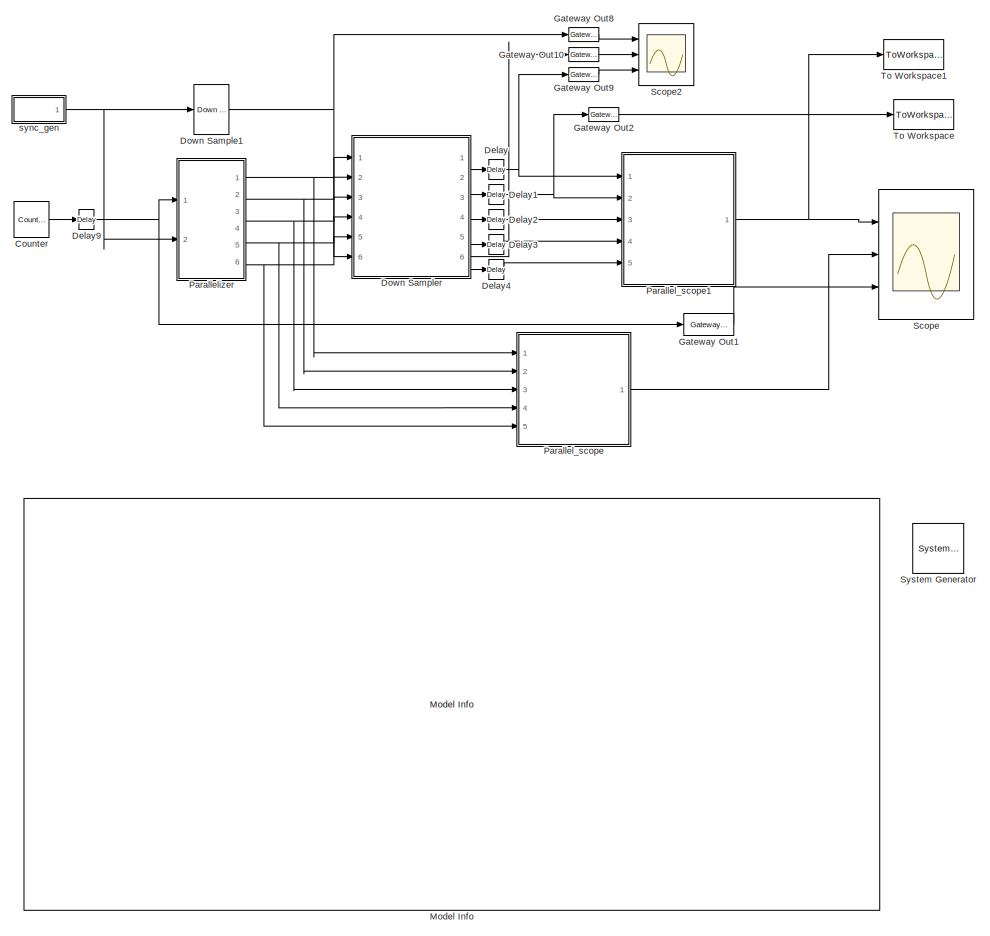
[diagram: root canvas - part 1/2, left side, full height]
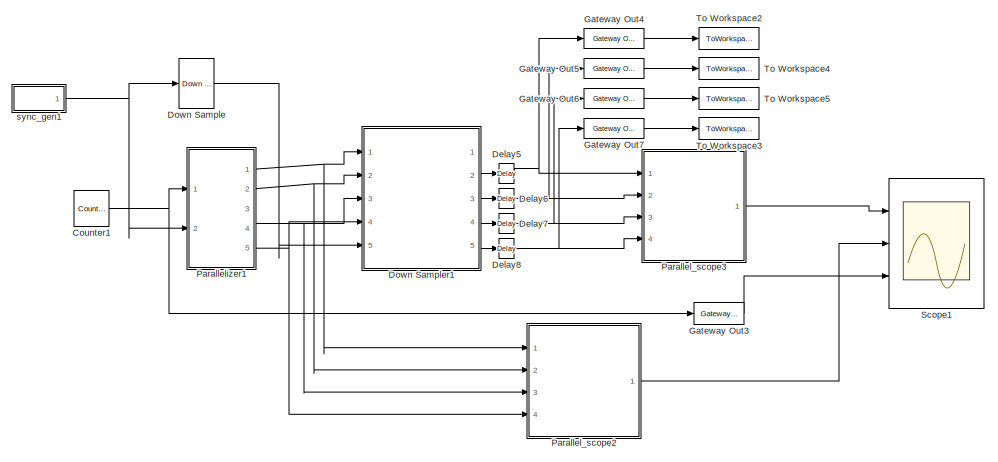
[diagram: root canvas - part 2/2, top right region]
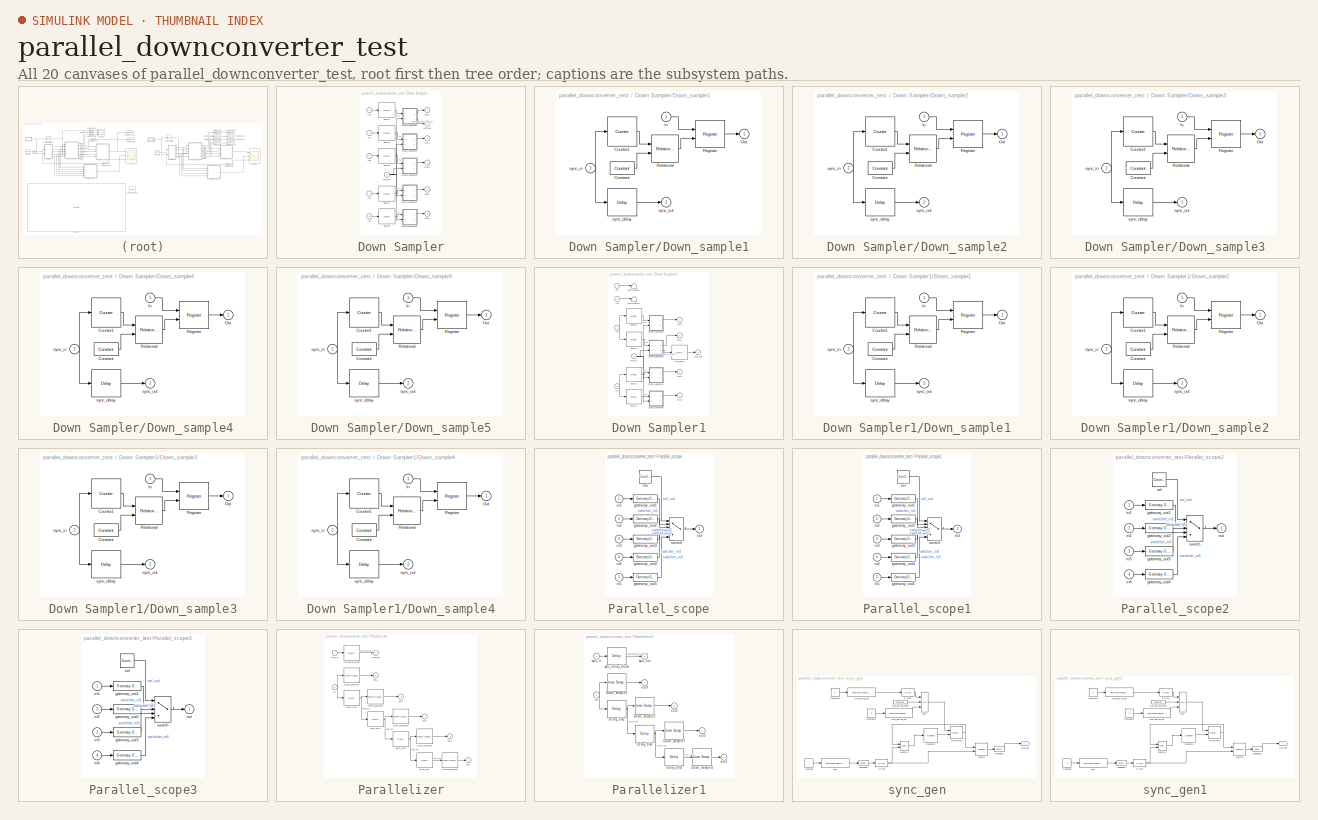
[diagram: thumbnail index - all 20 canvases of the model, root first then tree order]
MODEL parallel_downconverter_test
KIND model
BLOCK [Reference]  System Generator  REF=xbsIndex_r4/ System Generator
  AttributesFormatString = System\\nGenerator
  FunctionWithSeparateData = off
  GeneratePreprocessorConditionals = off
  Impl_file = ISE Defaults
  Ports = []
  RTWMemSecDataConstants = Inherit from model
  RTWMemSecDataInternal = Inherit from model
  RTWMemSecDataParameters = Inherit from model
  RTWMemSecFuncExecute = Inherit from model
  RTWMemSecFuncInitTerm = Inherit from model
  SID = 6
  ShowPortLabels = FromPortIcon
  SourceBlock = xbsIndex_r4/ System Generator
  SourceType = Xilinx System Generator Block
  Synth_file = XST Defaults
  SystemSampleTime = -1
  Tag = genX
  UserData = DataTag0
  UserDataPersistent = on
  block_type = sysgen
  block_version = 11.4
  clock_wrapper = Clock Enables
  core_generation = According to Block Masks
  dbl_ovrd = According to Block Masks
  dcm_input_clock_period = 10
  deprecated_control = off
  directory = ./netlist
  eval_field = 0
  has_advanced_control = 0
  incr_netlist = off
  infoedit = System Generator
  package = ff1156
  part = xc6vsx315t
  proj_type = Project Navigator
  run_coregen = off
  sg_icon_stat = 51,50,0,0,token,white,0,58c5b5770fe5f7c311f53dbc6e73f0f6,right,,[ ],[ ]
  sg_mask_display = fprintf('','COMMENT: begin icon graphics');\npatch([0 51 51 0 0 ],[0 0 50 50 0 ],[1 1 1 ]);\npatch([1.6375 16.81 27.31 37.81 48.31 27.31 12.1375 1.6375 ],[36.655 36.655 47.155 36.655 47.155 47.155 47.155 36.655 ],[0.933333 0.203922 0.141176 ]);\npatch([12.1375 27.31 16.81 1.6375 12.1375 ],[26.155 26.155 36.655 36.655 26.155 ],[0.698039 0.0313725 0.219608 ]);\npatch([1.6375 16.81 27.31 12.1375 1.63...<+335ch>
  sggui_pos = -1,-1,-1,-1
  simulink_period = 1
  speed = -3
  synthesis_tool = XST
  sysclk_period = 10
  testbench = off
  trim_vbits = Everywhere in SubSystem
  xilinxfamily = virtex6
BLOCK [Reference] Counter  REF=xbsIndex_r4/Counter
  Ports = [0, 1]
  SID = 1
  SourceBlock = xbsIndex_r4/Counter
  SourceType = Xilinx Counter Block
  arith_type = Unsigned
  bin_pt = 0
  block_type = counter
  block_version = 11.4
  cnt_by_val = 1
  cnt_to = Inf
  cnt_type = Free Running
  dbl_ovrd = off
  en = off
  explicit_period = on
  has_advanced_control = 0
  implementation = Fabric
  infoedit = Hardware notes: Free running counters are the least expensive in hardware.  A count limited counter is implemented by combining a counter with a comparator.
  load_pin = off
  n_bits = 8
  operation = Up
  period = 1
  rst = off
  sg_icon_stat = 35,36,0,1,white,blue,0,5673a822,right,,[ ],[ ]
  sg_mask_display = fprintf('','COMMENT: begin icon graphics');\npatch([0 35 35 0 0 ],[0 0 36 36 0 ],[0.77 0.82 0.91 ]);\nplot([0 35 35 0 0 ],[0 0 36 36 0 ]);\npatch([5.875 13.1 18.1 23.1 28.1 18.1 10.875 5.875 ],[23.55 23.55 28.55 23.55 28.55 28.55 28.55 23.55 ],[1 1 1 ]);\npatch([10.875 18.1 13.1 5.875 10.875 ],[18.55 18.55 23.55 23.55 18.55 ],[0.931 0.946 0.973 ]);\npatch([5.875 13.1 18.1 10.875 5.875 ],[13.55 13....<+349ch>
  sggui_pos = 58,-144,419,748
  start_count = 0
  use_behavioral_HDL = off
  xl_area = [0,0,0,0,0,0,0]
  xl_use_area = off
BLOCK [Reference] Counter1  REF=xbsIndex_r4/Counter
  Ports = [0, 1]
  SID = 1252
  SourceBlock = xbsIndex_r4/Counter
  SourceType = Xilinx Counter Block
  arith_type = Unsigned
  bin_pt = 0
  block_type = counter
  block_version = 11.4
  cnt_by_val = 1
  cnt_to = Inf
  cnt_type = Free Running
  dbl_ovrd = off
  en = off
  explicit_period = on
  has_advanced_control = 0
  implementation = Fabric
  infoedit = Hardware notes: Free running counters are the least expensive in hardware.  A count limited counter is implemented by combining a counter with a comparator.
  load_pin = off
  n_bits = 8
  operation = Up
  period = 1
  rst = off
  sg_icon_stat = 35,36,0,1,white,blue,0,5673a822,right,,[ ],[ ]
  sg_mask_display = fprintf('','COMMENT: begin icon graphics');\npatch([0 35 35 0 0 ],[0 0 36 36 0 ],[0.77 0.82 0.91 ]);\nplot([0 35 35 0 0 ],[0 0 36 36 0 ]);\npatch([5.875 13.1 18.1 23.1 28.1 18.1 10.875 5.875 ],[23.55 23.55 28.55 23.55 28.55 28.55 28.55 23.55 ],[1 1 1 ]);\npatch([10.875 18.1 13.1 5.875 10.875 ],[18.55 18.55 23.55 23.55 18.55 ],[0.931 0.946 0.973 ]);\npatch([5.875 13.1 18.1 10.875 5.875 ],[13.55 13....<+349ch>
  sggui_pos = 58,-144,419,748
  start_count = 0
  use_behavioral_HDL = off
  xl_area = [0,0,0,0,0,0,0]
  xl_use_area = off
BLOCK [Reference] Delay  REF=xbsIndex_r4/Delay
  Ports = [1, 1]
  SID = 1125
  SourceBlock = xbsIndex_r4/Delay
  SourceType = Xilinx Delay Block
  block_type = delay
  block_version = 11.4
  dbl_ovrd = off
  en = off
  has_advanced_control = 0
  infoedit = Hardware notes: A delay line is a chain, each link of which is an SRL16 followed by a flip-flop.
  infoeditControl = Selection of Reset will increase slice count due to use of real FFs and instead of SRLs
  latency = 7
  reg_retiming = off
  rst = off
  sg_icon_stat = 15,20,1,1,white,blue,0,0a686d19,right,,[ ],[ ]
  sg_mask_display = fprintf('','COMMENT: begin icon graphics');\npatch([0 15 15 0 0 ],[0 0 20 20 0 ],[0.77 0.82 0.91 ]);\nplot([0 15 15 0 0 ],[0 0 20 20 0 ]);\npatch([2.55 5.44 7.44 9.44 11.44 7.44 4.55 2.55 ],[12.22 12.22 14.22 12.22 14.22 14.22 14.22 12.22 ],[1 1 1 ]);\npatch([4.55 7.44 5.44 2.55 4.55 ],[10.22 10.22 12.22 12.22 10.22 ],[0.931 0.946 0.973 ]);\npatch([2.55 5.44 7.44 4.55 2.55 ],[8.22 8.22 10.22 10.22...<+405ch>  <repeated x10 — deduplicated; at blocks: Delay, Delay1, Delay2, Delay3, Delay4, Delay5, Delay6, Delay7, Delay8, Delay9>
  sggui_pos = -1,-1,-1,-1
  xl_area = [0,0,0,0,0,0,0]
  xl_use_area = off
BLOCK [Reference] Delay1  REF=xbsIndex_r4/Delay
  Ports = [1, 1]
  SID = 1126
  SourceBlock = xbsIndex_r4/Delay
  SourceType = Xilinx Delay Block
  block_type = delay
  block_version = 11.4
  dbl_ovrd = off
  en = off
  has_advanced_control = 0
  infoedit = Hardware notes: A delay line is a chain, each link of which is an SRL16 followed by a flip-flop.
  infoeditControl = Selection of Reset will increase slice count due to use of real FFs and instead of SRLs
  latency = 7
  reg_retiming = off
  rst = off
  sg_icon_stat = 15,20,1,1,white,blue,0,0a686d19,right,,[ ],[ ]
  sggui_pos = -1,-1,-1,-1
  xl_area = [0,0,0,0,0,0,0]
  xl_use_area = off
BLOCK [Reference] Delay2  REF=xbsIndex_r4/Delay
  Ports = [1, 1]
  SID = 1127
  SourceBlock = xbsIndex_r4/Delay
  SourceType = Xilinx Delay Block
  block_type = delay
  block_version = 11.4
  dbl_ovrd = off
  en = off
  has_advanced_control = 0
  infoedit = Hardware notes: A delay line is a chain, each link of which is an SRL16 followed by a flip-flop.
  infoeditControl = Selection of Reset will increase slice count due to use of real FFs and instead of SRLs
  latency = 7
  reg_retiming = off
  rst = off
  sg_icon_stat = 15,20,1,1,white,blue,0,0a686d19,right,,[ ],[ ]
  sggui_pos = -1,-1,-1,-1
  xl_area = [0,0,0,0,0,0,0]
  xl_use_area = off
BLOCK [Reference] Delay3  REF=xbsIndex_r4/Delay
  Ports = [1, 1]
  SID = 1128
  SourceBlock = xbsIndex_r4/Delay
  SourceType = Xilinx Delay Block
  block_type = delay
  block_version = 11.4
  dbl_ovrd = off
  en = off
  has_advanced_control = 0
  infoedit = Hardware notes: A delay line is a chain, each link of which is an SRL16 followed by a flip-flop.
  infoeditControl = Selection of Reset will increase slice count due to use of real FFs and instead of SRLs
  latency = 7
  reg_retiming = off
  rst = off
  sg_icon_stat = 15,20,1,1,white,blue,0,0a686d19,right,,[ ],[ ]
  sggui_pos = -1,-1,-1,-1
  xl_area = [0,0,0,0,0,0,0]
  xl_use_area = off
BLOCK [Reference] Delay4  REF=xbsIndex_r4/Delay
  Ports = [1, 1]
  SID = 1129
  SourceBlock = xbsIndex_r4/Delay
  SourceType = Xilinx Delay Block
  block_type = delay
  block_version = 11.4
  dbl_ovrd = off
  en = off
  has_advanced_control = 0
  infoedit = Hardware notes: A delay line is a chain, each link of which is an SRL16 followed by a flip-flop.
  infoeditControl = Selection of Reset will increase slice count due to use of real FFs and instead of SRLs
  latency = 7
  reg_retiming = off
  rst = off
  sg_icon_stat = 15,20,1,1,white,blue,0,0a686d19,right,,[ ],[ ]
  sggui_pos = -1,-1,-1,-1
  xl_area = [0,0,0,0,0,0,0]
  xl_use_area = off
BLOCK [Reference] Delay5  REF=xbsIndex_r4/Delay
  Ports = [1, 1]
  SID = 1253
  SourceBlock = xbsIndex_r4/Delay
  SourceType = Xilinx Delay Block
  block_type = delay
  block_version = 11.4
  dbl_ovrd = off
  en = off
  has_advanced_control = 0
  infoedit = Hardware notes: A delay line is a chain, each link of which is an SRL16 followed by a flip-flop.
  infoeditControl = Selection of Reset will increase slice count due to use of real FFs and instead of SRLs
  latency = 7
  reg_retiming = off
  rst = off
  sg_icon_stat = 15,20,1,1,white,blue,0,07bdd615,right,,[ ],[ ]
  sggui_pos = -1,-1,-1,-1
  xl_area = [0,0,0,0,0,0,0]
  xl_use_area = off
BLOCK [Reference] Delay6  REF=xbsIndex_r4/Delay
  Ports = [1, 1]
  SID = 1254
  SourceBlock = xbsIndex_r4/Delay
  SourceType = Xilinx Delay Block
  block_type = delay
  block_version = 11.4
  dbl_ovrd = off
  en = off
  has_advanced_control = 0
  infoedit = Hardware notes: A delay line is a chain, each link of which is an SRL16 followed by a flip-flop.
  infoeditControl = Selection of Reset will increase slice count due to use of real FFs and instead of SRLs
  latency = 7
  reg_retiming = off
  rst = off
  sg_icon_stat = 15,20,1,1,white,blue,0,07bdd615,right,,[ ],[ ]
  sggui_pos = -1,-1,-1,-1
  xl_area = [0,0,0,0,0,0,0]
  xl_use_area = off
BLOCK [Reference] Delay7  REF=xbsIndex_r4/Delay
  Ports = [1, 1]
  SID = 1255
  SourceBlock = xbsIndex_r4/Delay
  SourceType = Xilinx Delay Block
  block_type = delay
  block_version = 11.4
  dbl_ovrd = off
  en = off
  has_advanced_control = 0
  infoedit = Hardware notes: A delay line is a chain, each link of which is an SRL16 followed by a flip-flop.
  infoeditControl = Selection of Reset will increase slice count due to use of real FFs and instead of SRLs
  latency = 7
  reg_retiming = off
  rst = off
  sg_icon_stat = 15,20,1,1,white,blue,0,07bdd615,right,,[ ],[ ]
  sggui_pos = -1,-1,-1,-1
  xl_area = [0,0,0,0,0,0,0]
  xl_use_area = off
BLOCK [Reference] Delay8  REF=xbsIndex_r4/Delay
  Ports = [1, 1]
  SID = 1256
  SourceBlock = xbsIndex_r4/Delay
  SourceType = Xilinx Delay Block
  block_type = delay
  block_version = 11.4
  dbl_ovrd = off
  en = off
  has_advanced_control = 0
  infoedit = Hardware notes: A delay line is a chain, each link of which is an SRL16 followed by a flip-flop.
  infoeditControl = Selection of Reset will increase slice count due to use of real FFs and instead of SRLs
  latency = 7
  reg_retiming = off
  rst = off
  sg_icon_stat = 15,20,1,1,white,blue,0,07bdd615,right,,[ ],[ ]
  sggui_pos = -1,-1,-1,-1
  xl_area = [0,0,0,0,0,0,0]
  xl_use_area = off
BLOCK [Reference] Delay9  REF=xbsIndex_r4/Delay
  Ports = [1, 1]
  SID = 1794
  SourceBlock = xbsIndex_r4/Delay
  SourceType = Xilinx Delay Block
  block_type = delay
  block_version = 11.4
  dbl_ovrd = off
  en = off
  has_advanced_control = 0
  infoedit = Hardware notes: A delay line is a chain, each link of which is an SRL16 followed by a flip-flop.
  infoeditControl = Selection of Reset will increase slice count due to use of real FFs and instead of SRLs
  latency = 100
  reg_retiming = off
  rst = off
  sg_icon_stat = 15,20,1,1,white,blue,0,1f31137e,right,,[ ],[ ]
  sggui_pos = -1,-1,-1,-1
  xl_area = [0,0,0,0,0,0,0]
  xl_use_area = off
BLOCK [Reference] Down Sample  REF=xbsIndex_r4/Down Sample
  Ports = [1, 1]
  SID = 1798
  SourceBlock = xbsIndex_r4/Down Sample
  SourceType = Xilinx Down Sampler Block
  block_type = dsamp
  dbl_ovrd = off
  en = off
  has_advanced_control = 0
  infoedit = Hardware notes: Sample and Latency controls determine the hardware implementation.  The cost in hardware of different implementations varies considerably; press Help for details.
  latency = 1
  sample_phase = Last Value of Frame  (most efficient)
  sample_ratio = 4
  sg_icon_stat = 35,50,1,1,white,blue,0,a38db71b,right,,[ ],[ ]
  sg_mask_display = fprintf('','COMMENT: begin icon graphics');\npatch([0 35 35 0 0 ],[0 0 50 50 0 ],[0.77 0.82 0.91 ]);\nplot([0 35 35 0 0 ],[0 0 50 50 0 ]);\npatch([5.875 13.1 18.1 23.1 28.1 18.1 10.875 5.875 ],[30.55 30.55 35.55 30.55 35.55 35.55 35.55 30.55 ],[1 1 1 ]);\npatch([10.875 18.1 13.1 5.875 10.875 ],[25.55 25.55 30.55 30.55 25.55 ],[0.931 0.946 0.973 ]);\npatch([5.875 13.1 18.1 10.875 5.875 ],[20.55 20....<+431ch>
  sggui_pos = -1,-1,-1,-1
  xl_area = [0,0,0,0,0,0,0]
  xl_use_area = off
BLOCK [Reference] Down Sample1  REF=xbsIndex_r4/Down Sample
  Ports = [1, 1]
  SID = 1799
  SourceBlock = xbsIndex_r4/Down Sample
  SourceType = Xilinx Down Sampler Block
  block_type = dsamp
  dbl_ovrd = off
  en = off
  has_advanced_control = 0
  infoedit = Hardware notes: Sample and Latency controls determine the hardware implementation.  The cost in hardware of different implementations varies considerably; press Help for details.
  latency = 1
  sample_phase = Last Value of Frame  (most efficient)
  sample_ratio = 5
  sg_icon_stat = 35,50,1,1,white,blue,0,d8268842,right,,[ ],[ ]
  sg_mask_display = fprintf('','COMMENT: begin icon graphics');\npatch([0 35 35 0 0 ],[0 0 50 50 0 ],[0.77 0.82 0.91 ]);\nplot([0 35 35 0 0 ],[0 0 50 50 0 ]);\npatch([5.875 13.1 18.1 23.1 28.1 18.1 10.875 5.875 ],[30.55 30.55 35.55 30.55 35.55 35.55 35.55 30.55 ],[1 1 1 ]);\npatch([10.875 18.1 13.1 5.875 10.875 ],[25.55 25.55 30.55 30.55 25.55 ],[0.931 0.946 0.973 ]);\npatch([5.875 13.1 18.1 10.875 5.875 ],[20.55 20....<+431ch>
  sggui_pos = -1,-1,-1,-1
  xl_area = [0,0,0,0,0,0,0]
  xl_use_area = off
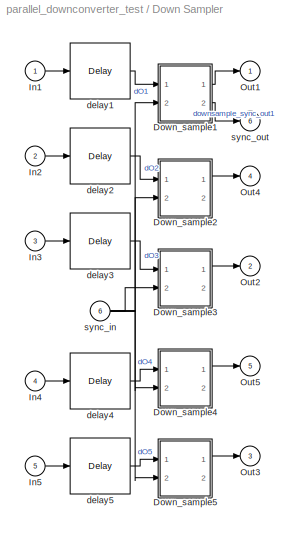
BLOCK [SubSystem] Down Sampler
  AttributesFormatString = Decimation Rate = 7
  FunctionWithSeparateData = off
  MaskCallbackString = |||
  MaskDescription = Parallely downconvert.
  MaskEnableString = on,on,on,on
  MaskHideContents = off
  MaskIconFrame = on
  MaskIconOpaque = on
  MaskIconRotate = none
  MaskIconUnits = autoscale
  MaskInitialization = config.source=str2func('parallel_downsampler_init_xblock');\nconfig.depend=get_dependlist('parallel_downsampler');\nconfig.toplevel=gcb;\nset_param(gcb,'LinkStatus','inactive');\nxBlock(config, {config.toplevel,...\n    'n_inputs', n_inputs, ...\n    'dec_rate', dec_rate, ...\n    'xilinx', xilinx, ...\n    'input_clk_rate', input_clk_rate});
  MaskPortRotate = default
  MaskPromptString = number of inputs|Decimation rate|Use Xilinx version of Down Sample?|Input Clock Rate
  MaskStyleString = edit,edit,checkbox,edit
  MaskToolTipString = on,on,on,on
  MaskTunableValueString = on,on,on,on
  MaskType = Parallel Downconverter (xBlock)
  MaskValueString = 5|7|off|5
  MaskVariables = n_inputs=@1;dec_rate=@2;xilinx=@3;input_clk_rate=@4;
  MaskVisibilityString = on,on,on,on
  MinAlgLoopOccurrences = off
  Opaque = off
  Ports = [6, 6]
  PropExecContextOutsideSubsystem = off
  RTWSystemCode = Auto
  RequestExecContextInheritance = off
  SID = 46
  UserData = DataTag1
  UserDataPersistent = on
BLOCK [SubSystem] Down Sampler/Down_sample1
  FunctionWithSeparateData = off
  MaskHideContents = off
  MinAlgLoopOccurrences = off
  Opaque = off
  Ports = [2, 2]
  PropExecContextOutsideSubsystem = off
  RTWSystemCode = Auto
  RequestExecContextInheritance = off
  SID = 2120
BLOCK [Reference] Down Sampler/Down_sample1/Constant  REF=xbsIndex_r4/Constant
  Ports = [0, 1]
  SID = 2125
  SourceBlock = xbsIndex_r4/Constant
  SourceType = Xilinx Constant Block Block
  arith_type = Signed (2's comp)
  bin_pt = 14
  block_type = constant
  carry = CIN
  const = 0
  dbl_ovrd = off
  dsp48_infoedit = The use of this block for DSP48 instructions is deprecated.  Please use the Opmode block.
  equ = P=C
  exp_width = 8
  explicit_period = off
  frac_width = 24
  gui_display_data_type = Fixed-point
  has_advanced_control = 0
  inp1 = P
  inp2 = PCIN>>17
  n_bits = 16
  opr = +
  opselect = C
  period = 1
  preci_type = Single
  sg_icon_stat = 50,26,0,1,white,blue,0,1e24c1db,right,,[ ],[ ]
  sg_mask_display = fprintf('','COMMENT: begin icon graphics');\npatch([0 50 50 0 0 ],[0 0 26 26 0 ],[0.77 0.82 0.91 ]);\nplot([0 50 50 0 0 ],[0 0 26 26 0 ]);\npatch([18.325 22.66 25.66 28.66 31.66 25.66 21.325 18.325 ],[16.33 16.33 19.33 16.33 19.33 19.33 19.33 16.33 ],[1 1 1 ]);\npatch([21.325 25.66 22.66 18.325 21.325 ],[13.33 13.33 16.33 16.33 13.33 ],[0.931 0.946 0.973 ]);\npatch([18.325 22.66 25.66 21.325 18.32...<+370ch>  <repeated x9 — deduplicated; at blocks: Constant>
  sggui_pos = -1,-1,-1,-1
BLOCK [Reference] Down Sampler/Down_sample1/Counter1  REF=xbsIndex_r4/Counter
  Ports = [1, 1]
  SID = 2126
  SourceBlock = xbsIndex_r4/Counter
  SourceType = Xilinx Counter Block
  arith_type = Unsigned
  bin_pt = 0
  block_type = counter
  cnt_by_val = 1
  cnt_to = 0
  cnt_type = Count Limited
  dbl_ovrd = off
  en = off
  explicit_period = on
  has_advanced_control = 0
  implementation = Fabric
  infoedit = Hardware notes: Free running counters are the least expensive in hardware.  A count limited counter is implemented by combining a counter with a comparator.
  load_pin = off
  n_bits = 3
  operation = Down
  period = 5
  rst = on
  sg_icon_stat = 60,60,1,1,white,blue,0,0a686d19,right,,[ ],[ ]
  sg_mask_display = fprintf('','COMMENT: begin icon graphics');\npatch([0 60 60 0 0 ],[0 0 60 60 0 ],[0.77 0.82 0.91 ]);\nplot([0 60 60 0 0 ],[0 0 60 60 0 ]);\npatch([12.2 23.76 31.76 39.76 47.76 31.76 20.2 12.2 ],[38.88 38.88 46.88 38.88 46.88 46.88 46.88 38.88 ],[1 1 1 ]);\npatch([20.2 31.76 23.76 12.2 20.2 ],[30.88 30.88 38.88 38.88 30.88 ],[0.931 0.946 0.973 ]);\npatch([12.2 23.76 31.76 20.2 12.2 ],[22.88 22.88 3...<+426ch>  <repeated x9 — deduplicated; at blocks: Counter1>
  sggui_pos = -1,-1,-1,-1
  start_count = 6
  use_behavioral_HDL = off
  xl_area = [0,0,0,0,0,0,0]
  xl_use_area = off
BLOCK [Inport] Down Sampler/Down_sample1/In
  IconDisplay = Port number
  SID = 2121
BLOCK [Outport] Down Sampler/Down_sample1/Out
  IconDisplay = Port number
  SID = 2123
BLOCK [Reference] Down Sampler/Down_sample1/Register  REF=xbsIndex_r4/Register
  Ports = [2, 1]
  SID = 2127
  SourceBlock = xbsIndex_r4/Register
  SourceType = Xilinx Register Block
  block_type = register
  dbl_ovrd = off
  en = on
  has_advanced_control = 0
  init = 0
  rst = off
  sg_icon_stat = 60,56,2,1,white,blue,0,92df5fa7,right,,[ ],[ ]
  sg_mask_display = fprintf('','COMMENT: begin icon graphics');\npatch([0 60 60 0 0 ],[0 0 56 56 0 ],[0.77 0.82 0.91 ]);\nplot([0 60 60 0 0 ],[0 0 56 56 0 ]);\npatch([12.2 23.76 31.76 39.76 47.76 31.76 20.2 12.2 ],[36.88 36.88 44.88 36.88 44.88 44.88 44.88 36.88 ],[1 1 1 ]);\npatch([20.2 31.76 23.76 12.2 20.2 ],[28.88 28.88 36.88 36.88 28.88 ],[0.931 0.946 0.973 ]);\npatch([12.2 23.76 31.76 20.2 12.2 ],[20.88 20.88 2...<+504ch>  <repeated x9 — deduplicated; at blocks: Register>
  sggui_pos = -1,-1,-1,-1
  xl_area = [0,0,0,0,0,0,0]
  xl_use_area = off
BLOCK [Reference] Down Sampler/Down_sample1/Relational  REF=xbsIndex_r4/Relational
  Ports = [2, 1]
  SID = 2128
  SourceBlock = xbsIndex_r4/Relational
  SourceType = Xilinx Arithmetic Relational Operator Block
  block_type = relational
  dbl_ovrd = off
  en = off
  has_advanced_control = 0
  latency = 1
  mode = a=b
  sg_icon_stat = 55,56,2,1,white,blue,0,01c268aa,right,,[ ],[ ]
  sg_mask_display = fprintf('','COMMENT: begin icon graphics');\npatch([0 55 55 0 0 ],[0 0 56 56 0 ],[0.77 0.82 0.91 ]);\nplot([0 55 55 0 0 ],[0 0 56 56 0 ]);\npatch([11.425 21.54 28.54 35.54 42.54 28.54 18.425 11.425 ],[35.77 35.77 42.77 35.77 42.77 42.77 42.77 35.77 ],[1 1 1 ]);\npatch([18.425 28.54 21.54 11.425 18.425 ],[28.77 28.77 35.77 35.77 28.77 ],[0.931 0.946 0.973 ]);\npatch([11.425 21.54 28.54 18.425 11.42...<+530ch>  <repeated x9 — deduplicated; at blocks: Relational>
  sggui_pos = -1,-1,-1,-1
  xl_area = [0,0,0,0,0,0,0]
  xl_use_area = off
BLOCK [Reference] Down Sampler/Down_sample1/sync_delay  REF=xbsIndex_r4/Delay
  Ports = [1, 1]
  SID = 2129
  SourceBlock = xbsIndex_r4/Delay
  SourceType = Xilinx Delay Block
  block_type = delay
  dbl_ovrd = off
  en = off
  has_advanced_control = 0
  infoedit = Hardware notes: A delay line is a chain, each link of which is an SRL16 followed by a flip-flop.
  infoeditControl = Selection of Reset will increase slice count due to use of real FFs and instead of SRLs
  latency = 1
  reg_retiming = off
  rst = off
  sg_icon_stat = 60,56,1,1,white,blue,0,0a686d19,right,,[ ],[ ]
  sg_mask_display = fprintf('','COMMENT: begin icon graphics');\npatch([0 60 60 0 0 ],[0 0 56 56 0 ],[0.77 0.82 0.91 ]);\nplot([0 60 60 0 0 ],[0 0 56 56 0 ]);\npatch([12.2 23.76 31.76 39.76 47.76 31.76 20.2 12.2 ],[36.88 36.88 44.88 36.88 44.88 44.88 44.88 36.88 ],[1 1 1 ]);\npatch([20.2 31.76 23.76 12.2 20.2 ],[28.88 28.88 36.88 36.88 28.88 ],[0.931 0.946 0.973 ]);\npatch([12.2 23.76 31.76 20.2 12.2 ],[20.88 20.88 2...<+426ch>  <repeated x37 — deduplicated; at blocks: sync_delay, delay1, delay2, delay3, delay4, delay5, Down_sample1, Down_sample2, Down_sample3, Down_sample4, Down_sample5, delay_blk1, delay_blk2, delay_blk3, delay_blk4, sync_delay_block>
  sggui_pos = -1,-1,-1,-1
  xl_area = [0,0,0,0,0,0,0]
  xl_use_area = off
BLOCK [Inport] Down Sampler/Down_sample1/sync_in
  IconDisplay = Port number
  Port = 2
  SID = 2122
BLOCK [Outport] Down Sampler/Down_sample1/sync_out
  IconDisplay = Port number
  Port = 2
  SID = 2124
BLOCK [SubSystem] Down Sampler/Down_sample2
  FunctionWithSeparateData = off
  MaskHideContents = off
  MinAlgLoopOccurrences = off
  Opaque = off
  Ports = [2, 2]
  PropExecContextOutsideSubsystem = off
  RTWSystemCode = Auto
  RequestExecContextInheritance = off
  SID = 2131
BLOCK [Reference] Down Sampler/Down_sample2/Constant  REF=xbsIndex_r4/Constant
  Ports = [0, 1]
  SID = 2136
  SourceBlock = xbsIndex_r4/Constant
  SourceType = Xilinx Constant Block Block
  arith_type = Signed (2's comp)
  bin_pt = 14
  block_type = constant
  carry = CIN
  const = 0
  dbl_ovrd = off
  dsp48_infoedit = The use of this block for DSP48 instructions is deprecated.  Please use the Opmode block.
  equ = P=C
  exp_width = 8
  explicit_period = off
  frac_width = 24
  gui_display_data_type = Fixed-point
  has_advanced_control = 0
  inp1 = P
  inp2 = PCIN>>17
  n_bits = 16
  opr = +
  opselect = C
  period = 1
  preci_type = Single
  sg_icon_stat = 50,26,0,1,white,blue,0,1e24c1db,right,,[ ],[ ]
  sggui_pos = -1,-1,-1,-1
BLOCK [Reference] Down Sampler/Down_sample2/Counter1  REF=xbsIndex_r4/Counter
  Ports = [1, 1]
  SID = 2137
  SourceBlock = xbsIndex_r4/Counter
  SourceType = Xilinx Counter Block
  arith_type = Unsigned
  bin_pt = 0
  block_type = counter
  cnt_by_val = 1
  cnt_to = 0
  cnt_type = Count Limited
  dbl_ovrd = off
  en = off
  explicit_period = on
  has_advanced_control = 0
  implementation = Fabric
  infoedit = Hardware notes: Free running counters are the least expensive in hardware.  A count limited counter is implemented by combining a counter with a comparator.
  load_pin = off
  n_bits = 3
  operation = Down
  period = 5
  rst = on
  sg_icon_stat = 60,60,1,1,white,blue,0,0a686d19,right,,[ ],[ ]
  sggui_pos = -1,-1,-1,-1
  start_count = 6
  use_behavioral_HDL = off
  xl_area = [0,0,0,0,0,0,0]
  xl_use_area = off
BLOCK [Inport] Down Sampler/Down_sample2/In
  IconDisplay = Port number
  SID = 2132
BLOCK [Outport] Down Sampler/Down_sample2/Out
  IconDisplay = Port number
  SID = 2134
BLOCK [Reference] Down Sampler/Down_sample2/Register  REF=xbsIndex_r4/Register
  Ports = [2, 1]
  SID = 2138
  SourceBlock = xbsIndex_r4/Register
  SourceType = Xilinx Register Block
  block_type = register
  dbl_ovrd = off
  en = on
  has_advanced_control = 0
  init = 0
  rst = off
  sg_icon_stat = 60,56,2,1,white,blue,0,92df5fa7,right,,[ ],[ ]
  sggui_pos = -1,-1,-1,-1
  xl_area = [0,0,0,0,0,0,0]
  xl_use_area = off
BLOCK [Reference] Down Sampler/Down_sample2/Relational  REF=xbsIndex_r4/Relational
  Ports = [2, 1]
  SID = 2139
  SourceBlock = xbsIndex_r4/Relational
  SourceType = Xilinx Arithmetic Relational Operator Block
  block_type = relational
  dbl_ovrd = off
  en = off
  has_advanced_control = 0
  latency = 1
  mode = a=b
  sg_icon_stat = 55,56,2,1,white,blue,0,01c268aa,right,,[ ],[ ]
  sggui_pos = -1,-1,-1,-1
  xl_area = [0,0,0,0,0,0,0]
  xl_use_area = off
BLOCK [Reference] Down Sampler/Down_sample2/sync_delay  REF=xbsIndex_r4/Delay
  Ports = [1, 1]
  SID = 2140
  SourceBlock = xbsIndex_r4/Delay
  SourceType = Xilinx Delay Block
  block_type = delay
  dbl_ovrd = off
  en = off
  has_advanced_control = 0
  infoedit = Hardware notes: A delay line is a chain, each link of which is an SRL16 followed by a flip-flop.
  infoeditControl = Selection of Reset will increase slice count due to use of real FFs and instead of SRLs
  latency = 1
  reg_retiming = off
  rst = off
  sg_icon_stat = 60,56,1,1,white,blue,0,0a686d19,right,,[ ],[ ]
  sggui_pos = -1,-1,-1,-1
  xl_area = [0,0,0,0,0,0,0]
  xl_use_area = off
BLOCK [Inport] Down Sampler/Down_sample2/sync_in
  IconDisplay = Port number
  Port = 2
  SID = 2133
BLOCK [Outport] Down Sampler/Down_sample2/sync_out
  IconDisplay = Port number
  Port = 2
  SID = 2135
BLOCK [SubSystem] Down Sampler/Down_sample3
  FunctionWithSeparateData = off
  MaskHideContents = off
  MinAlgLoopOccurrences = off
  Opaque = off
  Ports = [2, 2]
  PropExecContextOutsideSubsystem = off
  RTWSystemCode = Auto
  RequestExecContextInheritance = off
  SID = 2142
BLOCK [Reference] Down Sampler/Down_sample3/Constant  REF=xbsIndex_r4/Constant
  Ports = [0, 1]
  SID = 2147
  SourceBlock = xbsIndex_r4/Constant
  SourceType = Xilinx Constant Block Block
  arith_type = Signed (2's comp)
  bin_pt = 14
  block_type = constant
  carry = CIN
  const = 0
  dbl_ovrd = off
  dsp48_infoedit = The use of this block for DSP48 instructions is deprecated.  Please use the Opmode block.
  equ = P=C
  exp_width = 8
  explicit_period = off
  frac_width = 24
  gui_display_data_type = Fixed-point
  has_advanced_control = 0
  inp1 = P
  inp2 = PCIN>>17
  n_bits = 16
  opr = +
  opselect = C
  period = 1
  preci_type = Single
  sg_icon_stat = 50,26,0,1,white,blue,0,1e24c1db,right,,[ ],[ ]
  sggui_pos = -1,-1,-1,-1
BLOCK [Reference] Down Sampler/Down_sample3/Counter1  REF=xbsIndex_r4/Counter
  Ports = [1, 1]
  SID = 2148
  SourceBlock = xbsIndex_r4/Counter
  SourceType = Xilinx Counter Block
  arith_type = Unsigned
  bin_pt = 0
  block_type = counter
  cnt_by_val = 1
  cnt_to = 0
  cnt_type = Count Limited
  dbl_ovrd = off
  en = off
  explicit_period = on
  has_advanced_control = 0
  implementation = Fabric
  infoedit = Hardware notes: Free running counters are the least expensive in hardware.  A count limited counter is implemented by combining a counter with a comparator.
  load_pin = off
  n_bits = 3
  operation = Down
  period = 5
  rst = on
  sg_icon_stat = 60,60,1,1,white,blue,0,0a686d19,right,,[ ],[ ]
  sggui_pos = -1,-1,-1,-1
  start_count = 6
  use_behavioral_HDL = off
  xl_area = [0,0,0,0,0,0,0]
  xl_use_area = off
BLOCK [Inport] Down Sampler/Down_sample3/In
  IconDisplay = Port number
  SID = 2143
BLOCK [Outport] Down Sampler/Down_sample3/Out
  IconDisplay = Port number
  SID = 2145
BLOCK [Reference] Down Sampler/Down_sample3/Register  REF=xbsIndex_r4/Register
  Ports = [2, 1]
  SID = 2149
  SourceBlock = xbsIndex_r4/Register
  SourceType = Xilinx Register Block
  block_type = register
  dbl_ovrd = off
  en = on
  has_advanced_control = 0
  init = 0
  rst = off
  sg_icon_stat = 60,56,2,1,white,blue,0,92df5fa7,right,,[ ],[ ]
  sggui_pos = -1,-1,-1,-1
  xl_area = [0,0,0,0,0,0,0]
  xl_use_area = off
BLOCK [Reference] Down Sampler/Down_sample3/Relational  REF=xbsIndex_r4/Relational
  Ports = [2, 1]
  SID = 2150
  SourceBlock = xbsIndex_r4/Relational
  SourceType = Xilinx Arithmetic Relational Operator Block
  block_type = relational
  dbl_ovrd = off
  en = off
  has_advanced_control = 0
  latency = 1
  mode = a=b
  sg_icon_stat = 55,56,2,1,white,blue,0,01c268aa,right,,[ ],[ ]
  sggui_pos = -1,-1,-1,-1
  xl_area = [0,0,0,0,0,0,0]
  xl_use_area = off
BLOCK [Reference] Down Sampler/Down_sample3/sync_delay  REF=xbsIndex_r4/Delay
  Ports = [1, 1]
  SID = 2151
  SourceBlock = xbsIndex_r4/Delay
  SourceType = Xilinx Delay Block
  block_type = delay
  dbl_ovrd = off
  en = off
  has_advanced_control = 0
  infoedit = Hardware notes: A delay line is a chain, each link of which is an SRL16 followed by a flip-flop.
  infoeditControl = Selection of Reset will increase slice count due to use of real FFs and instead of SRLs
  latency = 1
  reg_retiming = off
  rst = off
  sg_icon_stat = 60,56,1,1,white,blue,0,0a686d19,right,,[ ],[ ]
  sggui_pos = -1,-1,-1,-1
  xl_area = [0,0,0,0,0,0,0]
  xl_use_area = off
BLOCK [Inport] Down Sampler/Down_sample3/sync_in
  IconDisplay = Port number
  Port = 2
  SID = 2144
BLOCK [Outport] Down Sampler/Down_sample3/sync_out
  IconDisplay = Port number
  Port = 2
  SID = 2146
BLOCK [SubSystem] Down Sampler/Down_sample4
  FunctionWithSeparateData = off
  MaskHideContents = off
  MinAlgLoopOccurrences = off
  Opaque = off
  Ports = [2, 2]
  PropExecContextOutsideSubsystem = off
  RTWSystemCode = Auto
  RequestExecContextInheritance = off
  SID = 2153
BLOCK [Reference] Down Sampler/Down_sample4/Constant  REF=xbsIndex_r4/Constant
  Ports = [0, 1]
  SID = 2158
  SourceBlock = xbsIndex_r4/Constant
  SourceType = Xilinx Constant Block Block
  arith_type = Signed (2's comp)
  bin_pt = 14
  block_type = constant
  carry = CIN
  const = 0
  dbl_ovrd = off
  dsp48_infoedit = The use of this block for DSP48 instructions is deprecated.  Please use the Opmode block.
  equ = P=C
  exp_width = 8
  explicit_period = off
  frac_width = 24
  gui_display_data_type = Fixed-point
  has_advanced_control = 0
  inp1 = P
  inp2 = PCIN>>17
  n_bits = 16
  opr = +
  opselect = C
  period = 1
  preci_type = Single
  sg_icon_stat = 50,26,0,1,white,blue,0,1e24c1db,right,,[ ],[ ]
  sggui_pos = -1,-1,-1,-1
BLOCK [Reference] Down Sampler/Down_sample4/Counter1  REF=xbsIndex_r4/Counter
  Ports = [1, 1]
  SID = 2159
  SourceBlock = xbsIndex_r4/Counter
  SourceType = Xilinx Counter Block
  arith_type = Unsigned
  bin_pt = 0
  block_type = counter
  cnt_by_val = 1
  cnt_to = 0
  cnt_type = Count Limited
  dbl_ovrd = off
  en = off
  explicit_period = on
  has_advanced_control = 0
  implementation = Fabric
  infoedit = Hardware notes: Free running counters are the least expensive in hardware.  A count limited counter is implemented by combining a counter with a comparator.
  load_pin = off
  n_bits = 3
  operation = Down
  period = 5
  rst = on
  sg_icon_stat = 60,60,1,1,white,blue,0,0a686d19,right,,[ ],[ ]
  sggui_pos = -1,-1,-1,-1
  start_count = 6
  use_behavioral_HDL = off
  xl_area = [0,0,0,0,0,0,0]
  xl_use_area = off
BLOCK [Inport] Down Sampler/Down_sample4/In
  IconDisplay = Port number
  SID = 2154
BLOCK [Outport] Down Sampler/Down_sample4/Out
  IconDisplay = Port number
  SID = 2156
BLOCK [Reference] Down Sampler/Down_sample4/Register  REF=xbsIndex_r4/Register
  Ports = [2, 1]
  SID = 2160
  SourceBlock = xbsIndex_r4/Register
  SourceType = Xilinx Register Block
  block_type = register
  dbl_ovrd = off
  en = on
  has_advanced_control = 0
  init = 0
  rst = off
  sg_icon_stat = 60,56,2,1,white,blue,0,92df5fa7,right,,[ ],[ ]
  sggui_pos = -1,-1,-1,-1
  xl_area = [0,0,0,0,0,0,0]
  xl_use_area = off
BLOCK [Reference] Down Sampler/Down_sample4/Relational  REF=xbsIndex_r4/Relational
  Ports = [2, 1]
  SID = 2161
  SourceBlock = xbsIndex_r4/Relational
  SourceType = Xilinx Arithmetic Relational Operator Block
  block_type = relational
  dbl_ovrd = off
  en = off
  has_advanced_control = 0
  latency = 1
  mode = a=b
  sg_icon_stat = 55,56,2,1,white,blue,0,01c268aa,right,,[ ],[ ]
  sggui_pos = -1,-1,-1,-1
  xl_area = [0,0,0,0,0,0,0]
  xl_use_area = off
BLOCK [Reference] Down Sampler/Down_sample4/sync_delay  REF=xbsIndex_r4/Delay
  Ports = [1, 1]
  SID = 2162
  SourceBlock = xbsIndex_r4/Delay
  SourceType = Xilinx Delay Block
  block_type = delay
  dbl_ovrd = off
  en = off
  has_advanced_control = 0
  infoedit = Hardware notes: A delay line is a chain, each link of which is an SRL16 followed by a flip-flop.
  infoeditControl = Selection of Reset will increase slice count due to use of real FFs and instead of SRLs
  latency = 1
  reg_retiming = off
  rst = off
  sg_icon_stat = 60,56,1,1,white,blue,0,0a686d19,right,,[ ],[ ]
  sggui_pos = -1,-1,-1,-1
  xl_area = [0,0,0,0,0,0,0]
  xl_use_area = off
BLOCK [Inport] Down Sampler/Down_sample4/sync_in
  IconDisplay = Port number
  Port = 2
  SID = 2155
BLOCK [Outport] Down Sampler/Down_sample4/sync_out
  IconDisplay = Port number
  Port = 2
  SID = 2157
BLOCK [SubSystem] Down Sampler/Down_sample5
  FunctionWithSeparateData = off
  MaskHideContents = off
  MinAlgLoopOccurrences = off
  Opaque = off
  Ports = [2, 2]
  PropExecContextOutsideSubsystem = off
  RTWSystemCode = Auto
  RequestExecContextInheritance = off
  SID = 2164
BLOCK [Reference] Down Sampler/Down_sample5/Constant  REF=xbsIndex_r4/Constant
  Ports = [0, 1]
  SID = 2169
  SourceBlock = xbsIndex_r4/Constant
  SourceType = Xilinx Constant Block Block
  arith_type = Signed (2's comp)
  bin_pt = 14
  block_type = constant
  carry = CIN
  const = 0
  dbl_ovrd = off
  dsp48_infoedit = The use of this block for DSP48 instructions is deprecated.  Please use the Opmode block.
  equ = P=C
  exp_width = 8
  explicit_period = off
  frac_width = 24
  gui_display_data_type = Fixed-point
  has_advanced_control = 0
  inp1 = P
  inp2 = PCIN>>17
  n_bits = 16
  opr = +
  opselect = C
  period = 1
  preci_type = Single
  sg_icon_stat = 50,26,0,1,white,blue,0,1e24c1db,right,,[ ],[ ]
  sggui_pos = -1,-1,-1,-1
BLOCK [Reference] Down Sampler/Down_sample5/Counter1  REF=xbsIndex_r4/Counter
  Ports = [1, 1]
  SID = 2170
  SourceBlock = xbsIndex_r4/Counter
  SourceType = Xilinx Counter Block
  arith_type = Unsigned
  bin_pt = 0
  block_type = counter
  cnt_by_val = 1
  cnt_to = 0
  cnt_type = Count Limited
  dbl_ovrd = off
  en = off
  explicit_period = on
  has_advanced_control = 0
  implementation = Fabric
  infoedit = Hardware notes: Free running counters are the least expensive in hardware.  A count limited counter is implemented by combining a counter with a comparator.
  load_pin = off
  n_bits = 3
  operation = Down
  period = 5
  rst = on
  sg_icon_stat = 60,60,1,1,white,blue,0,0a686d19,right,,[ ],[ ]
  sggui_pos = -1,-1,-1,-1
  start_count = 6
  use_behavioral_HDL = off
  xl_area = [0,0,0,0,0,0,0]
  xl_use_area = off
BLOCK [Inport] Down Sampler/Down_sample5/In
  IconDisplay = Port number
  SID = 2165
BLOCK [Outport] Down Sampler/Down_sample5/Out
  IconDisplay = Port number
  SID = 2167
BLOCK [Reference] Down Sampler/Down_sample5/Register  REF=xbsIndex_r4/Register
  Ports = [2, 1]
  SID = 2171
  SourceBlock = xbsIndex_r4/Register
  SourceType = Xilinx Register Block
  block_type = register
  dbl_ovrd = off
  en = on
  has_advanced_control = 0
  init = 0
  rst = off
  sg_icon_stat = 60,56,2,1,white,blue,0,92df5fa7,right,,[ ],[ ]
  sggui_pos = -1,-1,-1,-1
  xl_area = [0,0,0,0,0,0,0]
  xl_use_area = off
BLOCK [Reference] Down Sampler/Down_sample5/Relational  REF=xbsIndex_r4/Relational
  Ports = [2, 1]
  SID = 2172
  SourceBlock = xbsIndex_r4/Relational
  SourceType = Xilinx Arithmetic Relational Operator Block
  block_type = relational
  dbl_ovrd = off
  en = off
  has_advanced_control = 0
  latency = 1
  mode = a=b
  sg_icon_stat = 55,56,2,1,white,blue,0,01c268aa,right,,[ ],[ ]
  sggui_pos = -1,-1,-1,-1
  xl_area = [0,0,0,0,0,0,0]
  xl_use_area = off
BLOCK [Reference] Down Sampler/Down_sample5/sync_delay  REF=xbsIndex_r4/Delay
  Ports = [1, 1]
  SID = 2173
  SourceBlock = xbsIndex_r4/Delay
  SourceType = Xilinx Delay Block
  block_type = delay
  dbl_ovrd = off
  en = off
  has_advanced_control = 0
  infoedit = Hardware notes: A delay line is a chain, each link of which is an SRL16 followed by a flip-flop.
  infoeditControl = Selection of Reset will increase slice count due to use of real FFs and instead of SRLs
  latency = 1
  reg_retiming = off
  rst = off
  sg_icon_stat = 60,56,1,1,white,blue,0,0a686d19,right,,[ ],[ ]
  sggui_pos = -1,-1,-1,-1
  xl_area = [0,0,0,0,0,0,0]
  xl_use_area = off
BLOCK [Inport] Down Sampler/Down_sample5/sync_in
  IconDisplay = Port number
  Port = 2
  SID = 2166
BLOCK [Outport] Down Sampler/Down_sample5/sync_out
  IconDisplay = Port number
  Port = 2
  SID = 2168
BLOCK [Inport] Down Sampler/In1
  IconDisplay = Port number
  SID = 49
BLOCK [Inport] Down Sampler/In2
  IconDisplay = Port number
  Port = 2
  SID = 50
BLOCK [Inport] Down Sampler/In3
  IconDisplay = Port number
  Port = 3
  SID = 51
BLOCK [Inport] Down Sampler/In4
  IconDisplay = Port number
  Port = 4
  SID = 52
BLOCK [Inport] Down Sampler/In5
  IconDisplay = Port number
  Port = 5
  SID = 53
BLOCK [Outport] Down Sampler/Out1
  IconDisplay = Port number
  SID = 96
BLOCK [Outport] Down Sampler/Out2
  IconDisplay = Port number
  Port = 2
  SID = 97
BLOCK [Outport] Down Sampler/Out3
  IconDisplay = Port number
  Port = 3
  SID = 98
BLOCK [Outport] Down Sampler/Out4
  IconDisplay = Port number
  Port = 4
  SID = 99
BLOCK [Outport] Down Sampler/Out5
  IconDisplay = Port number
  Port = 5
  SID = 100
BLOCK [Reference] Down Sampler/delay1  REF=xbsIndex_r4/Delay
  Ports = [1, 1]
  SID = 2119
  SourceBlock = xbsIndex_r4/Delay
  SourceType = Xilinx Delay Block
  block_type = delay
  dbl_ovrd = off
  en = off
  has_advanced_control = 0
  infoedit = Hardware notes: A delay line is a chain, each link of which is an SRL16 followed by a flip-flop.
  infoeditControl = Selection of Reset will increase slice count due to use of real FFs and instead of SRLs
  latency = 5
  reg_retiming = off
  rst = off
  sg_icon_stat = 60,56,1,1,white,blue,0,0a686d19,right,,[ ],[ ]
  sggui_pos = -1,-1,-1,-1
  xl_area = [0,0,0,0,0,0,0]
  xl_use_area = off
BLOCK [Reference] Down Sampler/delay2  REF=xbsIndex_r4/Delay
  Ports = [1, 1]
  SID = 2130
  SourceBlock = xbsIndex_r4/Delay
  SourceType = Xilinx Delay Block
  block_type = delay
  dbl_ovrd = off
  en = off
  has_advanced_control = 0
  infoedit = Hardware notes: A delay line is a chain, each link of which is an SRL16 followed by a flip-flop.
  infoeditControl = Selection of Reset will increase slice count due to use of real FFs and instead of SRLs
  latency = 1
  reg_retiming = off
  rst = off
  sg_icon_stat = 60,56,1,1,white,blue,0,0a686d19,right,,[ ],[ ]
  sggui_pos = -1,-1,-1,-1
  xl_area = [0,0,0,0,0,0,0]
  xl_use_area = off
BLOCK [Reference] Down Sampler/delay3  REF=xbsIndex_r4/Delay
  Ports = [1, 1]
  SID = 2141
  SourceBlock = xbsIndex_r4/Delay
  SourceType = Xilinx Delay Block
  block_type = delay
  dbl_ovrd = off
  en = off
  has_advanced_control = 0
  infoedit = Hardware notes: A delay line is a chain, each link of which is an SRL16 followed by a flip-flop.
  infoeditControl = Selection of Reset will increase slice count due to use of real FFs and instead of SRLs
  latency = 4
  reg_retiming = off
  rst = off
  sg_icon_stat = 60,56,1,1,white,blue,0,0a686d19,right,,[ ],[ ]
  sggui_pos = -1,-1,-1,-1
  xl_area = [0,0,0,0,0,0,0]
  xl_use_area = off
BLOCK [Reference] Down Sampler/delay4  REF=xbsIndex_r4/Delay
  Ports = [1, 1]
  SID = 2152
  SourceBlock = xbsIndex_r4/Delay
  SourceType = Xilinx Delay Block
  block_type = delay
  dbl_ovrd = off
  en = off
  has_advanced_control = 0
  infoedit = Hardware notes: A delay line is a chain, each link of which is an SRL16 followed by a flip-flop.
  infoeditControl = Selection of Reset will increase slice count due to use of real FFs and instead of SRLs
  latency = 0
  reg_retiming = off
  rst = off
  sg_icon_stat = 60,56,1,1,white,blue,0,0a686d19,right,,[ ],[ ]
  sggui_pos = -1,-1,-1,-1
  xl_area = [0,0,0,0,0,0,0]
  xl_use_area = off
BLOCK [Reference] Down Sampler/delay5  REF=xbsIndex_r4/Delay
  Ports = [1, 1]
  SID = 2163
  SourceBlock = xbsIndex_r4/Delay
  SourceType = Xilinx Delay Block
  block_type = delay
  dbl_ovrd = off
  en = off
  has_advanced_control = 0
  infoedit = Hardware notes: A delay line is a chain, each link of which is an SRL16 followed by a flip-flop.
  infoeditControl = Selection of Reset will increase slice count due to use of real FFs and instead of SRLs
  latency = 3
  reg_retiming = off
  rst = off
  sg_icon_stat = 60,56,1,1,white,blue,0,0a686d19,right,,[ ],[ ]
  sggui_pos = -1,-1,-1,-1
  xl_area = [0,0,0,0,0,0,0]
  xl_use_area = off
BLOCK [Inport] Down Sampler/sync_in
  IconDisplay = Port number
  Port = 6
  SID = 48
BLOCK [Outport] Down Sampler/sync_out
  IconDisplay = Port number
  Port = 6
  SID = 1576
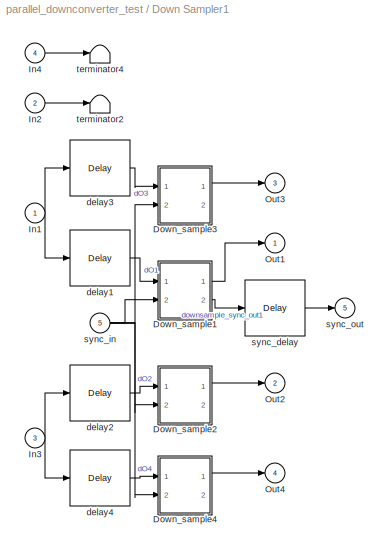
BLOCK [SubSystem] Down Sampler1
  AttributesFormatString = Decimation Rate = 2
  FunctionWithSeparateData = off
  MaskCallbackString = |||
  MaskDescription = Parallely downconvert.
  MaskEnableString = on,on,on,on
  MaskHideContents = off
  MaskIconFrame = on
  MaskIconOpaque = on
  MaskIconRotate = none
  MaskIconUnits = autoscale
  MaskInitialization = config.source=str2func('parallel_downsampler_init_xblock');\nconfig.depend=get_dependlist('parallel_downsampler');\nconfig.toplevel=gcb;\nset_param(gcb,'LinkStatus','inactive');\nxBlock(config, {config.toplevel,...\n    'n_inputs', n_inputs, ...\n    'dec_rate', dec_rate, ...\n    'xilinx', xilinx, ...\n    'input_clk_rate', input_clk_rate});
  MaskPortRotate = default
  MaskPromptString = number of inputs|Decimation rate|Use Xilinx version of Down Sample?|Input Clock Rate
  MaskStyleString = edit,edit,checkbox,edit
  MaskToolTipString = on,on,on,on
  MaskTunableValueString = on,on,on,on
  MaskType = Parallel Downconverter (xBlock)
  MaskValueString = 4|2|off|4
  MaskVariables = n_inputs=@1;dec_rate=@2;xilinx=@3;input_clk_rate=@4;
  MaskVisibilityString = on,on,on,on
  MinAlgLoopOccurrences = off
  Opaque = off
  Ports = [5, 5]
  PropExecContextOutsideSubsystem = off
  RTWSystemCode = Auto
  RequestExecContextInheritance = off
  SID = 1258
  UserData = DataTag2
  UserDataPersistent = on
BLOCK [SubSystem] Down Sampler1/Down_sample1
  FunctionWithSeparateData = off
  MaskHideContents = off
  MinAlgLoopOccurrences = off
  Opaque = off
  Ports = [2, 2]
  PropExecContextOutsideSubsystem = off
  RTWSystemCode = Auto
  RequestExecContextInheritance = off
  SID = 2069
BLOCK [Reference] Down Sampler1/Down_sample1/Constant  REF=xbsIndex_r4/Constant
  Ports = [0, 1]
  SID = 2074
  SourceBlock = xbsIndex_r4/Constant
  SourceType = Xilinx Constant Block Block
  arith_type = Signed (2's comp)
  bin_pt = 14
  block_type = constant
  carry = CIN
  const = 0
  dbl_ovrd = off
  dsp48_infoedit = The use of this block for DSP48 instructions is deprecated.  Please use the Opmode block.
  equ = P=C
  exp_width = 8
  explicit_period = off
  frac_width = 24
  gui_display_data_type = Fixed-point
  has_advanced_control = 0
  inp1 = P
  inp2 = PCIN>>17
  n_bits = 16
  opr = +
  opselect = C
  period = 1
  preci_type = Single
  sg_icon_stat = 50,26,0,1,white,blue,0,1e24c1db,right,,[ ],[ ]
  sggui_pos = -1,-1,-1,-1
BLOCK [Reference] Down Sampler1/Down_sample1/Counter1  REF=xbsIndex_r4/Counter
  Ports = [1, 1]
  SID = 2075
  SourceBlock = xbsIndex_r4/Counter
  SourceType = Xilinx Counter Block
  arith_type = Unsigned
  bin_pt = 0
  block_type = counter
  cnt_by_val = 1
  cnt_to = 0
  cnt_type = Count Limited
  dbl_ovrd = off
  en = off
  explicit_period = on
  has_advanced_control = 0
  implementation = Fabric
  infoedit = Hardware notes: Free running counters are the least expensive in hardware.  A count limited counter is implemented by combining a counter with a comparator.
  load_pin = off
  n_bits = 1
  operation = Down
  period = 4
  rst = on
  sg_icon_stat = 60,60,1,1,white,blue,0,07bdd615,right,,[ ],[ ]
  sggui_pos = -1,-1,-1,-1
  start_count = 1
  use_behavioral_HDL = off
  xl_area = [0,0,0,0,0,0,0]
  xl_use_area = off
BLOCK [Inport] Down Sampler1/Down_sample1/In
  IconDisplay = Port number
  SID = 2070
BLOCK [Outport] Down Sampler1/Down_sample1/Out
  IconDisplay = Port number
  SID = 2072
BLOCK [Reference] Down Sampler1/Down_sample1/Register  REF=xbsIndex_r4/Register
  Ports = [2, 1]
  SID = 2076
  SourceBlock = xbsIndex_r4/Register
  SourceType = Xilinx Register Block
  block_type = register
  dbl_ovrd = off
  en = on
  has_advanced_control = 0
  init = 0
  rst = off
  sg_icon_stat = 60,56,2,1,white,blue,0,2b1622a2,right,,[ ],[ ]
  sggui_pos = -1,-1,-1,-1
  xl_area = [0,0,0,0,0,0,0]
  xl_use_area = off
BLOCK [Reference] Down Sampler1/Down_sample1/Relational  REF=xbsIndex_r4/Relational
  Ports = [2, 1]
  SID = 2077
  SourceBlock = xbsIndex_r4/Relational
  SourceType = Xilinx Arithmetic Relational Operator Block
  block_type = relational
  dbl_ovrd = off
  en = off
  has_advanced_control = 0
  latency = 1
  mode = a=b
  sg_icon_stat = 55,56,2,1,white,blue,0,bfd15527,right,,[ ],[ ]
  sggui_pos = -1,-1,-1,-1
  xl_area = [0,0,0,0,0,0,0]
  xl_use_area = off
BLOCK [Reference] Down Sampler1/Down_sample1/sync_delay  REF=xbsIndex_r4/Delay
  Ports = [1, 1]
  SID = 2078
  SourceBlock = xbsIndex_r4/Delay
  SourceType = Xilinx Delay Block
  block_type = delay
  dbl_ovrd = off
  en = off
  has_advanced_control = 0
  infoedit = Hardware notes: A delay line is a chain, each link of which is an SRL16 followed by a flip-flop.
  infoeditControl = Selection of Reset will increase slice count due to use of real FFs and instead of SRLs
  latency = 1
  reg_retiming = off
  rst = off
  sg_icon_stat = 60,56,1,1,white,blue,0,07bdd615,right,,[ ],[ ]
  sggui_pos = -1,-1,-1,-1
  xl_area = [0,0,0,0,0,0,0]
  xl_use_area = off
BLOCK [Inport] Down Sampler1/Down_sample1/sync_in
  IconDisplay = Port number
  Port = 2
  SID = 2071
BLOCK [Outport] Down Sampler1/Down_sample1/sync_out
  IconDisplay = Port number
  Port = 2
  SID = 2073
BLOCK [SubSystem] Down Sampler1/Down_sample2
  FunctionWithSeparateData = off
  MaskHideContents = off
  MinAlgLoopOccurrences = off
  Opaque = off
  Ports = [2, 2]
  PropExecContextOutsideSubsystem = off
  RTWSystemCode = Auto
  RequestExecContextInheritance = off
  SID = 2080
BLOCK [Reference] Down Sampler1/Down_sample2/Constant  REF=xbsIndex_r4/Constant
  Ports = [0, 1]
  SID = 2085
  SourceBlock = xbsIndex_r4/Constant
  SourceType = Xilinx Constant Block Block
  arith_type = Signed (2's comp)
  bin_pt = 14
  block_type = constant
  carry = CIN
  const = 0
  dbl_ovrd = off
  dsp48_infoedit = The use of this block for DSP48 instructions is deprecated.  Please use the Opmode block.
  equ = P=C
  exp_width = 8
  explicit_period = off
  frac_width = 24
  gui_display_data_type = Fixed-point
  has_advanced_control = 0
  inp1 = P
  inp2 = PCIN>>17
  n_bits = 16
  opr = +
  opselect = C
  period = 1
  preci_type = Single
  sg_icon_stat = 50,26,0,1,white,blue,0,1e24c1db,right,,[ ],[ ]
  sggui_pos = -1,-1,-1,-1
BLOCK [Reference] Down Sampler1/Down_sample2/Counter1  REF=xbsIndex_r4/Counter
  Ports = [1, 1]
  SID = 2086
  SourceBlock = xbsIndex_r4/Counter
  SourceType = Xilinx Counter Block
  arith_type = Unsigned
  bin_pt = 0
  block_type = counter
  cnt_by_val = 1
  cnt_to = 0
  cnt_type = Count Limited
  dbl_ovrd = off
  en = off
  explicit_period = on
  has_advanced_control = 0
  implementation = Fabric
  infoedit = Hardware notes: Free running counters are the least expensive in hardware.  A count limited counter is implemented by combining a counter with a comparator.
  load_pin = off
  n_bits = 1
  operation = Down
  period = 4
  rst = on
  sg_icon_stat = 60,60,1,1,white,blue,0,07bdd615,right,,[ ],[ ]
  sggui_pos = -1,-1,-1,-1
  start_count = 1
  use_behavioral_HDL = off
  xl_area = [0,0,0,0,0,0,0]
  xl_use_area = off
BLOCK [Inport] Down Sampler1/Down_sample2/In
  IconDisplay = Port number
  SID = 2081
BLOCK [Outport] Down Sampler1/Down_sample2/Out
  IconDisplay = Port number
  SID = 2083
BLOCK [Reference] Down Sampler1/Down_sample2/Register  REF=xbsIndex_r4/Register
  Ports = [2, 1]
  SID = 2087
  SourceBlock = xbsIndex_r4/Register
  SourceType = Xilinx Register Block
  block_type = register
  dbl_ovrd = off
  en = on
  has_advanced_control = 0
  init = 0
  rst = off
  sg_icon_stat = 60,56,2,1,white,blue,0,2b1622a2,right,,[ ],[ ]
  sggui_pos = -1,-1,-1,-1
  xl_area = [0,0,0,0,0,0,0]
  xl_use_area = off
BLOCK [Reference] Down Sampler1/Down_sample2/Relational  REF=xbsIndex_r4/Relational
  Ports = [2, 1]
  SID = 2088
  SourceBlock = xbsIndex_r4/Relational
  SourceType = Xilinx Arithmetic Relational Operator Block
  block_type = relational
  dbl_ovrd = off
  en = off
  has_advanced_control = 0
  latency = 1
  mode = a=b
  sg_icon_stat = 55,56,2,1,white,blue,0,bfd15527,right,,[ ],[ ]
  sggui_pos = -1,-1,-1,-1
  xl_area = [0,0,0,0,0,0,0]
  xl_use_area = off
BLOCK [Reference] Down Sampler1/Down_sample2/sync_delay  REF=xbsIndex_r4/Delay
  Ports = [1, 1]
  SID = 2089
  SourceBlock = xbsIndex_r4/Delay
  SourceType = Xilinx Delay Block
  block_type = delay
  dbl_ovrd = off
  en = off
  has_advanced_control = 0
  infoedit = Hardware notes: A delay line is a chain, each link of which is an SRL16 followed by a flip-flop.
  infoeditControl = Selection of Reset will increase slice count due to use of real FFs and instead of SRLs
  latency = 1
  reg_retiming = off
  rst = off
  sg_icon_stat = 60,56,1,1,white,blue,0,07bdd615,right,,[ ],[ ]
  sggui_pos = -1,-1,-1,-1
  xl_area = [0,0,0,0,0,0,0]
  xl_use_area = off
BLOCK [Inport] Down Sampler1/Down_sample2/sync_in
  IconDisplay = Port number
  Port = 2
  SID = 2082
BLOCK [Outport] Down Sampler1/Down_sample2/sync_out
  IconDisplay = Port number
  Port = 2
  SID = 2084
BLOCK [SubSystem] Down Sampler1/Down_sample3
  FunctionWithSeparateData = off
  MaskHideContents = off
  MinAlgLoopOccurrences = off
  Opaque = off
  Ports = [2, 2]
  PropExecContextOutsideSubsystem = off
  RTWSystemCode = Auto
  RequestExecContextInheritance = off
  SID = 2091
BLOCK [Reference] Down Sampler1/Down_sample3/Constant  REF=xbsIndex_r4/Constant
  Ports = [0, 1]
  SID = 2096
  SourceBlock = xbsIndex_r4/Constant
  SourceType = Xilinx Constant Block Block
  arith_type = Signed (2's comp)
  bin_pt = 14
  block_type = constant
  carry = CIN
  const = 0
  dbl_ovrd = off
  dsp48_infoedit = The use of this block for DSP48 instructions is deprecated.  Please use the Opmode block.
  equ = P=C
  exp_width = 8
  explicit_period = off
  frac_width = 24
  gui_display_data_type = Fixed-point
  has_advanced_control = 0
  inp1 = P
  inp2 = PCIN>>17
  n_bits = 16
  opr = +
  opselect = C
  period = 1
  preci_type = Single
  sg_icon_stat = 50,26,0,1,white,blue,0,1e24c1db,right,,[ ],[ ]
  sggui_pos = -1,-1,-1,-1
BLOCK [Reference] Down Sampler1/Down_sample3/Counter1  REF=xbsIndex_r4/Counter
  Ports = [1, 1]
  SID = 2097
  SourceBlock = xbsIndex_r4/Counter
  SourceType = Xilinx Counter Block
  arith_type = Unsigned
  bin_pt = 0
  block_type = counter
  cnt_by_val = 1
  cnt_to = 0
  cnt_type = Count Limited
  dbl_ovrd = off
  en = off
  explicit_period = on
  has_advanced_control = 0
  implementation = Fabric
  infoedit = Hardware notes: Free running counters are the least expensive in hardware.  A count limited counter is implemented by combining a counter with a comparator.
  load_pin = off
  n_bits = 1
  operation = Down
  period = 4
  rst = on
  sg_icon_stat = 60,60,1,1,white,blue,0,07bdd615,right,,[ ],[ ]
  sggui_pos = -1,-1,-1,-1
  start_count = 1
  use_behavioral_HDL = off
  xl_area = [0,0,0,0,0,0,0]
  xl_use_area = off
BLOCK [Inport] Down Sampler1/Down_sample3/In
  IconDisplay = Port number
  SID = 2092
BLOCK [Outport] Down Sampler1/Down_sample3/Out
  IconDisplay = Port number
  SID = 2094
BLOCK [Reference] Down Sampler1/Down_sample3/Register  REF=xbsIndex_r4/Register
  Ports = [2, 1]
  SID = 2098
  SourceBlock = xbsIndex_r4/Register
  SourceType = Xilinx Register Block
  block_type = register
  dbl_ovrd = off
  en = on
  has_advanced_control = 0
  init = 0
  rst = off
  sg_icon_stat = 60,56,2,1,white,blue,0,2b1622a2,right,,[ ],[ ]
  sggui_pos = -1,-1,-1,-1
  xl_area = [0,0,0,0,0,0,0]
  xl_use_area = off
BLOCK [Reference] Down Sampler1/Down_sample3/Relational  REF=xbsIndex_r4/Relational
  Ports = [2, 1]
  SID = 2099
  SourceBlock = xbsIndex_r4/Relational
  SourceType = Xilinx Arithmetic Relational Operator Block
  block_type = relational
  dbl_ovrd = off
  en = off
  has_advanced_control = 0
  latency = 1
  mode = a=b
  sg_icon_stat = 55,56,2,1,white,blue,0,bfd15527,right,,[ ],[ ]
  sggui_pos = -1,-1,-1,-1
  xl_area = [0,0,0,0,0,0,0]
  xl_use_area = off
BLOCK [Reference] Down Sampler1/Down_sample3/sync_delay  REF=xbsIndex_r4/Delay
  Ports = [1, 1]
  SID = 2100
  SourceBlock = xbsIndex_r4/Delay
  SourceType = Xilinx Delay Block
  block_type = delay
  dbl_ovrd = off
  en = off
  has_advanced_control = 0
  infoedit = Hardware notes: A delay line is a chain, each link of which is an SRL16 followed by a flip-flop.
  infoeditControl = Selection of Reset will increase slice count due to use of real FFs and instead of SRLs
  latency = 1
  reg_retiming = off
  rst = off
  sg_icon_stat = 60,56,1,1,white,blue,0,07bdd615,right,,[ ],[ ]
  sggui_pos = -1,-1,-1,-1
  xl_area = [0,0,0,0,0,0,0]
  xl_use_area = off
BLOCK [Inport] Down Sampler1/Down_sample3/sync_in
  IconDisplay = Port number
  Port = 2
  SID = 2093
BLOCK [Outport] Down Sampler1/Down_sample3/sync_out
  IconDisplay = Port number
  Port = 2
  SID = 2095
BLOCK [SubSystem] Down Sampler1/Down_sample4
  FunctionWithSeparateData = off
  MaskHideContents = off
  MinAlgLoopOccurrences = off
  Opaque = off
  Ports = [2, 2]
  PropExecContextOutsideSubsystem = off
  RTWSystemCode = Auto
  RequestExecContextInheritance = off
  SID = 2102
BLOCK [Reference] Down Sampler1/Down_sample4/Constant  REF=xbsIndex_r4/Constant
  Ports = [0, 1]
  SID = 2107
  SourceBlock = xbsIndex_r4/Constant
  SourceType = Xilinx Constant Block Block
  arith_type = Signed (2's comp)
  bin_pt = 14
  block_type = constant
  carry = CIN
  const = 0
  dbl_ovrd = off
  dsp48_infoedit = The use of this block for DSP48 instructions is deprecated.  Please use the Opmode block.
  equ = P=C
  exp_width = 8
  explicit_period = off
  frac_width = 24
  gui_display_data_type = Fixed-point
  has_advanced_control = 0
  inp1 = P
  inp2 = PCIN>>17
  n_bits = 16
  opr = +
  opselect = C
  period = 1
  preci_type = Single
  sg_icon_stat = 50,26,0,1,white,blue,0,1e24c1db,right,,[ ],[ ]
  sggui_pos = -1,-1,-1,-1
BLOCK [Reference] Down Sampler1/Down_sample4/Counter1  REF=xbsIndex_r4/Counter
  Ports = [1, 1]
  SID = 2108
  SourceBlock = xbsIndex_r4/Counter
  SourceType = Xilinx Counter Block
  arith_type = Unsigned
  bin_pt = 0
  block_type = counter
  cnt_by_val = 1
  cnt_to = 0
  cnt_type = Count Limited
  dbl_ovrd = off
  en = off
  explicit_period = on
  has_advanced_control = 0
  implementation = Fabric
  infoedit = Hardware notes: Free running counters are the least expensive in hardware.  A count limited counter is implemented by combining a counter with a comparator.
  load_pin = off
  n_bits = 1
  operation = Down
  period = 4
  rst = on
  sg_icon_stat = 60,60,1,1,white,blue,0,07bdd615,right,,[ ],[ ]
  sggui_pos = -1,-1,-1,-1
  start_count = 1
  use_behavioral_HDL = off
  xl_area = [0,0,0,0,0,0,0]
  xl_use_area = off
BLOCK [Inport] Down Sampler1/Down_sample4/In
  IconDisplay = Port number
  SID = 2103
BLOCK [Outport] Down Sampler1/Down_sample4/Out
  IconDisplay = Port number
  SID = 2105
BLOCK [Reference] Down Sampler1/Down_sample4/Register  REF=xbsIndex_r4/Register
  Ports = [2, 1]
  SID = 2109
  SourceBlock = xbsIndex_r4/Register
  SourceType = Xilinx Register Block
  block_type = register
  dbl_ovrd = off
  en = on
  has_advanced_control = 0
  init = 0
  rst = off
  sg_icon_stat = 60,56,2,1,white,blue,0,2b1622a2,right,,[ ],[ ]
  sggui_pos = -1,-1,-1,-1
  xl_area = [0,0,0,0,0,0,0]
  xl_use_area = off
BLOCK [Reference] Down Sampler1/Down_sample4/Relational  REF=xbsIndex_r4/Relational
  Ports = [2, 1]
  SID = 2110
  SourceBlock = xbsIndex_r4/Relational
  SourceType = Xilinx Arithmetic Relational Operator Block
  block_type = relational
  dbl_ovrd = off
  en = off
  has_advanced_control = 0
  latency = 1
  mode = a=b
  sg_icon_stat = 55,56,2,1,white,blue,0,bfd15527,right,,[ ],[ ]
  sggui_pos = -1,-1,-1,-1
  xl_area = [0,0,0,0,0,0,0]
  xl_use_area = off
BLOCK [Reference] Down Sampler1/Down_sample4/sync_delay  REF=xbsIndex_r4/Delay
  Ports = [1, 1]
  SID = 2111
  SourceBlock = xbsIndex_r4/Delay
  SourceType = Xilinx Delay Block
  block_type = delay
  dbl_ovrd = off
  en = off
  has_advanced_control = 0
  infoedit = Hardware notes: A delay line is a chain, each link of which is an SRL16 followed by a flip-flop.
  infoeditControl = Selection of Reset will increase slice count due to use of real FFs and instead of SRLs
  latency = 1
  reg_retiming = off
  rst = off
  sg_icon_stat = 60,56,1,1,white,blue,0,07bdd615,right,,[ ],[ ]
  sggui_pos = -1,-1,-1,-1
  xl_area = [0,0,0,0,0,0,0]
  xl_use_area = off
BLOCK [Inport] Down Sampler1/Down_sample4/sync_in
  IconDisplay = Port number
  Port = 2
  SID = 2104
BLOCK [Outport] Down Sampler1/Down_sample4/sync_out
  IconDisplay = Port number
  Port = 2
  SID = 2106
BLOCK [Inport] Down Sampler1/In1
  IconDisplay = Port number
  SID = 1260
BLOCK [Inport] Down Sampler1/In2
  IconDisplay = Port number
  Port = 2
  SID = 1261
BLOCK [Inport] Down Sampler1/In3
  IconDisplay = Port number
  Port = 3
  SID = 1262
BLOCK [Inport] Down Sampler1/In4
  IconDisplay = Port number
  Port = 4
  SID = 1263
BLOCK [Outport] Down Sampler1/Out1
  IconDisplay = Port number
  SID = 1307
BLOCK [Outport] Down Sampler1/Out2
  IconDisplay = Port number
  Port = 2
  SID = 1308
BLOCK [Outport] Down Sampler1/Out3
  IconDisplay = Port number
  Port = 3
  SID = 1309
BLOCK [Outport] Down Sampler1/Out4
  IconDisplay = Port number
  Port = 4
  SID = 1310
BLOCK [Reference] Down Sampler1/delay1  REF=xbsIndex_r4/Delay
  Ports = [1, 1]
  SID = 2068
  SourceBlock = xbsIndex_r4/Delay
  SourceType = Xilinx Delay Block
  block_type = delay
  dbl_ovrd = off
  en = off
  has_advanced_control = 0
  infoedit = Hardware notes: A delay line is a chain, each link of which is an SRL16 followed by a flip-flop.
  infoeditControl = Selection of Reset will increase slice count due to use of real FFs and instead of SRLs
  latency = 1
  reg_retiming = off
  rst = off
  sg_icon_stat = 60,56,1,1,white,blue,0,07bdd615,right,,[ ],[ ]
  sggui_pos = -1,-1,-1,-1
  xl_area = [0,0,0,0,0,0,0]
  xl_use_area = off
BLOCK [Reference] Down Sampler1/delay2  REF=xbsIndex_r4/Delay
  Ports = [1, 1]
  SID = 2079
  SourceBlock = xbsIndex_r4/Delay
  SourceType = Xilinx Delay Block
  block_type = delay
  dbl_ovrd = off
  en = off
  has_advanced_control = 0
  infoedit = Hardware notes: A delay line is a chain, each link of which is an SRL16 followed by a flip-flop.
  infoeditControl = Selection of Reset will increase slice count due to use of real FFs and instead of SRLs
  latency = 1
  reg_retiming = off
  rst = off
  sg_icon_stat = 60,56,1,1,white,blue,0,07bdd615,right,,[ ],[ ]
  sggui_pos = -1,-1,-1,-1
  xl_area = [0,0,0,0,0,0,0]
  xl_use_area = off
BLOCK [Reference] Down Sampler1/delay3  REF=xbsIndex_r4/Delay
  Ports = [1, 1]
  SID = 2090
  SourceBlock = xbsIndex_r4/Delay
  SourceType = Xilinx Delay Block
  block_type = delay
  dbl_ovrd = off
  en = off
  has_advanced_control = 0
  infoedit = Hardware notes: A delay line is a chain, each link of which is an SRL16 followed by a flip-flop.
  infoeditControl = Selection of Reset will increase slice count due to use of real FFs and instead of SRLs
  latency = 0
  reg_retiming = off
  rst = off
  sg_icon_stat = 60,56,1,1,white,blue,0,07bdd615,right,,[ ],[ ]
  sggui_pos = -1,-1,-1,-1
  xl_area = [0,0,0,0,0,0,0]
  xl_use_area = off
BLOCK [Reference] Down Sampler1/delay4  REF=xbsIndex_r4/Delay
  Ports = [1, 1]
  SID = 2101
  SourceBlock = xbsIndex_r4/Delay
  SourceType = Xilinx Delay Block
  block_type = delay
  dbl_ovrd = off
  en = off
  has_advanced_control = 0
  infoedit = Hardware notes: A delay line is a chain, each link of which is an SRL16 followed by a flip-flop.
  infoeditControl = Selection of Reset will increase slice count due to use of real FFs and instead of SRLs
  latency = 0
  reg_retiming = off
  rst = off
  sg_icon_stat = 60,56,1,1,white,blue,0,07bdd615,right,,[ ],[ ]
  sggui_pos = -1,-1,-1,-1
  xl_area = [0,0,0,0,0,0,0]
  xl_use_area = off
BLOCK [Reference] Down Sampler1/sync_delay  REF=xbsIndex_r4/Delay
  Ports = [1, 1]
  SID = 2112
  SourceBlock = xbsIndex_r4/Delay
  SourceType = Xilinx Delay Block
  block_type = delay
  dbl_ovrd = off
  en = off
  has_advanced_control = 0
  infoedit = Hardware notes: A delay line is a chain, each link of which is an SRL16 followed by a flip-flop.
  infoeditControl = Selection of Reset will increase slice count due to use of real FFs and instead of SRLs
  latency = 1
  reg_retiming = off
  rst = off
  sg_icon_stat = 60,56,1,1,white,blue,0,07bdd615,right,,[ ],[ ]
  sggui_pos = -1,-1,-1,-1
  xl_area = [0,0,0,0,0,0,0]
  xl_use_area = off
BLOCK [Inport] Down Sampler1/sync_in
  IconDisplay = Port number
  Port = 5
  SID = 1259
BLOCK [Outport] Down Sampler1/sync_out
  IconDisplay = Port number
  Port = 5
  SID = 1306
BLOCK [Terminator] Down Sampler1/terminator2
  SID = 2066
BLOCK [Terminator] Down Sampler1/terminator4
  SID = 2067
BLOCK [Reference] Gateway Out1  REF=xbsIndex_r4/Gateway Out
  LOCs = {}
  Ports = [1, 1]
  SID = 9
  SourceBlock = xbsIndex_r4/Gateway Out
  SourceType = Xilinx Gateway Out Block
  block_type = gatewayout
  block_version = 11.4
  has_advanced_control = 0
  hdl_port = on
  infoedit = Gateway out block.  Converts Xilinx fixed point inputs into ouputs of type Simulink integer, double, or fixed point.<br><br>Hardware notes:  In hardware these blocks become top level output ports or are discarded, depending on how they are configured.  <repeated x10 — deduplicated; at blocks: Gateway Out1, Gateway Out10, Gateway Out2, Gateway Out3, Gateway Out4, Gateway Out5, Gateway Out6, Gateway Out7, Gateway Out8, Gateway Out9>
  locs_specified = off
  sg_icon_stat = 50,22,1,1,white,yellow,0,1f31137e,right,,[ ],[ ]
  sg_mask_display = fprintf('','COMMENT: begin icon graphics');\npatch([0 50 50 0 0 ],[0 0 22 22 0 ],[0.95 0.93 0.65 ]);\nplot([0 50 50 0 0 ],[0 0 22 22 0 ]);\npatch([18.325 22.66 25.66 28.66 31.66 25.66 21.325 18.325 ],[14.33 14.33 17.33 14.33 17.33 17.33 17.33 14.33 ],[1 1 1 ]);\npatch([21.325 25.66 22.66 18.325 21.325 ],[11.33 11.33 14.33 14.33 11.33 ],[0.985 0.979 0.895 ]);\npatch([18.325 22.66 25.66 21.325 18.32...<+440ch>
  sggui_pos = -1,-1,-1,-1
  timing_constraint = None
  xl_area = [0,0,0,0,0,0,0]
  xl_use_area = off
BLOCK [Reference] Gateway Out10  REF=xbsIndex_r4/Gateway Out
  LOCs = {}
  Ports = [1, 1]
  SID = 1690
  SourceBlock = xbsIndex_r4/Gateway Out
  SourceType = Xilinx Gateway Out Block
  block_type = gatewayout
  block_version = 11.4
  has_advanced_control = 0
  hdl_port = on
  locs_specified = off
  sg_icon_stat = 30,14,1,1,white,yellow,0,0a686d19,right,,[ ],[ ]
  sg_mask_display = fprintf('','COMMENT: begin icon graphics');\npatch([0 30 30 0 0 ],[0 0 14 14 0 ],[0.95 0.93 0.65 ]);\nplot([0 30 30 0 0 ],[0 0 14 14 0 ]);\npatch([10.55 13.44 15.44 17.44 19.44 15.44 12.55 10.55 ],[9.22 9.22 11.22 9.22 11.22 11.22 11.22 9.22 ],[1 1 1 ]);\npatch([12.55 15.44 13.44 10.55 12.55 ],[7.22 7.22 9.22 9.22 7.22 ],[0.985 0.979 0.895 ]);\npatch([10.55 13.44 15.44 12.55 10.55 ],[5.22 5.22 7.2...<+417ch>  <repeated x4 — deduplicated; at blocks: Gateway Out10, Gateway Out2, Gateway Out8, Gateway Out9>
  sggui_pos = -1,-1,-1,-1
  timing_constraint = None
  xl_area = [0,0,0,0,0,0,0]
  xl_use_area = off
BLOCK [Reference] Gateway Out2  REF=xbsIndex_r4/Gateway Out
  LOCs = {}
  Ports = [1, 1]
  SID = 47
  SourceBlock = xbsIndex_r4/Gateway Out
  SourceType = Xilinx Gateway Out Block
  block_type = gatewayout
  block_version = 11.4
  has_advanced_control = 0
  hdl_port = on
  locs_specified = off
  sg_icon_stat = 30,14,1,1,white,yellow,0,0a686d19,right,,[ ],[ ]
  sggui_pos = -1,-1,-1,-1
  timing_constraint = None
  xl_area = [0,0,0,0,0,0,0]
  xl_use_area = off
BLOCK [Reference] Gateway Out3  REF=xbsIndex_r4/Gateway Out
  LOCs = {}
  Ports = [1, 1]
  SID = 1312
  SourceBlock = xbsIndex_r4/Gateway Out
  SourceType = Xilinx Gateway Out Block
  block_type = gatewayout
  block_version = 11.4
  has_advanced_control = 0
  hdl_port = on
  locs_specified = off
  sg_icon_stat = 50,22,1,1,white,yellow,0,1f31137e,right,,[ ],[ ]
  sg_mask_display = fprintf('','COMMENT: begin icon graphics');\npatch([0 50 50 0 0 ],[0 0 22 22 0 ],[0.95 0.93 0.65 ]);\nplot([0 50 50 0 0 ],[0 0 22 22 0 ]);\npatch([18.325 22.66 25.66 28.66 31.66 25.66 21.325 18.325 ],[14.33 14.33 17.33 14.33 17.33 17.33 17.33 14.33 ],[1 1 1 ]);\npatch([21.325 25.66 22.66 18.325 21.325 ],[11.33 11.33 14.33 14.33 11.33 ],[0.985 0.979 0.895 ]);\npatch([18.325 22.66 25.66 21.325 18.32...<+440ch>
  sggui_pos = -1,-1,-1,-1
  timing_constraint = None
  xl_area = [0,0,0,0,0,0,0]
  xl_use_area = off
BLOCK [Reference] Gateway Out4  REF=xbsIndex_r4/Gateway Out
  LOCs = {}
  Ports = [1, 1]
  SID = 1457
  SourceBlock = xbsIndex_r4/Gateway Out
  SourceType = Xilinx Gateway Out Block
  block_type = gatewayout
  block_version = 11.4
  has_advanced_control = 0
  hdl_port = on
  locs_specified = off
  sg_icon_stat = 60,20,1,1,white,yellow,0,07bdd615,right,,[ ],[ ]
  sg_mask_display = fprintf('','COMMENT: begin icon graphics');\npatch([0 60 60 0 0 ],[0 0 20 20 0 ],[0.95 0.93 0.65 ]);\nplot([0 60 60 0 0 ],[0 0 20 20 0 ]);\npatch([25.55 28.44 30.44 32.44 34.44 30.44 27.55 25.55 ],[12.22 12.22 14.22 12.22 14.22 14.22 14.22 12.22 ],[1 1 1 ]);\npatch([27.55 30.44 28.44 25.55 27.55 ],[10.22 10.22 12.22 12.22 10.22 ],[0.985 0.979 0.895 ]);\npatch([25.55 28.44 30.44 27.55 25.55 ],[8.22...<+428ch>  <repeated x4 — deduplicated; at blocks: Gateway Out4, Gateway Out5, Gateway Out6, Gateway Out7>
  sggui_pos = -1,-1,-1,-1
  timing_constraint = None
  xl_area = [0,0,0,0,0,0,0]
  xl_use_area = off
BLOCK [Reference] Gateway Out5  REF=xbsIndex_r4/Gateway Out
  LOCs = {}
  Ports = [1, 1]
  SID = 1458
  SourceBlock = xbsIndex_r4/Gateway Out
  SourceType = Xilinx Gateway Out Block
  block_type = gatewayout
  block_version = 11.4
  has_advanced_control = 0
  hdl_port = on
  locs_specified = off
  sg_icon_stat = 60,20,1,1,white,yellow,0,07bdd615,right,,[ ],[ ]
  sggui_pos = -1,-1,-1,-1
  timing_constraint = None
  xl_area = [0,0,0,0,0,0,0]
  xl_use_area = off
BLOCK [Reference] Gateway Out6  REF=xbsIndex_r4/Gateway Out
  LOCs = {}
  Ports = [1, 1]
  SID = 1459
  SourceBlock = xbsIndex_r4/Gateway Out
  SourceType = Xilinx Gateway Out Block
  block_type = gatewayout
  block_version = 11.4
  has_advanced_control = 0
  hdl_port = on
  locs_specified = off
  sg_icon_stat = 60,20,1,1,white,yellow,0,07bdd615,right,,[ ],[ ]
  sggui_pos = -1,-1,-1,-1
  timing_constraint = None
  xl_area = [0,0,0,0,0,0,0]
  xl_use_area = off
BLOCK [Reference] Gateway Out7  REF=xbsIndex_r4/Gateway Out
  LOCs = {}
  Ports = [1, 1]
  SID = 1460
  SourceBlock = xbsIndex_r4/Gateway Out
  SourceType = Xilinx Gateway Out Block
  block_type = gatewayout
  block_version = 11.4
  has_advanced_control = 0
  hdl_port = on
  locs_specified = off
  sg_icon_stat = 60,20,1,1,white,yellow,0,07bdd615,right,,[ ],[ ]
  sggui_pos = -1,-1,-1,-1
  timing_constraint = None
  xl_area = [0,0,0,0,0,0,0]
  xl_use_area = off
BLOCK [Reference] Gateway Out8  REF=xbsIndex_r4/Gateway Out
  LOCs = {}
  Ports = [1, 1]
  SID = 1796
  SourceBlock = xbsIndex_r4/Gateway Out
  SourceType = Xilinx Gateway Out Block
  block_type = gatewayout
  block_version = 11.4
  has_advanced_control = 0
  hdl_port = on
  locs_specified = off
  sg_icon_stat = 30,14,1,1,white,yellow,0,0a686d19,right,,[ ],[ ]
  sggui_pos = -1,-1,-1,-1
  timing_constraint = None
  xl_area = [0,0,0,0,0,0,0]
  xl_use_area = off
BLOCK [Reference] Gateway Out9  REF=xbsIndex_r4/Gateway Out
  LOCs = {}
  Ports = [1, 1]
  SID = 1689
  SourceBlock = xbsIndex_r4/Gateway Out
  SourceType = Xilinx Gateway Out Block
  block_type = gatewayout
  block_version = 11.4
  has_advanced_control = 0
  hdl_port = on
  locs_specified = off
  sg_icon_stat = 30,14,1,1,white,yellow,0,0a686d19,right,,[ ],[ ]
  sggui_pos = -1,-1,-1,-1
  timing_constraint = None
  xl_area = [0,0,0,0,0,0,0]
  xl_use_area = off
BLOCK [Reference] Model Info  REF=simulink/Model-Wide\nUtilities/Model Info
  BlockCM = None
  DisplayStringWithTags = May 16, 2012\nFixed bug that occurs when n_inputs==1. (Basically using the Down Sample block)\nTested dec_rate = 2 & 7 for n_inputs=5. \n(With updated Down Sample block.)\n\n\n--------------\nMarch 19, 2012\nTest passed for a few cases, may be insufficient. Added reset port for blue down sample block.\nTHIS TEST IS A REALLY BAD ONE, NEED A NEW ONE. \n\n\n\n--------------\nJanuary 18, 2012:\n\nTest...<+764ch>
  Frame = on
  FunctionWithSeparateData = off
  GeneratePreprocessorConditionals = off
  HorizontalTextAlignment = Center
  InitialBlockCM = None
  LeftAlignmentValue = 0.5
  MaskDisplayString = May 16, 2012\\nFixed bug that occurs when n_inputs==1. (Basically using the Down Sample block)\\nTested dec_rate = 2 & 7 for n_inputs=5. \\n(With updated Down Sample block.)<path> 19, 2012\\nTest passed for a few cases, may be insufficient. Added reset port for blue down sample block.\\nTHIS TEST IS A REALLY BAD ONE, NEED A NEW ONE. <path> 18,...<+796ch>
  Ports = []
  RTWMemSecDataConstants = Inherit from model
  RTWMemSecDataInternal = Inherit from model
  RTWMemSecDataParameters = Inherit from model
  RTWMemSecFuncExecute = Inherit from model
  RTWMemSecFuncInitTerm = Inherit from model
  SID = 11
  ShowPortLabels = FromPortIcon
  SourceBlock = simulink/Model-Wide\nUtilities/Model Info
  SourceBlockDiagram = parallel_downconverter_test
  SourceType = CMBlock
  SystemSampleTime = -1
  TagMaxNumber = 20
BLOCK [SubSystem] Parallel_scope
  AncestorBlock = To_be_added_to_xBlocks_devels/Parallel_scope
  AttributesFormatString = Sample Period = 5
  FunctionWithSeparateData = off
  MaskCallbackString = |
  MaskDescription = This parallel scope can handle parallel inputs \nby propagating though gateways and serialize into \none single stream. The output can then be connected\ndirectly to a scope or toWorkspace. \n\nThe sample_period desribes the parallel inputs rate. \nFor example, for a 4-inputs stream with sample_period = 1\n(4 parallel inputs per Clk),  the output stream frequency \nwould be 4/1 = 4 (Sample/Clk)  <repeated x4 — deduplicated; at blocks: Parallel_scope, Parallel_scope1, Parallel_scope2, Parallel_scope3>
  MaskEnableString = on,on
  MaskHideContents = off
  MaskIconFrame = on
  MaskIconOpaque = on
  MaskIconRotate = none
  MaskIconUnits = autoscale
  MaskInitialization = config.source=str2func('parallel_scope_init_xblock');\nconfig.depend=get_dependlist('parallel_scope');\nconfig.toplevel=gcb;\nset_param(gcb,'LinkStatus','inactive');\nxBlock(config, {config.toplevel,...\n    'n_inputs', n_inputs, ...\n    'sample_period', sample_period});
  MaskPortRotate = default
  MaskPromptString = Number of inputs|Sample Period
  MaskStyleString = edit,edit
  MaskToolTipString = on,on
  MaskTunableValueString = on,on
  MaskType = Parallel Scope
  MaskValueString = 5|5
  MaskVariables = n_inputs=@1;sample_period=@2;
  MaskVisibilityString = on,on
  MinAlgLoopOccurrences = off
  Opaque = off
  Ports = [5, 1]
  PropExecContextOutsideSubsystem = off
  RTWSystemCode = Auto
  RequestExecContextInheritance = off
  SID = 43
  UserData = DataTag3
  UserDataPersistent = on
BLOCK [Reference] Parallel_scope/gateway_out1  REF=xbsIndex_r4/Gateway Out
  LOCs = {}
  Ports = [1, 1]
  SID = 43:208
  SourceBlock = xbsIndex_r4/Gateway Out
  SourceType = Xilinx Gateway Out Block
  block_type = gatewayout
  has_advanced_control = 0
  hdl_port = off
  infoedit = Gateway out block.  Converts Xilinx fixed point or floating-point type inputs into ouputs of type Simulink integer, double, or fixed point.<br><br>Hardware notes:  In hardware these blocks become top level output ports or are discarded, depending on how they are configured.  <repeated x18 — deduplicated; at blocks: gateway_out1, gateway_out2, gateway_out3, gateway_out4, gateway_out5>
  locs_specified = off
  sg_icon_stat = 60,20,1,1,white,grey,0,0a686d19,right,,[ ],[ ]
  sg_mask_display = fprintf('','COMMENT: begin icon graphics');\npatch([0 60 60 0 0 ],[0 0 20 20 0 ],[0.88 0.88 0.88 ]);\nplot([0 60 60 0 0 ],[0 0 20 20 0 ]);\npatch([25.55 28.44 30.44 32.44 34.44 30.44 27.55 25.55 ],[12.22 12.22 14.22 12.22 14.22 14.22 14.22 12.22 ],[1 1 1 ]);\npatch([27.55 30.44 28.44 25.55 27.55 ],[10.22 10.22 12.22 12.22 10.22 ],[0.964 0.964 0.964 ]);\npatch([25.55 28.44 30.44 27.55 25.55 ],[8.22...<+428ch>  <repeated x18 — deduplicated; at blocks: gateway_out1, gateway_out2, gateway_out3, gateway_out4, gateway_out5>
  sggui_pos = -1,-1,-1,-1
  timing_constraint = None
  xl_area = [0,0,0,0,0,0,0]
  xl_use_area = off
BLOCK [Reference] Parallel_scope/gateway_out2  REF=xbsIndex_r4/Gateway Out
  LOCs = {}
  Ports = [1, 1]
  SID = 43:209
  SourceBlock = xbsIndex_r4/Gateway Out
  SourceType = Xilinx Gateway Out Block
  block_type = gatewayout
  has_advanced_control = 0
  hdl_port = off
  locs_specified = off
  sg_icon_stat = 60,20,1,1,white,grey,0,0a686d19,right,,[ ],[ ]
  sggui_pos = -1,-1,-1,-1
  timing_constraint = None
  xl_area = [0,0,0,0,0,0,0]
  xl_use_area = off
BLOCK [Reference] Parallel_scope/gateway_out3  REF=xbsIndex_r4/Gateway Out
  LOCs = {}
  Ports = [1, 1]
  SID = 43:210
  SourceBlock = xbsIndex_r4/Gateway Out
  SourceType = Xilinx Gateway Out Block
  block_type = gatewayout
  has_advanced_control = 0
  hdl_port = off
  locs_specified = off
  sg_icon_stat = 60,20,1,1,white,grey,0,0a686d19,right,,[ ],[ ]
  sggui_pos = -1,-1,-1,-1
  timing_constraint = None
  xl_area = [0,0,0,0,0,0,0]
  xl_use_area = off
BLOCK [Reference] Parallel_scope/gateway_out4  REF=xbsIndex_r4/Gateway Out
  LOCs = {}
  Ports = [1, 1]
  SID = 43:211
  SourceBlock = xbsIndex_r4/Gateway Out
  SourceType = Xilinx Gateway Out Block
  block_type = gatewayout
  has_advanced_control = 0
  hdl_port = off
  locs_specified = off
  sg_icon_stat = 60,20,1,1,white,grey,0,0a686d19,right,,[ ],[ ]
  sggui_pos = -1,-1,-1,-1
  timing_constraint = None
  xl_area = [0,0,0,0,0,0,0]
  xl_use_area = off
BLOCK [Reference] Parallel_scope/gateway_out5  REF=xbsIndex_r4/Gateway Out
  LOCs = {}
  Ports = [1, 1]
  SID = 43:212
  SourceBlock = xbsIndex_r4/Gateway Out
  SourceType = Xilinx Gateway Out Block
  block_type = gatewayout
  has_advanced_control = 0
  hdl_port = off
  locs_specified = off
  sg_icon_stat = 60,20,1,1,white,grey,0,0a686d19,right,,[ ],[ ]
  sggui_pos = -1,-1,-1,-1
  timing_constraint = None
  xl_area = [0,0,0,0,0,0,0]
  xl_use_area = off
BLOCK [Inport] Parallel_scope/in1
  IconDisplay = Port number
  SID = 43:2
BLOCK [Inport] Parallel_scope/in2
  IconDisplay = Port number
  Port = 2
  SID = 43:3
BLOCK [Inport] Parallel_scope/in3
  IconDisplay = Port number
  Port = 3
  SID = 43:4
BLOCK [Inport] Parallel_scope/in4
  IconDisplay = Port number
  Port = 4
  SID = 43:5
BLOCK [Inport] Parallel_scope/in5
  IconDisplay = Port number
  Port = 5
  SID = 43:13
BLOCK [Outport] Parallel_scope/out
  IconDisplay = Port number
  SID = 43:12
BLOCK [Reference] Parallel_scope/sel  REF=simulink/Sources/Counter\nLimited
  FunctionWithSeparateData = off
  GeneratePreprocessorConditionals = off
  Ports = [0, 1]
  RTWMemSecDataConstants = Inherit from model
  RTWMemSecDataInternal = Inherit from model
  RTWMemSecDataParameters = Inherit from model
  RTWMemSecFuncExecute = Inherit from model
  RTWMemSecFuncInitTerm = Inherit from model
  SID = 43:207
  ShowPortLabels = FromPortIcon
  SourceBlock = simulink/Sources/Counter\nLimited
  SourceType = Counter Limited
  SystemSampleTime = -1
  tsamp = 1
  uplimit = 4
BLOCK [MultiPortSwitch] Parallel_scope/switch
  DataPortOrder = Zero-based contiguous
  InputSameDT = off
  Inputs = 5
  Ports = [6, 1]
  SID = 43:213
  SaturateOnIntegerOverflow = off
  zeroidx = on
BLOCK [SubSystem] Parallel_scope1
  AttributesFormatString = Sample Period = 35
  FunctionWithSeparateData = off
  MaskCallbackString = ||
  MaskEnableString = on,on,on
  MaskHideContents = off
  MaskIconFrame = on
  MaskIconOpaque = on
  MaskIconRotate = none
  MaskIconUnits = autoscale
  MaskInitialization = config.source=str2func('parallel_scope_init_xblock');\nconfig.depend=get_dependlist('parallel_scope');\nconfig.toplevel=gcb;\nset_param(gcb,'LinkStatus','inactive');\nxBlock(config, {config.toplevel,...\n    'n_inputs', n_inputs, ...\n    'sample_period', sample_period, ...\n    'explicit_period', explicit_period});
  MaskPortRotate = default
  MaskPromptString = Number of inputs|Sample Period|Explicit Period?
  MaskStyleString = edit,edit,checkbox
  MaskToolTipString = on,on,on
  MaskTunableValueString = on,on,on
  MaskType = Parallel Scope
  MaskValueString = 5|35|off
  MaskVariables = n_inputs=@1;sample_period=@2;explicit_period=@3;
  MaskVisibilityString = on,on,on
  MinAlgLoopOccurrences = off
  Opaque = off
  Ports = [5, 1]
  PropExecContextOutsideSubsystem = off
  RTWSystemCode = Auto
  RequestExecContextInheritance = off
  SID = 44
  UserData = DataTag4
  UserDataPersistent = on
BLOCK [Reference] Parallel_scope1/gateway_out1  REF=xbsIndex_r4/Gateway Out
  LOCs = {}
  Ports = [1, 1]
  SID = 2175
  SourceBlock = xbsIndex_r4/Gateway Out
  SourceType = Xilinx Gateway Out Block
  block_type = gatewayout
  has_advanced_control = 0
  hdl_port = off
  locs_specified = off
  sg_icon_stat = 60,20,1,1,white,grey,0,0a686d19,right,,[ ],[ ]
  sggui_pos = -1,-1,-1,-1
  timing_constraint = None
  xl_area = [0,0,0,0,0,0,0]
  xl_use_area = off
BLOCK [Reference] Parallel_scope1/gateway_out2  REF=xbsIndex_r4/Gateway Out
  LOCs = {}
  Ports = [1, 1]
  SID = 2176
  SourceBlock = xbsIndex_r4/Gateway Out
  SourceType = Xilinx Gateway Out Block
  block_type = gatewayout
  has_advanced_control = 0
  hdl_port = off
  locs_specified = off
  sg_icon_stat = 60,20,1,1,white,grey,0,0a686d19,right,,[ ],[ ]
  sggui_pos = -1,-1,-1,-1
  timing_constraint = None
  xl_area = [0,0,0,0,0,0,0]
  xl_use_area = off
BLOCK [Reference] Parallel_scope1/gateway_out3  REF=xbsIndex_r4/Gateway Out
  LOCs = {}
  Ports = [1, 1]
  SID = 2177
  SourceBlock = xbsIndex_r4/Gateway Out
  SourceType = Xilinx Gateway Out Block
  block_type = gatewayout
  has_advanced_control = 0
  hdl_port = off
  locs_specified = off
  sg_icon_stat = 60,20,1,1,white,grey,0,0a686d19,right,,[ ],[ ]
  sggui_pos = -1,-1,-1,-1
  timing_constraint = None
  xl_area = [0,0,0,0,0,0,0]
  xl_use_area = off
BLOCK [Reference] Parallel_scope1/gateway_out4  REF=xbsIndex_r4/Gateway Out
  LOCs = {}
  Ports = [1, 1]
  SID = 2178
  SourceBlock = xbsIndex_r4/Gateway Out
  SourceType = Xilinx Gateway Out Block
  block_type = gatewayout
  has_advanced_control = 0
  hdl_port = off
  locs_specified = off
  sg_icon_stat = 60,20,1,1,white,grey,0,0a686d19,right,,[ ],[ ]
  sggui_pos = -1,-1,-1,-1
  timing_constraint = None
  xl_area = [0,0,0,0,0,0,0]
  xl_use_area = off
BLOCK [Reference] Parallel_scope1/gateway_out5  REF=xbsIndex_r4/Gateway Out
  LOCs = {}
  Ports = [1, 1]
  SID = 2179
  SourceBlock = xbsIndex_r4/Gateway Out
  SourceType = Xilinx Gateway Out Block
  block_type = gatewayout
  has_advanced_control = 0
  hdl_port = off
  locs_specified = off
  sg_icon_stat = 60,20,1,1,white,grey,0,0a686d19,right,,[ ],[ ]
  sggui_pos = -1,-1,-1,-1
  timing_constraint = None
  xl_area = [0,0,0,0,0,0,0]
  xl_use_area = off
BLOCK [Inport] Parallel_scope1/in1
  IconDisplay = Port number
  SID = 101
BLOCK [Inport] Parallel_scope1/in2
  IconDisplay = Port number
  Port = 2
  SID = 102
BLOCK [Inport] Parallel_scope1/in3
  IconDisplay = Port number
  Port = 3
  SID = 103
BLOCK [Inport] Parallel_scope1/in4
  IconDisplay = Port number
  Port = 4
  SID = 104
BLOCK [Inport] Parallel_scope1/in5
  IconDisplay = Port number
  Port = 5
  SID = 105
BLOCK [Outport] Parallel_scope1/out
  IconDisplay = Port number
  SID = 113
BLOCK [Reference] Parallel_scope1/sel  REF=simulink/Sources/Counter\nLimited
  FunctionWithSeparateData = off
  GeneratePreprocessorConditionals = off
  Ports = [0, 1]
  RTWMemSecDataConstants = Inherit from model
  RTWMemSecDataInternal = Inherit from model
  RTWMemSecDataParameters = Inherit from model
  RTWMemSecFuncExecute = Inherit from model
  RTWMemSecFuncInitTerm = Inherit from model
  SID = 2174
  ShowPortLabels = FromPortIcon
  SourceBlock = simulink/Sources/Counter\nLimited
  SourceType = Counter Limited
  SystemSampleTime = -1
  tsamp = 7
  uplimit = 4
BLOCK [MultiPortSwitch] Parallel_scope1/switch
  DataPortOrder = Zero-based contiguous
  InputSameDT = off
  Inputs = 5
  Ports = [6, 1]
  SID = 2180
  SaturateOnIntegerOverflow = off
  zeroidx = on
BLOCK [SubSystem] Parallel_scope2
  AncestorBlock = To_be_added_to_xBlocks_devels/Parallel_scope
  AttributesFormatString = Sample Period = 4
  FunctionWithSeparateData = off
  MaskCallbackString = |
  MaskEnableString = on,on
  MaskHideContents = off
  MaskIconFrame = on
  MaskIconOpaque = on
  MaskIconRotate = none
  MaskIconUnits = autoscale
  MaskInitialization = config.source=str2func('parallel_scope_init_xblock');\nconfig.depend=get_dependlist('parallel_scope');\nconfig.toplevel=gcb;\nset_param(gcb,'LinkStatus','inactive');\nxBlock(config, {config.toplevel,...\n    'n_inputs', n_inputs, ...\n    'sample_period', sample_period});
  MaskPortRotate = default
  MaskPromptString = Number of inputs|Sample Period
  MaskStyleString = edit,edit
  MaskToolTipString = on,on
  MaskTunableValueString = on,on
  MaskType = Parallel Scope
  MaskValueString = 4|4
  MaskVariables = n_inputs=@1;sample_period=@2;
  MaskVisibilityString = on,on
  MinAlgLoopOccurrences = off
  Opaque = off
  Ports = [4, 1]
  PropExecContextOutsideSubsystem = off
  RTWSystemCode = Auto
  RequestExecContextInheritance = off
  SID = 1314
  UserData = DataTag5
  UserDataPersistent = on
BLOCK [Reference] Parallel_scope2/gateway_out1  REF=xbsIndex_r4/Gateway Out
  LOCs = {}
  Ports = [1, 1]
  SID = 1314:226
  SourceBlock = xbsIndex_r4/Gateway Out
  SourceType = Xilinx Gateway Out Block
  block_type = gatewayout
  has_advanced_control = 0
  hdl_port = off
  locs_specified = off
  sg_icon_stat = 60,20,1,1,white,grey,0,07bdd615,right,,[ ],[ ]
  sggui_pos = -1,-1,-1,-1
  timing_constraint = None
  xl_area = [0,0,0,0,0,0,0]
  xl_use_area = off
BLOCK [Reference] Parallel_scope2/gateway_out2  REF=xbsIndex_r4/Gateway Out
  LOCs = {}
  Ports = [1, 1]
  SID = 1314:227
  SourceBlock = xbsIndex_r4/Gateway Out
  SourceType = Xilinx Gateway Out Block
  block_type = gatewayout
  has_advanced_control = 0
  hdl_port = off
  locs_specified = off
  sg_icon_stat = 60,20,1,1,white,grey,0,07bdd615,right,,[ ],[ ]
  sggui_pos = -1,-1,-1,-1
  timing_constraint = None
  xl_area = [0,0,0,0,0,0,0]
  xl_use_area = off
BLOCK [Reference] Parallel_scope2/gateway_out3  REF=xbsIndex_r4/Gateway Out
  LOCs = {}
  Ports = [1, 1]
  SID = 1314:228
  SourceBlock = xbsIndex_r4/Gateway Out
  SourceType = Xilinx Gateway Out Block
  block_type = gatewayout
  has_advanced_control = 0
  hdl_port = off
  locs_specified = off
  sg_icon_stat = 60,20,1,1,white,grey,0,07bdd615,right,,[ ],[ ]
  sggui_pos = -1,-1,-1,-1
  timing_constraint = None
  xl_area = [0,0,0,0,0,0,0]
  xl_use_area = off
BLOCK [Reference] Parallel_scope2/gateway_out4  REF=xbsIndex_r4/Gateway Out
  LOCs = {}
  Ports = [1, 1]
  SID = 1314:229
  SourceBlock = xbsIndex_r4/Gateway Out
  SourceType = Xilinx Gateway Out Block
  block_type = gatewayout
  has_advanced_control = 0
  hdl_port = off
  locs_specified = off
  sg_icon_stat = 60,20,1,1,white,grey,0,07bdd615,right,,[ ],[ ]
  sggui_pos = -1,-1,-1,-1
  timing_constraint = None
  xl_area = [0,0,0,0,0,0,0]
  xl_use_area = off
BLOCK [Inport] Parallel_scope2/in1
  IconDisplay = Port number
  SID = 1314:2
BLOCK [Inport] Parallel_scope2/in2
  IconDisplay = Port number
  Port = 2
  SID = 1314:3
BLOCK [Inport] Parallel_scope2/in3
  IconDisplay = Port number
  Port = 3
  SID = 1314:4
BLOCK [Inport] Parallel_scope2/in4
  IconDisplay = Port number
  Port = 4
  SID = 1314:5
BLOCK [Outport] Parallel_scope2/out
  IconDisplay = Port number
  SID = 1314:12
BLOCK [Reference] Parallel_scope2/sel  REF=simulink/Sources/Counter\nLimited
  FunctionWithSeparateData = off
  GeneratePreprocessorConditionals = off
  Ports = [0, 1]
  RTWMemSecDataConstants = Inherit from model
  RTWMemSecDataInternal = Inherit from model
  RTWMemSecDataParameters = Inherit from model
  RTWMemSecFuncExecute = Inherit from model
  RTWMemSecFuncInitTerm = Inherit from model
  SID = 1314:225
  ShowPortLabels = FromPortIcon
  SourceBlock = simulink/Sources/Counter\nLimited
  SourceType = Counter Limited
  SystemSampleTime = -1
  tsamp = 1
  uplimit = 3
BLOCK [MultiPortSwitch] Parallel_scope2/switch
  DataPortOrder = Zero-based contiguous
  InputSameDT = off
  Inputs = 4
  Ports = [5, 1]
  SID = 1314:230
  SaturateOnIntegerOverflow = off
  zeroidx = on
BLOCK [SubSystem] Parallel_scope3
  AttributesFormatString = Sample Period = 8
  FunctionWithSeparateData = off
  MaskCallbackString = ||
  MaskEnableString = on,on,on
  MaskHideContents = off
  MaskIconFrame = on
  MaskIconOpaque = on
  MaskIconRotate = none
  MaskIconUnits = autoscale
  MaskInitialization = config.source=str2func('parallel_scope_init_xblock');\nconfig.depend=get_dependlist('parallel_scope');\nconfig.toplevel=gcb;\nset_param(gcb,'LinkStatus','inactive');\nxBlock(config, {config.toplevel,...\n    'n_inputs', n_inputs, ...\n    'sample_period', sample_period, ...\n    'explicit_period', explicit_period});
  MaskPortRotate = default
  MaskPromptString = Number of inputs|Sample Period|Explicit Period?
  MaskStyleString = edit,edit,checkbox
  MaskToolTipString = on,on,on
  MaskTunableValueString = on,on,on
  MaskType = Parallel Scope
  MaskValueString = 4|8|off
  MaskVariables = n_inputs=@1;sample_period=@2;explicit_period=@3;
  MaskVisibilityString = on,on,on
  MinAlgLoopOccurrences = off
  Opaque = off
  Ports = [4, 1]
  PropExecContextOutsideSubsystem = off
  RTWSystemCode = Auto
  RequestExecContextInheritance = off
  SID = 1315
  UserData = DataTag6
  UserDataPersistent = on
BLOCK [Reference] Parallel_scope3/gateway_out1  REF=xbsIndex_r4/Gateway Out
  LOCs = {}
  Ports = [1, 1]
  SID = 2114
  SourceBlock = xbsIndex_r4/Gateway Out
  SourceType = Xilinx Gateway Out Block
  block_type = gatewayout
  has_advanced_control = 0
  hdl_port = off
  locs_specified = off
  sg_icon_stat = 60,20,1,1,white,grey,0,07bdd615,right,,[ ],[ ]
  sggui_pos = -1,-1,-1,-1
  timing_constraint = None
  xl_area = [0,0,0,0,0,0,0]
  xl_use_area = off
BLOCK [Reference] Parallel_scope3/gateway_out2  REF=xbsIndex_r4/Gateway Out
  LOCs = {}
  Ports = [1, 1]
  SID = 2115
  SourceBlock = xbsIndex_r4/Gateway Out
  SourceType = Xilinx Gateway Out Block
  block_type = gatewayout
  has_advanced_control = 0
  hdl_port = off
  locs_specified = off
  sg_icon_stat = 60,20,1,1,white,grey,0,07bdd615,right,,[ ],[ ]
  sggui_pos = -1,-1,-1,-1
  timing_constraint = None
  xl_area = [0,0,0,0,0,0,0]
  xl_use_area = off
BLOCK [Reference] Parallel_scope3/gateway_out3  REF=xbsIndex_r4/Gateway Out
  LOCs = {}
  Ports = [1, 1]
  SID = 2116
  SourceBlock = xbsIndex_r4/Gateway Out
  SourceType = Xilinx Gateway Out Block
  block_type = gatewayout
  has_advanced_control = 0
  hdl_port = off
  locs_specified = off
  sg_icon_stat = 60,20,1,1,white,grey,0,07bdd615,right,,[ ],[ ]
  sggui_pos = -1,-1,-1,-1
  timing_constraint = None
  xl_area = [0,0,0,0,0,0,0]
  xl_use_area = off
BLOCK [Reference] Parallel_scope3/gateway_out4  REF=xbsIndex_r4/Gateway Out
  LOCs = {}
  Ports = [1, 1]
  SID = 2117
  SourceBlock = xbsIndex_r4/Gateway Out
  SourceType = Xilinx Gateway Out Block
  block_type = gatewayout
  has_advanced_control = 0
  hdl_port = off
  locs_specified = off
  sg_icon_stat = 60,20,1,1,white,grey,0,07bdd615,right,,[ ],[ ]
  sggui_pos = -1,-1,-1,-1
  timing_constraint = None
  xl_area = [0,0,0,0,0,0,0]
  xl_use_area = off
BLOCK [Inport] Parallel_scope3/in1
  IconDisplay = Port number
  SID = 1316
BLOCK [Inport] Parallel_scope3/in2
  IconDisplay = Port number
  Port = 2
  SID = 1317
BLOCK [Inport] Parallel_scope3/in3
  IconDisplay = Port number
  Port = 3
  SID = 1318
BLOCK [Inport] Parallel_scope3/in4
  IconDisplay = Port number
  Port = 4
  SID = 1319
BLOCK [Outport] Parallel_scope3/out
  IconDisplay = Port number
  SID = 1328
BLOCK [Reference] Parallel_scope3/sel  REF=simulink/Sources/Counter\nLimited
  FunctionWithSeparateData = off
  GeneratePreprocessorConditionals = off
  Ports = [0, 1]
  RTWMemSecDataConstants = Inherit from model
  RTWMemSecDataInternal = Inherit from model
  RTWMemSecDataParameters = Inherit from model
  RTWMemSecFuncExecute = Inherit from model
  RTWMemSecFuncInitTerm = Inherit from model
  SID = 2113
  ShowPortLabels = FromPortIcon
  SourceBlock = simulink/Sources/Counter\nLimited
  SourceType = Counter Limited
  SystemSampleTime = -1
  tsamp = 2
  uplimit = 3
BLOCK [MultiPortSwitch] Parallel_scope3/switch
  DataPortOrder = Zero-based contiguous
  InputSameDT = off
  Inputs = 4
  Ports = [5, 1]
  SID = 2118
  SaturateOnIntegerOverflow = off
  zeroidx = on
BLOCK [SubSystem] Parallelizer
  AncestorBlock = To_be_added_to_xBlocks_devels/Parallelizer
  AttributesFormatString = Sample Period = 1
  FunctionWithSeparateData = off
  MaskCallbackString = |
  MaskDescription = Parallelizer takes in a single stream and convert it into\nparallel outputs
  MaskEnableString = on,on
  MaskHideContents = off
  MaskIconFrame = on
  MaskIconOpaque = on
  MaskIconRotate = none
  MaskIconUnits = autoscale
  MaskInitialization = config.source=str2func('parallelizer_init_xblock');\nconfig.depend=get_dependlist('parallelizer');\nconfig.toplevel=gcb;\nset_param(gcb,'LinkStatus','inactive');\nxBlock(config, {config.toplevel,...\n    'n_outputs', n_outputs, ...\n    'sample_period', sample_period});
  MaskPortRotate = default
  MaskPromptString = n_outputs|sample_period
  MaskStyleString = edit,edit
  MaskToolTipString = on,on
  MaskTunableValueString = on,on
  MaskType = Parallelizer
  MaskValueString = 5|1
  MaskVariables = n_outputs=@1;sample_period=@2;
  MaskVisibilityString = on,on
  MinAlgLoopOccurrences = off
  Opaque = off
  Ports = [2, 6]
  PropExecContextOutsideSubsystem = off
  RTWSystemCode = Auto
  RequestExecContextInheritance = off
  SID = 2
  UserData = DataTag7
  UserDataPersistent = on
BLOCK [Reference] Parallelizer/Down_sample1  REF=xbsIndex_r4/Down Sample
  Ports = [1, 1]
  SID = 2:263
  SourceBlock = xbsIndex_r4/Down Sample
  SourceType = Xilinx Down Sampler Block
  block_type = dsamp
  dbl_ovrd = off
  en = off
  has_advanced_control = 0
  infoedit = Hardware notes: Sample and Latency controls determine the hardware implementation.  The cost in hardware of different implementations varies considerably; press Help for details.
  latency = 1
  sample_phase = Last Value of Frame  (most efficient)
  sample_ratio = 5
  sg_icon_stat = 60,56,1,1,white,blue,0,d8268842,right,,[ ],[ ]
  sggui_pos = -1,-1,-1,-1
  xl_area = [0,0,0,0,0,0,0]
  xl_use_area = off
BLOCK [Reference] Parallelizer/Down_sample2  REF=xbsIndex_r4/Down Sample
  Ports = [1, 1]
  SID = 2:264
  SourceBlock = xbsIndex_r4/Down Sample
  SourceType = Xilinx Down Sampler Block
  block_type = dsamp
  dbl_ovrd = off
  en = off
  has_advanced_control = 0
  infoedit = Hardware notes: Sample and Latency controls determine the hardware implementation.  The cost in hardware of different implementations varies considerably; press Help for details.
  latency = 1
  sample_phase = Last Value of Frame  (most efficient)
  sample_ratio = 5
  sg_icon_stat = 60,56,1,1,white,blue,0,d8268842,right,,[ ],[ ]
  sggui_pos = -1,-1,-1,-1
  xl_area = [0,0,0,0,0,0,0]
  xl_use_area = off
BLOCK [Reference] Parallelizer/Down_sample3  REF=xbsIndex_r4/Down Sample
  Ports = [1, 1]
  SID = 2:265
  SourceBlock = xbsIndex_r4/Down Sample
  SourceType = Xilinx Down Sampler Block
  block_type = dsamp
  dbl_ovrd = off
  en = off
  has_advanced_control = 0
  infoedit = Hardware notes: Sample and Latency controls determine the hardware implementation.  The cost in hardware of different implementations varies considerably; press Help for details.
  latency = 1
  sample_phase = Last Value of Frame  (most efficient)
  sample_ratio = 5
  sg_icon_stat = 60,56,1,1,white,blue,0,d8268842,right,,[ ],[ ]
  sggui_pos = -1,-1,-1,-1
  xl_area = [0,0,0,0,0,0,0]
  xl_use_area = off
BLOCK [Reference] Parallelizer/Down_sample4  REF=xbsIndex_r4/Down Sample
  Ports = [1, 1]
  SID = 2:266
  SourceBlock = xbsIndex_r4/Down Sample
  SourceType = Xilinx Down Sampler Block
  block_type = dsamp
  dbl_ovrd = off
  en = off
  has_advanced_control = 0
  infoedit = Hardware notes: Sample and Latency controls determine the hardware implementation.  The cost in hardware of different implementations varies considerably; press Help for details.
  latency = 1
  sample_phase = Last Value of Frame  (most efficient)
  sample_ratio = 5
  sg_icon_stat = 60,56,1,1,white,blue,0,d8268842,right,,[ ],[ ]
  sggui_pos = -1,-1,-1,-1
  xl_area = [0,0,0,0,0,0,0]
  xl_use_area = off
BLOCK [Reference] Parallelizer/Down_sample5  REF=xbsIndex_r4/Down Sample
  Ports = [1, 1]
  SID = 2:267
  SourceBlock = xbsIndex_r4/Down Sample
  SourceType = Xilinx Down Sampler Block
  block_type = dsamp
  dbl_ovrd = off
  en = off
  has_advanced_control = 0
  infoedit = Hardware notes: Sample and Latency controls determine the hardware implementation.  The cost in hardware of different implementations varies considerably; press Help for details.
  latency = 1
  sample_phase = Last Value of Frame  (most efficient)
  sample_ratio = 5
  sg_icon_stat = 60,56,1,1,white,blue,0,d8268842,right,,[ ],[ ]
  sggui_pos = -1,-1,-1,-1
  xl_area = [0,0,0,0,0,0,0]
  xl_use_area = off
BLOCK [Reference] Parallelizer/delay_blk1  REF=xbsIndex_r4/Delay
  Ports = [1, 1]
  SID = 2:258
  SourceBlock = xbsIndex_r4/Delay
  SourceType = Xilinx Delay Block
  block_type = delay
  dbl_ovrd = off
  en = off
  has_advanced_control = 0
  infoedit = Hardware notes: A delay line is a chain, each link of which is an SRL16 followed by a flip-flop.
  infoeditControl = Selection of Reset will increase slice count due to use of real FFs and instead of SRLs
  latency = 1
  reg_retiming = off
  rst = off
  sg_icon_stat = 60,56,1,1,white,blue,0,1f31137e,right,,[ ],[ ]
  sggui_pos = -1,-1,-1,-1
  xl_area = [0,0,0,0,0,0,0]
  xl_use_area = off
BLOCK [Reference] Parallelizer/delay_blk2  REF=xbsIndex_r4/Delay
  Ports = [1, 1]
  SID = 2:259
  SourceBlock = xbsIndex_r4/Delay
  SourceType = Xilinx Delay Block
  block_type = delay
  dbl_ovrd = off
  en = off
  has_advanced_control = 0
  infoedit = Hardware notes: A delay line is a chain, each link of which is an SRL16 followed by a flip-flop.
  infoeditControl = Selection of Reset will increase slice count due to use of real FFs and instead of SRLs
  latency = 1
  reg_retiming = off
  rst = off
  sg_icon_stat = 60,56,1,1,white,blue,0,1f31137e,right,,[ ],[ ]
  sggui_pos = -1,-1,-1,-1
  xl_area = [0,0,0,0,0,0,0]
  xl_use_area = off
BLOCK [Reference] Parallelizer/delay_blk3  REF=xbsIndex_r4/Delay
  Ports = [1, 1]
  SID = 2:260
  SourceBlock = xbsIndex_r4/Delay
  SourceType = Xilinx Delay Block
  block_type = delay
  dbl_ovrd = off
  en = off
  has_advanced_control = 0
  infoedit = Hardware notes: A delay line is a chain, each link of which is an SRL16 followed by a flip-flop.
  infoeditControl = Selection of Reset will increase slice count due to use of real FFs and instead of SRLs
  latency = 1
  reg_retiming = off
  rst = off
  sg_icon_stat = 60,56,1,1,white,blue,0,1f31137e,right,,[ ],[ ]
  sggui_pos = -1,-1,-1,-1
  xl_area = [0,0,0,0,0,0,0]
  xl_use_area = off
BLOCK [Reference] Parallelizer/delay_blk4  REF=xbsIndex_r4/Delay
  Ports = [1, 1]
  SID = 2:261
  SourceBlock = xbsIndex_r4/Delay
  SourceType = Xilinx Delay Block
  block_type = delay
  dbl_ovrd = off
  en = off
  has_advanced_control = 0
  infoedit = Hardware notes: A delay line is a chain, each link of which is an SRL16 followed by a flip-flop.
  infoeditControl = Selection of Reset will increase slice count due to use of real FFs and instead of SRLs
  latency = 1
  reg_retiming = off
  rst = off
  sg_icon_stat = 60,56,1,1,white,blue,0,1f31137e,right,,[ ],[ ]
  sggui_pos = -1,-1,-1,-1
  xl_area = [0,0,0,0,0,0,0]
  xl_use_area = off
BLOCK [Inport] Parallelizer/in
  IconDisplay = Port number
  SID = 2:28
BLOCK [Outport] Parallelizer/out1
  IconDisplay = Port number
  SID = 2:44
BLOCK [Outport] Parallelizer/out2
  IconDisplay = Port number
  Port = 2
  SID = 2:45
BLOCK [Outport] Parallelizer/out3
  IconDisplay = Port number
  Port = 3
  SID = 2:46
BLOCK [Outport] Parallelizer/out4
  IconDisplay = Port number
  Port = 4
  SID = 2:47
BLOCK [Outport] Parallelizer/out5
  IconDisplay = Port number
  Port = 5
  SID = 2:124
BLOCK [Reference] Parallelizer/sync_delay_block  REF=xbsIndex_r4/Delay
  Ports = [1, 1]
  SID = 2:262
  SourceBlock = xbsIndex_r4/Delay
  SourceType = Xilinx Delay Block
  block_type = delay
  dbl_ovrd = off
  en = off
  has_advanced_control = 0
  infoedit = Hardware notes: A delay line is a chain, each link of which is an SRL16 followed by a flip-flop.
  infoeditControl = Selection of Reset will increase slice count due to use of real FFs and instead of SRLs
  latency = 1
  reg_retiming = off
  rst = off
  sg_icon_stat = 60,56,1,1,white,blue,0,1f31137e,right,,[ ],[ ]
  sggui_pos = -1,-1,-1,-1
  xl_area = [0,0,0,0,0,0,0]
  xl_use_area = off
BLOCK [Inport] Parallelizer/sync_in
  IconDisplay = Port number
  Port = 2
  SID = 2:215
BLOCK [Outport] Parallelizer/sync_out
  IconDisplay = Port number
  Port = 6
  SID = 2:227
BLOCK [SubSystem] Parallelizer1
  AncestorBlock = To_be_added_to_xBlocks_devels/Parallelizer
  AttributesFormatString = Sample Period = 1
  FunctionWithSeparateData = off
  MaskCallbackString = |
  MaskDescription = Parallelizer takes in a single stream and convert it into\nparallel outputs
  MaskEnableString = on,on
  MaskHideContents = off
  MaskIconFrame = on
  MaskIconOpaque = on
  MaskIconRotate = none
  MaskIconUnits = autoscale
  MaskInitialization = config.source=str2func('parallelizer_init_xblock');\nconfig.depend=get_dependlist('parallelizer');\nconfig.toplevel=gcb;\nset_param(gcb,'LinkStatus','inactive');\nxBlock(config, {config.toplevel,...\n    'n_outputs', n_outputs, ...\n    'sample_period', sample_period});
  MaskPortRotate = default
  MaskPromptString = n_outputs|sample_period
  MaskStyleString = edit,edit
  MaskToolTipString = on,on
  MaskTunableValueString = on,on
  MaskType = Parallelizer
  MaskValueString = 4|1
  MaskVariables = n_outputs=@1;sample_period=@2;
  MaskVisibilityString = on,on
  MinAlgLoopOccurrences = off
  Opaque = off
  Ports = [2, 5]
  PropExecContextOutsideSubsystem = off
  RTWSystemCode = Auto
  RequestExecContextInheritance = off
  SID = 1329
  UserData = DataTag8
  UserDataPersistent = on
BLOCK [Reference] Parallelizer1/Down_sample1  REF=xbsIndex_r4/Down Sample
  Ports = [1, 1]
  SID = 1329:268
  SourceBlock = xbsIndex_r4/Down Sample
  SourceType = Xilinx Down Sampler Block
  block_type = dsamp
  dbl_ovrd = off
  en = off
  has_advanced_control = 0
  infoedit = Hardware notes: Sample and Latency controls determine the hardware implementation.  The cost in hardware of different implementations varies considerably; press Help for details.
  latency = 1
  sample_phase = Last Value of Frame  (most efficient)
  sample_ratio = 4
  sg_icon_stat = 60,56,1,1,white,blue,0,a38db71b,right,,[ ],[ ]
  sggui_pos = -1,-1,-1,-1
  xl_area = [0,0,0,0,0,0,0]
  xl_use_area = off
BLOCK [Reference] Parallelizer1/Down_sample2  REF=xbsIndex_r4/Down Sample
  Ports = [1, 1]
  SID = 1329:269
  SourceBlock = xbsIndex_r4/Down Sample
  SourceType = Xilinx Down Sampler Block
  block_type = dsamp
  dbl_ovrd = off
  en = off
  has_advanced_control = 0
  infoedit = Hardware notes: Sample and Latency controls determine the hardware implementation.  The cost in hardware of different implementations varies considerably; press Help for details.
  latency = 1
  sample_phase = Last Value of Frame  (most efficient)
  sample_ratio = 4
  sg_icon_stat = 60,56,1,1,white,blue,0,a38db71b,right,,[ ],[ ]
  sggui_pos = -1,-1,-1,-1
  xl_area = [0,0,0,0,0,0,0]
  xl_use_area = off
BLOCK [Reference] Parallelizer1/Down_sample3  REF=xbsIndex_r4/Down Sample
  Ports = [1, 1]
  SID = 1329:270
  SourceBlock = xbsIndex_r4/Down Sample
  SourceType = Xilinx Down Sampler Block
  block_type = dsamp
  dbl_ovrd = off
  en = off
  has_advanced_control = 0
  infoedit = Hardware notes: Sample and Latency controls determine the hardware implementation.  The cost in hardware of different implementations varies considerably; press Help for details.
  latency = 1
  sample_phase = Last Value of Frame  (most efficient)
  sample_ratio = 4
  sg_icon_stat = 60,56,1,1,white,blue,0,a38db71b,right,,[ ],[ ]
  sggui_pos = -1,-1,-1,-1
  xl_area = [0,0,0,0,0,0,0]
  xl_use_area = off
BLOCK [Reference] Parallelizer1/Down_sample4  REF=xbsIndex_r4/Down Sample
  Ports = [1, 1]
  SID = 1329:271
  SourceBlock = xbsIndex_r4/Down Sample
  SourceType = Xilinx Down Sampler Block
  block_type = dsamp
  dbl_ovrd = off
  en = off
  has_advanced_control = 0
  infoedit = Hardware notes: Sample and Latency controls determine the hardware implementation.  The cost in hardware of different implementations varies considerably; press Help for details.
  latency = 1
  sample_phase = Last Value of Frame  (most efficient)
  sample_ratio = 4
  sg_icon_stat = 60,56,1,1,white,blue,0,a38db71b,right,,[ ],[ ]
  sggui_pos = -1,-1,-1,-1
  xl_area = [0,0,0,0,0,0,0]
  xl_use_area = off
BLOCK [Reference] Parallelizer1/delay_blk1  REF=xbsIndex_r4/Delay
  Ports = [1, 1]
  SID = 1329:264
  SourceBlock = xbsIndex_r4/Delay
  SourceType = Xilinx Delay Block
  block_type = delay
  dbl_ovrd = off
  en = off
  has_advanced_control = 0
  infoedit = Hardware notes: A delay line is a chain, each link of which is an SRL16 followed by a flip-flop.
  infoeditControl = Selection of Reset will increase slice count due to use of real FFs and instead of SRLs
  latency = 1
  reg_retiming = off
  rst = off
  sg_icon_stat = 60,56,1,1,white,blue,0,1f31137e,right,,[ ],[ ]
  sggui_pos = -1,-1,-1,-1
  xl_area = [0,0,0,0,0,0,0]
  xl_use_area = off
BLOCK [Reference] Parallelizer1/delay_blk2  REF=xbsIndex_r4/Delay
  Ports = [1, 1]
  SID = 1329:265
  SourceBlock = xbsIndex_r4/Delay
  SourceType = Xilinx Delay Block
  block_type = delay
  dbl_ovrd = off
  en = off
  has_advanced_control = 0
  infoedit = Hardware notes: A delay line is a chain, each link of which is an SRL16 followed by a flip-flop.
  infoeditControl = Selection of Reset will increase slice count due to use of real FFs and instead of SRLs
  latency = 1
  reg_retiming = off
  rst = off
  sg_icon_stat = 60,56,1,1,white,blue,0,1f31137e,right,,[ ],[ ]
  sggui_pos = -1,-1,-1,-1
  xl_area = [0,0,0,0,0,0,0]
  xl_use_area = off
BLOCK [Reference] Parallelizer1/delay_blk3  REF=xbsIndex_r4/Delay
  Ports = [1, 1]
  SID = 1329:266
  SourceBlock = xbsIndex_r4/Delay
  SourceType = Xilinx Delay Block
  block_type = delay
  dbl_ovrd = off
  en = off
  has_advanced_control = 0
  infoedit = Hardware notes: A delay line is a chain, each link of which is an SRL16 followed by a flip-flop.
  infoeditControl = Selection of Reset will increase slice count due to use of real FFs and instead of SRLs
  latency = 1
  reg_retiming = off
  rst = off
  sg_icon_stat = 60,56,1,1,white,blue,0,1f31137e,right,,[ ],[ ]
  sggui_pos = -1,-1,-1,-1
  xl_area = [0,0,0,0,0,0,0]
  xl_use_area = off
BLOCK [Inport] Parallelizer1/in
  IconDisplay = Port number
  SID = 1329:28
BLOCK [Outport] Parallelizer1/out1
  IconDisplay = Port number
  SID = 1329:44
BLOCK [Outport] Parallelizer1/out2
  IconDisplay = Port number
  Port = 2
  SID = 1329:45
BLOCK [Outport] Parallelizer1/out3
  IconDisplay = Port number
  Port = 3
  SID = 1329:46
BLOCK [Outport] Parallelizer1/out4
  IconDisplay = Port number
  Port = 4
  SID = 1329:47
BLOCK [Reference] Parallelizer1/sync_delay_block  REF=xbsIndex_r4/Delay
  Ports = [1, 1]
  SID = 1329:267
  SourceBlock = xbsIndex_r4/Delay
  SourceType = Xilinx Delay Block
  block_type = delay
  dbl_ovrd = off
  en = off
  has_advanced_control = 0
  infoedit = Hardware notes: A delay line is a chain, each link of which is an SRL16 followed by a flip-flop.
  infoeditControl = Selection of Reset will increase slice count due to use of real FFs and instead of SRLs
  latency = 1
  reg_retiming = off
  rst = off
  sg_icon_stat = 60,56,1,1,white,blue,0,1f31137e,right,,[ ],[ ]
  sggui_pos = -1,-1,-1,-1
  xl_area = [0,0,0,0,0,0,0]
  xl_use_area = off
BLOCK [Inport] Parallelizer1/sync_in
  IconDisplay = Port number
  Port = 2
  SID = 1329:229
BLOCK [Outport] Parallelizer1/sync_out
  IconDisplay = Port number
  Port = 5
  SID = 1329:239
BLOCK [Scope] Scope
  DataFormat = StructureWithTime
  Floating = off
  NumInputPorts = 3
  Ports = [3]
  SID = 12
  SampleTime = 0
  YMax = 5~5~5
  YMin = -5~-5~-5
  ZoomMode = yonly
BLOCK [Scope] Scope1
  DataFormat = StructureWithTime
  Floating = off
  NumInputPorts = 3
  Ports = [3]
  SID = 1330
  SampleTime = 0
  SaveName = ScopeData1
  YMax = 5~5~5
  YMin = -5~-5~-5
  ZoomMode = xonly
BLOCK [Scope] Scope2
  DataFormat = StructureWithTime
  Floating = off
  NumInputPorts = 3
  Ports = [3]
  SID = 1795
  SampleTime = 0
  SaveName = ScopeData2
  YMax = 5~5~5
  YMin = -5~-5~-5
  ZoomMode = yonly
BLOCK [ToWorkspace] To Workspace
  MaxDataPoints = inf
  Ports = [1]
  SID = 13
  SampleTime = -1
  SaveFormat = Structure
  VariableName = output
BLOCK [ToWorkspace] To Workspace1
  MaxDataPoints = inf
  Ports = [1]
  SID = 1068
  SampleTime = -1
  SaveFormat = Structure
  VariableName = output1
BLOCK [ToWorkspace] To Workspace2
  MaxDataPoints = inf
  Ports = [1]
  SID = 1461
  SampleTime = -1
  SaveFormat = Structure
  VariableName = out1
BLOCK [ToWorkspace] To Workspace3
  MaxDataPoints = inf
  Ports = [1]
  SID = 1462
  SampleTime = -1
  SaveFormat = Structure
  VariableName = out4
BLOCK [ToWorkspace] To Workspace4
  MaxDataPoints = inf
  Ports = [1]
  SID = 1463
  SampleTime = -1
  SaveFormat = Structure
  VariableName = out2
BLOCK [ToWorkspace] To Workspace5
  MaxDataPoints = inf
  Ports = [1]
  SID = 1464
  SampleTime = -1
  SaveFormat = Structure
  VariableName = out3
BLOCK [SubSystem] sync_gen
  AncestorBlock = casper_library_misc/sync_gen
  AttributesFormatString = sim_sync_period=480
  FunctionWithSeparateData = off
  MaskCallbackString = |||||
  MaskDescription = This block computes the sync period based on system parameters as\ndescribed in Casper memo.  Detailed descritions of the block's \nvariables can be found in the 'Block Documentation' section of\nthe CASPER wiki.
  MaskEnableString = on,on,on,on,on,on
  MaskHelp = \nSyncPeriod=LCM(reorder_vec)*(acc_num)*(pfb_fir_len)*(fft_size/fft_simult_inputs)\n\nSee CASPER sync pulse memo for more details.\n
  MaskHideContents = off
  MaskIconFrame = on
  MaskIconOpaque = on
  MaskIconRotate = none
  MaskIconUnits = autoscale
  MaskInitialization = sync_gen_init(gcb, ...\n    'sim_acc_len', sim_acc_len, ...\n    'fft_size', fft_size, ...\n    'fft_simult_inputs', fft_simult_inputs,...\n    'pfb_fir_taps', pfb_fir_taps, ...\n    'reorder_vec', reorder_vec, ...\n    'scale', scale);
  MaskPortRotate = default
  MaskPromptString = Simulation Accumulation Length|FFT Size|Simultaneous Inputs (FFT)|Taps in pfb_fir (use 1 if no pfb_fir)|Reorder Orders (e.g. [2 2 2])|Scale
  MaskStyleString = edit,edit,edit,edit,edit,edit
  MaskToolTipString = on,on,on,on,on,on
  MaskTunableValueString = on,on,on,on,on,on
  MaskType = sync_gen
  MaskValueString = 3|16|4|4|getfield( getfield( get_param( gcb,'UserData' ), 'parameters'),'reorder_vec')|1
  MaskVariables = sim_acc_len=@1;fft_size=@2;fft_simult_inputs=@3;pfb_fir_taps=@4;reorder_vec=@5;scale=@6;
  MaskVisibilityString = on,on,on,on,on,on
  MinAlgLoopOccurrences = off
  Opaque = off
  Ports = [0, 1]
  PropExecContextOutsideSubsystem = off
  RTWSystemCode = Auto
  RequestExecContextInheritance = off
  SID = 1691
  UserData = DataTag9
  UserDataPersistent = on
BLOCK [Constant] sync_gen/Constant
  SID = 1691:303
BLOCK [Constant] sync_gen/Constant1
  SID = 1691:304
  Value = 0
BLOCK [Constant] sync_gen/Constant2
  SID = 1691:305
  Value = 0
BLOCK [Reference] sync_gen/Counter3  REF=xbsIndex_r4/Counter
  Ports = [1, 1]
  SID = 1691:170
  SourceBlock = xbsIndex_r4/Counter
  SourceType = Xilinx Counter Block
  arith_type = Unsigned
  bin_pt = 0
  block_type = counter
  block_version = 10.1.3
  cnt_by_val = 1
  cnt_to = Inf
  cnt_type = Free Running
  dbl_ovrd = off
  en = off
  explicit_period = off
  has_advanced_control = 0
  implementation = Fabric
  infoedit = Hardware notes: Free running counters are the least expensive in hardware.  A count limited counter is implemented by combining a counter with a comparator.
  load_pin = off
  n_bits = 32
  operation = Up
  period = 1
  rst = on
  sg_icon_stat = 50,50,1,1,white,blue,0,1f31137e,right,,[ ],[ ]
  sg_mask_display = fprintf('','COMMENT: begin icon graphics');\npatch([0 50 50 0 0 ],[0 0 50 50 0 ],[0.77 0.82 0.91 ]);\nplot([0 50 50 0 0 ],[0 0 50 50 0 ]);\npatch([9.425 19.54 26.54 33.54 40.54 26.54 16.425 9.425 ],[32.77 32.77 39.77 32.77 39.77 39.77 39.77 32.77 ],[1 1 1 ]);\npatch([16.425 26.54 19.54 9.425 16.425 ],[25.77 25.77 32.77 32.77 25.77 ],[0.931 0.946 0.973 ]);\npatch([9.425 19.54 26.54 16.425 9.425 ],[...<+444ch>
  sggui_pos = 20,20,348,619
  start_count = 0
  use_behavioral_HDL = off
  use_rpm = on
  xl_area = [0, 0, 0, 0, 0, 0, 0]
  xl_use_area = off
BLOCK [Reference] sync_gen/Logical  REF=xbsIndex_r4/Logical
  Ports = [2, 1]
  SID = 1691:171
  SourceBlock = xbsIndex_r4/Logical
  SourceType = Xilinx Logical Block Block
  align_bp = on
  arith_type = Unsigned
  bin_pt = 2
  block_type = logical
  block_version = 10.1.3
  dbl_ovrd = off
  en = off
  has_advanced_control = 0
  inputs = 2
  latency = 0
  logical_function = OR
  n_bits = 8
  precision = Full
  sg_icon_stat = 45,44,2,1,white,blue,0,0433a373,right,,[ ],[ ]
  sg_mask_display = fprintf('','COMMENT: begin icon graphics');\npatch([0 45 45 0 0 ],[0 0 44 44 0 ],[0.77 0.82 0.91 ]);\nplot([0 45 45 0 0 ],[0 0 44 44 0 ]);\npatch([8.65 17.32 23.32 29.32 35.32 23.32 14.65 8.65 ],[28.66 28.66 34.66 28.66 34.66 34.66 34.66 28.66 ],[1 1 1 ]);\npatch([14.65 23.32 17.32 8.65 14.65 ],[22.66 22.66 28.66 28.66 22.66 ],[0.931 0.946 0.973 ]);\npatch([8.65 17.32 23.32 14.65 8.65 ],[16.66 16....<+510ch>  <repeated x4 — deduplicated; at blocks: Logical, Relational>
  sggui_pos = -1,-1,-1,-1
  xl_area = [0, 0, 0, 0, 0, 0, 0]
  xl_use_area = off
BLOCK [Reference] sync_gen/Logical1  REF=xbsIndex_r4/Logical
  Ports = [2, 1]
  SID = 1691:172
  SourceBlock = xbsIndex_r4/Logical
  SourceType = Xilinx Logical Block Block
  align_bp = on
  arith_type = Unsigned
  bin_pt = 2
  block_type = logical
  block_version = 10.1.3
  dbl_ovrd = off
  en = off
  has_advanced_control = 0
  inputs = 2
  latency = 0
  logical_function = OR
  n_bits = 8
  precision = Full
  sg_icon_stat = 30,33,2,1,white,blue,0,0433a373,right,,[ ],[ ]
  sg_mask_display = fprintf('','COMMENT: begin icon graphics');\npatch([0 30 30 0 0 ],[0 0 33 33 0 ],[0.77 0.82 0.91 ]);\nplot([0 30 30 0 0 ],[0 0 33 33 0 ]);\npatch([6.1 11.88 15.88 19.88 23.88 15.88 10.1 6.1 ],[20.44 20.44 24.44 20.44 24.44 24.44 24.44 20.44 ],[1 1 1 ]);\npatch([10.1 15.88 11.88 6.1 10.1 ],[16.44 16.44 20.44 20.44 16.44 ],[0.931 0.946 0.973 ]);\npatch([6.1 11.88 15.88 10.1 6.1 ],[12.44 12.44 16.44 ...<+494ch>
  sggui_pos = -1,-1,-1,-1
  xl_area = [0, 0, 0, 0, 0, 0, 0]
  xl_use_area = off
BLOCK [Reference] sync_gen/Mux  REF=xbsIndex_r4/Mux
  Ports = [3, 1]
  SID = 1691:173
  SourceBlock = xbsIndex_r4/Mux
  SourceType = Xilinx Bus Multiplexer Block
  arith_type = Unsigned
  bin_pt = 14
  block_type = mux
  block_version = 10.1.3
  dbl_ovrd = off
  en = off
  has_advanced_control = 0
  inputs = 2
  latency = 0
  n_bits = 16
  overflow = Wrap
  precision = Full
  quantization = Truncate
  sg_icon_stat = 25,72,3,1,white,blue,3,7fc86cae,right,,[ ],[ ]
  sg_mask_display = fprintf('','COMMENT: begin icon graphics');\npatch([0 25 25 0 0 ],[0 10.2857 61.7143 72 0 ],[0.77 0.82 0.91 ]);\nplot([0 25 25 0 0 ],[0 10.2857 61.7143 72 0 ]);\npatch([5.325 9.66 12.66 15.66 18.66 12.66 8.325 5.325 ],[39.33 39.33 42.33 39.33 42.33 42.33 42.33 39.33 ],[1 1 1 ]);\npatch([8.325 12.66 9.66 5.325 8.325 ],[36.33 36.33 39.33 39.33 36.33 ],[0.931 0.946 0.973 ]);\npatch([5.325 9.66 12.66 ...<+614ch>
  sggui_pos = -1,-1,-1,-1
  xl_area = [0,0,0,0,0,0,0]
  xl_use_area = off
BLOCK [Reference] sync_gen/Relational  REF=xbsIndex_r4/Relational
  Ports = [2, 1]
  SID = 1691:174
  SourceBlock = xbsIndex_r4/Relational
  SourceType = Xilinx Arithmetic Relational Operator Block
  block_type = relational
  block_version = 10.1.3
  dbl_ovrd = off
  en = off
  has_advanced_control = 0
  latency = 1
  mode = a=b
  sg_icon_stat = 45,44,2,1,white,blue,0,0433a373,right,,[ ],[ ]
  sggui_pos = -1,-1,-1,-1
  xl_area = [0, 0, 0, 0, 0, 0, 0]
  xl_use_area = off
BLOCK [Reference] sync_gen/Slice1  REF=xbsIndex_r4/Slice
  Ports = [1, 1]
  SID = 1691:175
  SourceBlock = xbsIndex_r4/Slice
  SourceType = Xilinx Bit Slice Extractor Block
  base0 = LSB of Input
  base1 = MSB of Input
  bit0 = 0
  bit1 = 0
  block_type = slice
  block_version = 10.1.3
  boolean_output = on
  dbl_ovrd = off
  has_advanced_control = 0
  infoedit = Extracts a given range of bits from each input sample and presents it at the output.  The output type is ordinarily unsigned with binary point at zero, but can be Boolean when the slice is one bit wide.<P><P>Hardware notes: In hardware this block costs nothing.  <repeated x4 — deduplicated; at blocks: Slice1, Slice2>
  mode = Lower Bit Location + Width
  nbits = 1
  sg_icon_stat = 45,28,1,1,white,blue,0,1f31137e,right,,[ ],[ ]
  sg_mask_display = fprintf('','COMMENT: begin icon graphics');\npatch([0 45 45 0 0 ],[0 0 28 28 0 ],[0.77 0.82 0.91 ]);\nplot([0 45 45 0 0 ],[0 0 28 28 0 ]);\npatch([13.1 18.88 22.88 26.88 30.88 22.88 17.1 13.1 ],[18.44 18.44 22.44 18.44 22.44 22.44 22.44 18.44 ],[1 1 1 ]);\npatch([17.1 22.88 18.88 13.1 17.1 ],[14.44 14.44 18.44 18.44 14.44 ],[0.931 0.946 0.973 ]);\npatch([13.1 18.88 22.88 17.1 13.1 ],[10.44 10.44 1...<+422ch>  <repeated x4 — deduplicated; at blocks: Slice1, Slice2>
  sggui_pos = -1,-1,-1,-1
BLOCK [Reference] sync_gen/Slice2  REF=xbsIndex_r4/Slice
  Ports = [1, 1]
  SID = 1691:176
  SourceBlock = xbsIndex_r4/Slice
  SourceType = Xilinx Bit Slice Extractor Block
  base0 = LSB of Input
  base1 = MSB of Input
  bit0 = 0
  bit1 = 0
  block_type = slice
  block_version = 10.1.3
  boolean_output = on
  dbl_ovrd = off
  has_advanced_control = 0
  mode = Lower Bit Location + Width
  nbits = 1
  sg_icon_stat = 45,28,1,1,white,blue,0,1f31137e,right,,[ ],[ ]
  sggui_pos = -1,-1,-1,-1
BLOCK [Reference] sync_gen/posedge1  REF=casper_library_misc/posedge  (lib defined in mdl_357510c33b49, mdl_57b5f564ae26, +4 more)
  FunctionWithSeparateData = off
  GeneratePreprocessorConditionals = off
  Ports = [1, 1]
  RTWMemSecDataConstants = Inherit from model
  RTWMemSecDataInternal = Inherit from model
  RTWMemSecDataParameters = Inherit from model
  RTWMemSecFuncExecute = Inherit from model
  RTWMemSecFuncInitTerm = Inherit from model
  SID = 1691:177
  ShowPortLabels = FromPortIcon
  SourceBlock = casper_library_misc/posedge
  SourceType = posedge
  SystemSampleTime = -1
  Tag = Rising Edge Detector
BLOCK [Reference] sync_gen/posedge3  REF=casper_library_misc/posedge  (lib defined in mdl_357510c33b49, mdl_57b5f564ae26, +4 more)
  FunctionWithSeparateData = off
  GeneratePreprocessorConditionals = off
  Ports = [1, 1]
  RTWMemSecDataConstants = Inherit from model
  RTWMemSecDataInternal = Inherit from model
  RTWMemSecDataParameters = Inherit from model
  RTWMemSecFuncExecute = Inherit from model
  RTWMemSecFuncInitTerm = Inherit from model
  SID = 1691:178
  ShowPortLabels = FromPortIcon
  SourceBlock = casper_library_misc/posedge
  SourceType = posedge
  SystemSampleTime = -1
  Tag = Rising Edge Detector
BLOCK [Reference] sync_gen/sync  REF=xps_library/software register  (lib defined in mdl_00b5cec29cd0, mdl_02ab6ecaa3d1, +5 more)
  FunctionWithSeparateData = off
  GeneratePreprocessorConditionals = off
  Ports = [1, 1]
  RTWMemSecDataConstants = Inherit from model
  RTWMemSecDataInternal = Inherit from model
  RTWMemSecDataParameters = Inherit from model
  RTWMemSecFuncExecute = Inherit from model
  RTWMemSecFuncInitTerm = Inherit from model
  SID = 1691:179
  ShowPortLabels = FromPortIcon
  SourceBlock = xps_library/software register
  SystemSampleTime = -1
  Tag = xps:sw_reg
  arith_type = Unsigned
  bin_pt = 0
  bitwidth = 32
  gw_name = parallel_downconverter_test_sync_gen_sync_user_data_out
  io_dir = From Processor
  sample_period = 1
BLOCK [Outport] sync_gen/sync_out
  IconDisplay = Port number
  SID = 1691:319
BLOCK [Reference] sync_gen/sync_period_const  REF=xbsIndex_r4/Constant
  Ports = [0, 1]
  SID = 1691:180
  SourceBlock = xbsIndex_r4/Constant
  SourceType = Xilinx Constant Block Block
  arith_type = Signed (2's comp)
  bin_pt = 0
  block_type = constant
  block_version = 10.1.1
  carry = CIN
  const = 480
  dbl_ovrd = off
  dsp48_infoedit = The use of this block for DSP48 instructions is deprecated.  Please use the Opmode block.
  equ = P=C
  exp_width = 8
  explicit_period = off
  frac_width = 24
  gui_display_data_type = Fixed-point
  has_advanced_control = 0
  inp1 = P
  inp2 = PCIN>>17
  n_bits = 32
  opr = +
  opselect = C
  period = 1
  preci_type = Single
  sg_icon_stat = 50,14,0,1,white,blue,0,1e24c1db,right,,[ ],[ ]
  sg_mask_display = fprintf('','COMMENT: begin icon graphics');\npatch([0 50 50 0 0 ],[0 0 14 14 0 ],[0.77 0.82 0.91 ]);\nplot([0 50 50 0 0 ],[0 0 14 14 0 ]);\npatch([20.55 23.44 25.44 27.44 29.44 25.44 22.55 20.55 ],[9.22 9.22 11.22 9.22 11.22 11.22 11.22 9.22 ],[1 1 1 ]);\npatch([22.55 25.44 23.44 20.55 22.55 ],[7.22 7.22 9.22 9.22 7.22 ],[0.931 0.946 0.973 ]);\npatch([20.55 23.44 25.44 22.55 20.55 ],[5.22 5.22 7.2...<+341ch>
  sggui_pos = 20,20,400,346
BLOCK [Reference] sync_gen/sync_period_sel  REF=xps_library/software register  (lib defined in mdl_00b5cec29cd0, mdl_02ab6ecaa3d1, +5 more)
  FunctionWithSeparateData = off
  GeneratePreprocessorConditionals = off
  Ports = [1, 1]
  RTWMemSecDataConstants = Inherit from model
  RTWMemSecDataInternal = Inherit from model
  RTWMemSecDataParameters = Inherit from model
  RTWMemSecFuncExecute = Inherit from model
  RTWMemSecFuncInitTerm = Inherit from model
  SID = 1691:181
  ShowPortLabels = FromPortIcon
  SourceBlock = xps_library/software register
  SystemSampleTime = -1
  Tag = xps:sw_reg
  arith_type = Unsigned
  bin_pt = 0
  bitwidth = 32
  gw_name = parallel_downconverter_test_sync_gen_sync_period_sel_user_data_out
  io_dir = From Processor
  sample_period = 1
BLOCK [Reference] sync_gen/sync_period_var  REF=xps_library/software register  (lib defined in mdl_00b5cec29cd0, mdl_02ab6ecaa3d1, +5 more)
  FunctionWithSeparateData = off
  GeneratePreprocessorConditionals = off
  Ports = [1, 1]
  RTWMemSecDataConstants = Inherit from model
  RTWMemSecDataInternal = Inherit from model
  RTWMemSecDataParameters = Inherit from model
  RTWMemSecFuncExecute = Inherit from model
  RTWMemSecFuncInitTerm = Inherit from model
  SID = 1691:182
  ShowPortLabels = FromPortIcon
  SourceBlock = xps_library/software register
  SystemSampleTime = -1
  Tag = xps:sw_reg
  arith_type = Unsigned
  bin_pt = 0
  bitwidth = 32
  gw_name = parallel_downconverter_test_sync_gen_sync_period_var_user_data_out
  io_dir = From Processor
  sample_period = 1
BLOCK [SubSystem] sync_gen1
  AncestorBlock = casper_library_misc/sync_gen
  AttributesFormatString = sim_sync_period=480
  FunctionWithSeparateData = off
  MaskCallbackString = |||||
  MaskDescription = This block computes the sync period based on system parameters as\ndescribed in Casper memo.  Detailed descritions of the block's \nvariables can be found in the 'Block Documentation' section of\nthe CASPER wiki.
  MaskEnableString = on,on,on,on,on,on
  MaskHelp = \nSyncPeriod=LCM(reorder_vec)*(acc_num)*(pfb_fir_len)*(fft_size/fft_simult_inputs)\n\nSee CASPER sync pulse memo for more details.\n
  MaskHideContents = off
  MaskIconFrame = on
  MaskIconOpaque = on
  MaskIconRotate = none
  MaskIconUnits = autoscale
  MaskInitialization = sync_gen_init(gcb, ...\n    'sim_acc_len', sim_acc_len, ...\n    'fft_size', fft_size, ...\n    'fft_simult_inputs', fft_simult_inputs,...\n    'pfb_fir_taps', pfb_fir_taps, ...\n    'reorder_vec', reorder_vec, ...\n    'scale', scale);
  MaskPortRotate = default
  MaskPromptString = Simulation Accumulation Length|FFT Size|Simultaneous Inputs (FFT)|Taps in pfb_fir (use 1 if no pfb_fir)|Reorder Orders (e.g. [2 2 2])|Scale
  MaskStyleString = edit,edit,edit,edit,edit,edit
  MaskToolTipString = on,on,on,on,on,on
  MaskTunableValueString = on,on,on,on,on,on
  MaskType = sync_gen
  MaskValueString = 3|16|4|4|getfield( getfield( get_param( gcb,'UserData' ), 'parameters'),'reorder_vec')|1
  MaskVariables = sim_acc_len=@1;fft_size=@2;fft_simult_inputs=@3;pfb_fir_taps=@4;reorder_vec=@5;scale=@6;
  MaskVisibilityString = on,on,on,on,on,on
  MinAlgLoopOccurrences = off
  Opaque = off
  Ports = [0, 1]
  PropExecContextOutsideSubsystem = off
  RTWSystemCode = Auto
  RequestExecContextInheritance = off
  SID = 1797
  UserData = DataTag10
  UserDataPersistent = on
BLOCK [Constant] sync_gen1/Constant
  SID = 1797:303
BLOCK [Constant] sync_gen1/Constant1
  SID = 1797:304
  Value = 0
BLOCK [Constant] sync_gen1/Constant2
  SID = 1797:305
  Value = 0
BLOCK [Reference] sync_gen1/Counter3  REF=xbsIndex_r4/Counter
  Ports = [1, 1]
  SID = 1797:170
  SourceBlock = xbsIndex_r4/Counter
  SourceType = Xilinx Counter Block
  arith_type = Unsigned
  bin_pt = 0
  block_type = counter
  block_version = 10.1.3
  cnt_by_val = 1
  cnt_to = Inf
  cnt_type = Free Running
  dbl_ovrd = off
  en = off
  explicit_period = off
  has_advanced_control = 0
  implementation = Fabric
  infoedit = Hardware notes: Free running counters are the least expensive in hardware.  A count limited counter is implemented by combining a counter with a comparator.
  load_pin = off
  n_bits = 32
  operation = Up
  period = 1
  rst = on
  sg_icon_stat = 50,50,1,1,white,blue,0,1f31137e,right,,[ ],[ ]
  sg_mask_display = fprintf('','COMMENT: begin icon graphics');\npatch([0 50 50 0 0 ],[0 0 50 50 0 ],[0.77 0.82 0.91 ]);\nplot([0 50 50 0 0 ],[0 0 50 50 0 ]);\npatch([9.425 19.54 26.54 33.54 40.54 26.54 16.425 9.425 ],[32.77 32.77 39.77 32.77 39.77 39.77 39.77 32.77 ],[1 1 1 ]);\npatch([16.425 26.54 19.54 9.425 16.425 ],[25.77 25.77 32.77 32.77 25.77 ],[0.931 0.946 0.973 ]);\npatch([9.425 19.54 26.54 16.425 9.425 ],[...<+444ch>
  sggui_pos = 20,20,348,619
  start_count = 0
  use_behavioral_HDL = off
  use_rpm = on
  xl_area = [0, 0, 0, 0, 0, 0, 0]
  xl_use_area = off
BLOCK [Reference] sync_gen1/Logical  REF=xbsIndex_r4/Logical
  Ports = [2, 1]
  SID = 1797:171
  SourceBlock = xbsIndex_r4/Logical
  SourceType = Xilinx Logical Block Block
  align_bp = on
  arith_type = Unsigned
  bin_pt = 2
  block_type = logical
  block_version = 10.1.3
  dbl_ovrd = off
  en = off
  has_advanced_control = 0
  inputs = 2
  latency = 0
  logical_function = OR
  n_bits = 8
  precision = Full
  sg_icon_stat = 45,44,2,1,white,blue,0,0433a373,right,,[ ],[ ]
  sggui_pos = -1,-1,-1,-1
  xl_area = [0, 0, 0, 0, 0, 0, 0]
  xl_use_area = off
BLOCK [Reference] sync_gen1/Logical1  REF=xbsIndex_r4/Logical
  Ports = [2, 1]
  SID = 1797:172
  SourceBlock = xbsIndex_r4/Logical
  SourceType = Xilinx Logical Block Block
  align_bp = on
  arith_type = Unsigned
  bin_pt = 2
  block_type = logical
  block_version = 10.1.3
  dbl_ovrd = off
  en = off
  has_advanced_control = 0
  inputs = 2
  latency = 0
  logical_function = OR
  n_bits = 8
  precision = Full
  sg_icon_stat = 30,33,2,1,white,blue,0,0433a373,right,,[ ],[ ]
  sg_mask_display = fprintf('','COMMENT: begin icon graphics');\npatch([0 30 30 0 0 ],[0 0 33 33 0 ],[0.77 0.82 0.91 ]);\nplot([0 30 30 0 0 ],[0 0 33 33 0 ]);\npatch([6.1 11.88 15.88 19.88 23.88 15.88 10.1 6.1 ],[20.44 20.44 24.44 20.44 24.44 24.44 24.44 20.44 ],[1 1 1 ]);\npatch([10.1 15.88 11.88 6.1 10.1 ],[16.44 16.44 20.44 20.44 16.44 ],[0.931 0.946 0.973 ]);\npatch([6.1 11.88 15.88 10.1 6.1 ],[12.44 12.44 16.44 ...<+494ch>
  sggui_pos = -1,-1,-1,-1
  xl_area = [0, 0, 0, 0, 0, 0, 0]
  xl_use_area = off
BLOCK [Reference] sync_gen1/Mux  REF=xbsIndex_r4/Mux
  Ports = [3, 1]
  SID = 1797:173
  SourceBlock = xbsIndex_r4/Mux
  SourceType = Xilinx Bus Multiplexer Block
  arith_type = Unsigned
  bin_pt = 14
  block_type = mux
  block_version = 10.1.3
  dbl_ovrd = off
  en = off
  has_advanced_control = 0
  inputs = 2
  latency = 0
  n_bits = 16
  overflow = Wrap
  precision = Full
  quantization = Truncate
  sg_icon_stat = 25,72,3,1,white,blue,3,7fc86cae,right,,[ ],[ ]
  sg_mask_display = fprintf('','COMMENT: begin icon graphics');\npatch([0 25 25 0 0 ],[0 10.2857 61.7143 72 0 ],[0.77 0.82 0.91 ]);\nplot([0 25 25 0 0 ],[0 10.2857 61.7143 72 0 ]);\npatch([5.325 9.66 12.66 15.66 18.66 12.66 8.325 5.325 ],[39.33 39.33 42.33 39.33 42.33 42.33 42.33 39.33 ],[1 1 1 ]);\npatch([8.325 12.66 9.66 5.325 8.325 ],[36.33 36.33 39.33 39.33 36.33 ],[0.931 0.946 0.973 ]);\npatch([5.325 9.66 12.66 ...<+614ch>
  sggui_pos = -1,-1,-1,-1
  xl_area = [0,0,0,0,0,0,0]
  xl_use_area = off
BLOCK [Reference] sync_gen1/Relational  REF=xbsIndex_r4/Relational
  Ports = [2, 1]
  SID = 1797:174
  SourceBlock = xbsIndex_r4/Relational
  SourceType = Xilinx Arithmetic Relational Operator Block
  block_type = relational
  block_version = 10.1.3
  dbl_ovrd = off
  en = off
  has_advanced_control = 0
  latency = 1
  mode = a=b
  sg_icon_stat = 45,44,2,1,white,blue,0,0433a373,right,,[ ],[ ]
  sggui_pos = -1,-1,-1,-1
  xl_area = [0, 0, 0, 0, 0, 0, 0]
  xl_use_area = off
BLOCK [Reference] sync_gen1/Slice1  REF=xbsIndex_r4/Slice
  Ports = [1, 1]
  SID = 1797:175
  SourceBlock = xbsIndex_r4/Slice
  SourceType = Xilinx Bit Slice Extractor Block
  base0 = LSB of Input
  base1 = MSB of Input
  bit0 = 0
  bit1 = 0
  block_type = slice
  block_version = 10.1.3
  boolean_output = on
  dbl_ovrd = off
  has_advanced_control = 0
  mode = Lower Bit Location + Width
  nbits = 1
  sg_icon_stat = 45,28,1,1,white,blue,0,1f31137e,right,,[ ],[ ]
  sggui_pos = -1,-1,-1,-1
BLOCK [Reference] sync_gen1/Slice2  REF=xbsIndex_r4/Slice
  Ports = [1, 1]
  SID = 1797:176
  SourceBlock = xbsIndex_r4/Slice
  SourceType = Xilinx Bit Slice Extractor Block
  base0 = LSB of Input
  base1 = MSB of Input
  bit0 = 0
  bit1 = 0
  block_type = slice
  block_version = 10.1.3
  boolean_output = on
  dbl_ovrd = off
  has_advanced_control = 0
  mode = Lower Bit Location + Width
  nbits = 1
  sg_icon_stat = 45,28,1,1,white,blue,0,1f31137e,right,,[ ],[ ]
  sggui_pos = -1,-1,-1,-1
BLOCK [Reference] sync_gen1/posedge1  REF=casper_library_misc/posedge  (lib defined in mdl_357510c33b49, mdl_57b5f564ae26, +4 more)
  FunctionWithSeparateData = off
  GeneratePreprocessorConditionals = off
  Ports = [1, 1]
  RTWMemSecDataConstants = Inherit from model
  RTWMemSecDataInternal = Inherit from model
  RTWMemSecDataParameters = Inherit from model
  RTWMemSecFuncExecute = Inherit from model
  RTWMemSecFuncInitTerm = Inherit from model
  SID = 1797:177
  ShowPortLabels = FromPortIcon
  SourceBlock = casper_library_misc/posedge
  SourceType = posedge
  SystemSampleTime = -1
  Tag = Rising Edge Detector
BLOCK [Reference] sync_gen1/posedge3  REF=casper_library_misc/posedge  (lib defined in mdl_357510c33b49, mdl_57b5f564ae26, +4 more)
  FunctionWithSeparateData = off
  GeneratePreprocessorConditionals = off
  Ports = [1, 1]
  RTWMemSecDataConstants = Inherit from model
  RTWMemSecDataInternal = Inherit from model
  RTWMemSecDataParameters = Inherit from model
  RTWMemSecFuncExecute = Inherit from model
  RTWMemSecFuncInitTerm = Inherit from model
  SID = 1797:178
  ShowPortLabels = FromPortIcon
  SourceBlock = casper_library_misc/posedge
  SourceType = posedge
  SystemSampleTime = -1
  Tag = Rising Edge Detector
BLOCK [Reference] sync_gen1/sync  REF=xps_library/software register  (lib defined in mdl_00b5cec29cd0, mdl_02ab6ecaa3d1, +5 more)
  FunctionWithSeparateData = off
  GeneratePreprocessorConditionals = off
  Ports = [1, 1]
  RTWMemSecDataConstants = Inherit from model
  RTWMemSecDataInternal = Inherit from model
  RTWMemSecDataParameters = Inherit from model
  RTWMemSecFuncExecute = Inherit from model
  RTWMemSecFuncInitTerm = Inherit from model
  SID = 1797:179
  ShowPortLabels = FromPortIcon
  SourceBlock = xps_library/software register
  SystemSampleTime = -1
  Tag = xps:sw_reg
  arith_type = Unsigned
  bin_pt = 0
  bitwidth = 32
  gw_name = parallel_downconverter_test_sync_gen1_sync_user_data_out
  io_dir = From Processor
  sample_period = 1
BLOCK [Outport] sync_gen1/sync_out
  IconDisplay = Port number
  SID = 1797:319
BLOCK [Reference] sync_gen1/sync_period_const  REF=xbsIndex_r4/Constant
  Ports = [0, 1]
  SID = 1797:180
  SourceBlock = xbsIndex_r4/Constant
  SourceType = Xilinx Constant Block Block
  arith_type = Signed (2's comp)
  bin_pt = 0
  block_type = constant
  block_version = 10.1.1
  carry = CIN
  const = 480
  dbl_ovrd = off
  dsp48_infoedit = The use of this block for DSP48 instructions is deprecated.  Please use the Opmode block.
  equ = P=C
  exp_width = 8
  explicit_period = off
  frac_width = 24
  gui_display_data_type = Fixed-point
  has_advanced_control = 0
  inp1 = P
  inp2 = PCIN>>17
  n_bits = 32
  opr = +
  opselect = C
  period = 1
  preci_type = Single
  sg_icon_stat = 50,14,0,1,white,blue,0,1e24c1db,right,,[ ],[ ]
  sg_mask_display = fprintf('','COMMENT: begin icon graphics');\npatch([0 50 50 0 0 ],[0 0 14 14 0 ],[0.77 0.82 0.91 ]);\nplot([0 50 50 0 0 ],[0 0 14 14 0 ]);\npatch([20.55 23.44 25.44 27.44 29.44 25.44 22.55 20.55 ],[9.22 9.22 11.22 9.22 11.22 11.22 11.22 9.22 ],[1 1 1 ]);\npatch([22.55 25.44 23.44 20.55 22.55 ],[7.22 7.22 9.22 9.22 7.22 ],[0.931 0.946 0.973 ]);\npatch([20.55 23.44 25.44 22.55 20.55 ],[5.22 5.22 7.2...<+341ch>
  sggui_pos = 20,20,400,346
BLOCK [Reference] sync_gen1/sync_period_sel  REF=xps_library/software register  (lib defined in mdl_00b5cec29cd0, mdl_02ab6ecaa3d1, +5 more)
  FunctionWithSeparateData = off
  GeneratePreprocessorConditionals = off
  Ports = [1, 1]
  RTWMemSecDataConstants = Inherit from model
  RTWMemSecDataInternal = Inherit from model
  RTWMemSecDataParameters = Inherit from model
  RTWMemSecFuncExecute = Inherit from model
  RTWMemSecFuncInitTerm = Inherit from model
  SID = 1797:181
  ShowPortLabels = FromPortIcon
  SourceBlock = xps_library/software register
  SystemSampleTime = -1
  Tag = xps:sw_reg
  arith_type = Unsigned
  bin_pt = 0
  bitwidth = 32
  gw_name = parallel_downconverter_test_sync_gen1_sync_period_sel_user_data_out
  io_dir = From Processor
  sample_period = 1
BLOCK [Reference] sync_gen1/sync_period_var  REF=xps_library/software register  (lib defined in mdl_00b5cec29cd0, mdl_02ab6ecaa3d1, +5 more)
  FunctionWithSeparateData = off
  GeneratePreprocessorConditionals = off
  Ports = [1, 1]
  RTWMemSecDataConstants = Inherit from model
  RTWMemSecDataInternal = Inherit from model
  RTWMemSecDataParameters = Inherit from model
  RTWMemSecFuncExecute = Inherit from model
  RTWMemSecFuncInitTerm = Inherit from model
  SID = 1797:182
  ShowPortLabels = FromPortIcon
  SourceBlock = xps_library/software register
  SystemSampleTime = -1
  Tag = xps:sw_reg
  arith_type = Unsigned
  bin_pt = 0
  bitwidth = 32
  gw_name = parallel_downconverter_test_sync_gen1_sync_period_var_user_data_out
  io_dir = From Processor
  sample_period = 1
NET Counter1:1 -> Gateway Out3:1, Parallelizer1:1
LINE Counter:1 -> Delay9:1
NET Delay1:1 -> Gateway Out2:1, Parallel_scope1:2
LINE Delay2:1 -> Parallel_scope1:3
LINE Delay3:1 -> Parallel_scope1:4
LINE Delay4:1 -> Parallel_scope1:5
NET Delay5:1 -> Gateway Out4:1, Parallel_scope3:1
NET Delay6:1 -> Gateway Out5:1, Parallel_scope3:2
NET Delay7:1 -> Gateway Out6:1, Parallel_scope3:3
NET Delay8:1 -> Gateway Out7:1, Parallel_scope3:4
NET Delay9:1 -> Gateway Out1:1, Parallelizer:1
NET Delay:1 -> Gateway Out9:1, Parallel_scope1:1
NET Down Sample1:1 -> Down Sampler:6, Gateway Out8:1
LINE Down Sample:1 -> Down Sampler1:5
LINE Down Sampler/Down_sample1/Constant:1 -> Down Sampler/Down_sample1/Relational:2
LINE Down Sampler/Down_sample1/Counter1:1 -> Down Sampler/Down_sample1/Relational:1
LINE Down Sampler/Down_sample1/In:1 -> Down Sampler/Down_sample1/Register:1
LINE Down Sampler/Down_sample1/Register:1 -> Down Sampler/Down_sample1/Out:1
LINE Down Sampler/Down_sample1/Relational:1 -> Down Sampler/Down_sample1/Register:2
LINE Down Sampler/Down_sample1/sync_delay:1 -> Down Sampler/Down_sample1/sync_out:1
NET Down Sampler/Down_sample1/sync_in:1 -> Down Sampler/Down_sample1/Counter1:1, Down Sampler/Down_sample1/sync_delay:1
LINE Down Sampler/Down_sample1:1 -> Down Sampler/Out1:1
LINE Down Sampler/Down_sample1:2 -> Down Sampler/sync_out:1
LINE Down Sampler/Down_sample2/Constant:1 -> Down Sampler/Down_sample2/Relational:2
LINE Down Sampler/Down_sample2/Counter1:1 -> Down Sampler/Down_sample2/Relational:1
LINE Down Sampler/Down_sample2/In:1 -> Down Sampler/Down_sample2/Register:1
LINE Down Sampler/Down_sample2/Register:1 -> Down Sampler/Down_sample2/Out:1
LINE Down Sampler/Down_sample2/Relational:1 -> Down Sampler/Down_sample2/Register:2
LINE Down Sampler/Down_sample2/sync_delay:1 -> Down Sampler/Down_sample2/sync_out:1
NET Down Sampler/Down_sample2/sync_in:1 -> Down Sampler/Down_sample2/Counter1:1, Down Sampler/Down_sample2/sync_delay:1
LINE Down Sampler/Down_sample2:1 -> Down Sampler/Out4:1
LINE Down Sampler/Down_sample3/Constant:1 -> Down Sampler/Down_sample3/Relational:2
LINE Down Sampler/Down_sample3/Counter1:1 -> Down Sampler/Down_sample3/Relational:1
LINE Down Sampler/Down_sample3/In:1 -> Down Sampler/Down_sample3/Register:1
LINE Down Sampler/Down_sample3/Register:1 -> Down Sampler/Down_sample3/Out:1
LINE Down Sampler/Down_sample3/Relational:1 -> Down Sampler/Down_sample3/Register:2
LINE Down Sampler/Down_sample3/sync_delay:1 -> Down Sampler/Down_sample3/sync_out:1
NET Down Sampler/Down_sample3/sync_in:1 -> Down Sampler/Down_sample3/Counter1:1, Down Sampler/Down_sample3/sync_delay:1
LINE Down Sampler/Down_sample3:1 -> Down Sampler/Out2:1
LINE Down Sampler/Down_sample4/Constant:1 -> Down Sampler/Down_sample4/Relational:2
LINE Down Sampler/Down_sample4/Counter1:1 -> Down Sampler/Down_sample4/Relational:1
LINE Down Sampler/Down_sample4/In:1 -> Down Sampler/Down_sample4/Register:1
LINE Down Sampler/Down_sample4/Register:1 -> Down Sampler/Down_sample4/Out:1
LINE Down Sampler/Down_sample4/Relational:1 -> Down Sampler/Down_sample4/Register:2
LINE Down Sampler/Down_sample4/sync_delay:1 -> Down Sampler/Down_sample4/sync_out:1
NET Down Sampler/Down_sample4/sync_in:1 -> Down Sampler/Down_sample4/Counter1:1, Down Sampler/Down_sample4/sync_delay:1
LINE Down Sampler/Down_sample4:1 -> Down Sampler/Out5:1
LINE Down Sampler/Down_sample5/Constant:1 -> Down Sampler/Down_sample5/Relational:2
LINE Down Sampler/Down_sample5/Counter1:1 -> Down Sampler/Down_sample5/Relational:1
LINE Down Sampler/Down_sample5/In:1 -> Down Sampler/Down_sample5/Register:1
LINE Down Sampler/Down_sample5/Register:1 -> Down Sampler/Down_sample5/Out:1
LINE Down Sampler/Down_sample5/Relational:1 -> Down Sampler/Down_sample5/Register:2
LINE Down Sampler/Down_sample5/sync_delay:1 -> Down Sampler/Down_sample5/sync_out:1
NET Down Sampler/Down_sample5/sync_in:1 -> Down Sampler/Down_sample5/Counter1:1, Down Sampler/Down_sample5/sync_delay:1
LINE Down Sampler/Down_sample5:1 -> Down Sampler/Out3:1
LINE Down Sampler/In1:1 -> Down Sampler/delay1:1
LINE Down Sampler/In2:1 -> Down Sampler/delay2:1
LINE Down Sampler/In3:1 -> Down Sampler/delay3:1
LINE Down Sampler/In4:1 -> Down Sampler/delay4:1
LINE Down Sampler/In5:1 -> Down Sampler/delay5:1
LINE Down Sampler/delay1:1 -> Down Sampler/Down_sample1:1
LINE Down Sampler/delay2:1 -> Down Sampler/Down_sample2:1
LINE Down Sampler/delay3:1 -> Down Sampler/Down_sample3:1
LINE Down Sampler/delay4:1 -> Down Sampler/Down_sample4:1
LINE Down Sampler/delay5:1 -> Down Sampler/Down_sample5:1
NET Down Sampler/sync_in:1 -> Down Sampler/Down_sample1:2, Down Sampler/Down_sample2:2, Down Sampler/Down_sample3:2, Down Sampler/Down_sample4:2, Down Sampler/Down_sample5:2
LINE Down Sampler1/Down_sample1/Constant:1 -> Down Sampler1/Down_sample1/Relational:2
LINE Down Sampler1/Down_sample1/Counter1:1 -> Down Sampler1/Down_sample1/Relational:1
LINE Down Sampler1/Down_sample1/In:1 -> Down Sampler1/Down_sample1/Register:1
LINE Down Sampler1/Down_sample1/Register:1 -> Down Sampler1/Down_sample1/Out:1
LINE Down Sampler1/Down_sample1/Relational:1 -> Down Sampler1/Down_sample1/Register:2
LINE Down Sampler1/Down_sample1/sync_delay:1 -> Down Sampler1/Down_sample1/sync_out:1
NET Down Sampler1/Down_sample1/sync_in:1 -> Down Sampler1/Down_sample1/Counter1:1, Down Sampler1/Down_sample1/sync_delay:1
LINE Down Sampler1/Down_sample1:1 -> Down Sampler1/Out1:1
LINE Down Sampler1/Down_sample1:2 -> Down Sampler1/sync_delay:1
LINE Down Sampler1/Down_sample2/Constant:1 -> Down Sampler1/Down_sample2/Relational:2
LINE Down Sampler1/Down_sample2/Counter1:1 -> Down Sampler1/Down_sample2/Relational:1
LINE Down Sampler1/Down_sample2/In:1 -> Down Sampler1/Down_sample2/Register:1
LINE Down Sampler1/Down_sample2/Register:1 -> Down Sampler1/Down_sample2/Out:1
LINE Down Sampler1/Down_sample2/Relational:1 -> Down Sampler1/Down_sample2/Register:2
LINE Down Sampler1/Down_sample2/sync_delay:1 -> Down Sampler1/Down_sample2/sync_out:1
NET Down Sampler1/Down_sample2/sync_in:1 -> Down Sampler1/Down_sample2/Counter1:1, Down Sampler1/Down_sample2/sync_delay:1
LINE Down Sampler1/Down_sample2:1 -> Down Sampler1/Out2:1
LINE Down Sampler1/Down_sample3/Constant:1 -> Down Sampler1/Down_sample3/Relational:2
LINE Down Sampler1/Down_sample3/Counter1:1 -> Down Sampler1/Down_sample3/Relational:1
LINE Down Sampler1/Down_sample3/In:1 -> Down Sampler1/Down_sample3/Register:1
LINE Down Sampler1/Down_sample3/Register:1 -> Down Sampler1/Down_sample3/Out:1
LINE Down Sampler1/Down_sample3/Relational:1 -> Down Sampler1/Down_sample3/Register:2
LINE Down Sampler1/Down_sample3/sync_delay:1 -> Down Sampler1/Down_sample3/sync_out:1
NET Down Sampler1/Down_sample3/sync_in:1 -> Down Sampler1/Down_sample3/Counter1:1, Down Sampler1/Down_sample3/sync_delay:1
LINE Down Sampler1/Down_sample3:1 -> Down Sampler1/Out3:1
LINE Down Sampler1/Down_sample4/Constant:1 -> Down Sampler1/Down_sample4/Relational:2
LINE Down Sampler1/Down_sample4/Counter1:1 -> Down Sampler1/Down_sample4/Relational:1
LINE Down Sampler1/Down_sample4/In:1 -> Down Sampler1/Down_sample4/Register:1
LINE Down Sampler1/Down_sample4/Register:1 -> Down Sampler1/Down_sample4/Out:1
LINE Down Sampler1/Down_sample4/Relational:1 -> Down Sampler1/Down_sample4/Register:2
LINE Down Sampler1/Down_sample4/sync_delay:1 -> Down Sampler1/Down_sample4/sync_out:1
NET Down Sampler1/Down_sample4/sync_in:1 -> Down Sampler1/Down_sample4/Counter1:1, Down Sampler1/Down_sample4/sync_delay:1
LINE Down Sampler1/Down_sample4:1 -> Down Sampler1/Out4:1
NET Down Sampler1/In1:1 -> Down Sampler1/delay1:1, Down Sampler1/delay3:1
LINE Down Sampler1/In2:1 -> Down Sampler1/terminator2:1
NET Down Sampler1/In3:1 -> Down Sampler1/delay2:1, Down Sampler1/delay4:1
LINE Down Sampler1/In4:1 -> Down Sampler1/terminator4:1
LINE Down Sampler1/delay1:1 -> Down Sampler1/Down_sample1:1
LINE Down Sampler1/delay2:1 -> Down Sampler1/Down_sample2:1
LINE Down Sampler1/delay3:1 -> Down Sampler1/Down_sample3:1
LINE Down Sampler1/delay4:1 -> Down Sampler1/Down_sample4:1
LINE Down Sampler1/sync_delay:1 -> Down Sampler1/sync_out:1
NET Down Sampler1/sync_in:1 -> Down Sampler1/Down_sample1:2, Down Sampler1/Down_sample2:2, Down Sampler1/Down_sample3:2, Down Sampler1/Down_sample4:2
LINE Down Sampler1:1 -> Delay5:1
LINE Down Sampler1:2 -> Delay6:1
LINE Down Sampler1:3 -> Delay7:1
LINE Down Sampler1:4 -> Delay8:1
LINE Down Sampler:1 -> Delay:1
LINE Down Sampler:2 -> Delay1:1
LINE Down Sampler:3 -> Delay2:1
LINE Down Sampler:4 -> Delay3:1
LINE Down Sampler:5 -> Delay4:1
LINE Down Sampler:6 -> Gateway Out10:1
LINE Gateway Out10:1 -> Scope2:2
LINE Gateway Out1:1 -> Scope:3
LINE Gateway Out2:1 -> To Workspace:1
LINE Gateway Out3:1 -> Scope1:3
LINE Gateway Out4:1 -> To Workspace2:1
LINE Gateway Out5:1 -> To Workspace4:1
LINE Gateway Out6:1 -> To Workspace5:1
LINE Gateway Out7:1 -> To Workspace3:1
LINE Gateway Out8:1 -> Scope2:1
LINE Gateway Out9:1 -> Scope2:3
LINE Parallel_scope/gateway_out1:1 -> Parallel_scope/switch:2
LINE Parallel_scope/gateway_out2:1 -> Parallel_scope/switch:3
LINE Parallel_scope/gateway_out3:1 -> Parallel_scope/switch:4
LINE Parallel_scope/gateway_out4:1 -> Parallel_scope/switch:5
LINE Parallel_scope/gateway_out5:1 -> Parallel_scope/switch:6
LINE Parallel_scope/in1:1 -> Parallel_scope/gateway_out1:1
LINE Parallel_scope/in2:1 -> Parallel_scope/gateway_out2:1
LINE Parallel_scope/in3:1 -> Parallel_scope/gateway_out3:1
LINE Parallel_scope/in4:1 -> Parallel_scope/gateway_out4:1
LINE Parallel_scope/in5:1 -> Parallel_scope/gateway_out5:1
LINE Parallel_scope/sel:1 -> Parallel_scope/switch:1
LINE Parallel_scope/switch:1 -> Parallel_scope/out:1
LINE Parallel_scope1/gateway_out1:1 -> Parallel_scope1/switch:2
LINE Parallel_scope1/gateway_out2:1 -> Parallel_scope1/switch:3
LINE Parallel_scope1/gateway_out3:1 -> Parallel_scope1/switch:4
LINE Parallel_scope1/gateway_out4:1 -> Parallel_scope1/switch:5
LINE Parallel_scope1/gateway_out5:1 -> Parallel_scope1/switch:6
LINE Parallel_scope1/in1:1 -> Parallel_scope1/gateway_out1:1
LINE Parallel_scope1/in2:1 -> Parallel_scope1/gateway_out2:1
LINE Parallel_scope1/in3:1 -> Parallel_scope1/gateway_out3:1
LINE Parallel_scope1/in4:1 -> Parallel_scope1/gateway_out4:1
LINE Parallel_scope1/in5:1 -> Parallel_scope1/gateway_out5:1
LINE Parallel_scope1/sel:1 -> Parallel_scope1/switch:1
LINE Parallel_scope1/switch:1 -> Parallel_scope1/out:1
NET Parallel_scope1:1 -> Scope:1, To Workspace1:1
LINE Parallel_scope2/gateway_out1:1 -> Parallel_scope2/switch:2
LINE Parallel_scope2/gateway_out2:1 -> Parallel_scope2/switch:3
LINE Parallel_scope2/gateway_out3:1 -> Parallel_scope2/switch:4
LINE Parallel_scope2/gateway_out4:1 -> Parallel_scope2/switch:5
LINE Parallel_scope2/in1:1 -> Parallel_scope2/gateway_out1:1
LINE Parallel_scope2/in2:1 -> Parallel_scope2/gateway_out2:1
LINE Parallel_scope2/in3:1 -> Parallel_scope2/gateway_out3:1
LINE Parallel_scope2/in4:1 -> Parallel_scope2/gateway_out4:1
LINE Parallel_scope2/sel:1 -> Parallel_scope2/switch:1
LINE Parallel_scope2/switch:1 -> Parallel_scope2/out:1
LINE Parallel_scope2:1 -> Scope1:2
LINE Parallel_scope3/gateway_out1:1 -> Parallel_scope3/switch:2
LINE Parallel_scope3/gateway_out2:1 -> Parallel_scope3/switch:3
LINE Parallel_scope3/gateway_out3:1 -> Parallel_scope3/switch:4
LINE Parallel_scope3/gateway_out4:1 -> Parallel_scope3/switch:5
LINE Parallel_scope3/in1:1 -> Parallel_scope3/gateway_out1:1
LINE Parallel_scope3/in2:1 -> Parallel_scope3/gateway_out2:1
LINE Parallel_scope3/in3:1 -> Parallel_scope3/gateway_out3:1
LINE Parallel_scope3/in4:1 -> Parallel_scope3/gateway_out4:1
LINE Parallel_scope3/sel:1 -> Parallel_scope3/switch:1
LINE Parallel_scope3/switch:1 -> Parallel_scope3/out:1
LINE Parallel_scope3:1 -> Scope1:1
LINE Parallel_scope:1 -> Scope:2
LINE Parallelizer/Down_sample1:1 -> Parallelizer/out5:1
LINE Parallelizer/Down_sample2:1 -> Parallelizer/out4:1
LINE Parallelizer/Down_sample3:1 -> Parallelizer/out3:1
LINE Parallelizer/Down_sample4:1 -> Parallelizer/out2:1
LINE Parallelizer/Down_sample5:1 -> Parallelizer/out1:1
NET Parallelizer/delay_blk1:1 -> Parallelizer/Down_sample2:1, Parallelizer/delay_blk2:1
NET Parallelizer/delay_blk2:1 -> Parallelizer/Down_sample3:1, Parallelizer/delay_blk3:1
NET Parallelizer/delay_blk3:1 -> Parallelizer/Down_sample4:1, Parallelizer/delay_blk4:1
LINE Parallelizer/delay_blk4:1 -> Parallelizer/Down_sample5:1
NET Parallelizer/in:1 -> Parallelizer/Down_sample1:1, Parallelizer/delay_blk1:1
LINE Parallelizer/sync_delay_block:1 -> Parallelizer/sync_out:1
LINE Parallelizer/sync_in:1 -> Parallelizer/sync_delay_block:1
LINE Parallelizer1/Down_sample1:1 -> Parallelizer1/out4:1
LINE Parallelizer1/Down_sample2:1 -> Parallelizer1/out3:1
LINE Parallelizer1/Down_sample3:1 -> Parallelizer1/out2:1
LINE Parallelizer1/Down_sample4:1 -> Parallelizer1/out1:1
NET Parallelizer1/delay_blk1:1 -> Parallelizer1/Down_sample2:1, Parallelizer1/delay_blk2:1
NET Parallelizer1/delay_blk2:1 -> Parallelizer1/Down_sample3:1, Parallelizer1/delay_blk3:1
LINE Parallelizer1/delay_blk3:1 -> Parallelizer1/Down_sample4:1
NET Parallelizer1/in:1 -> Parallelizer1/Down_sample1:1, Parallelizer1/delay_blk1:1
LINE Parallelizer1/sync_delay_block:1 -> Parallelizer1/sync_out:1
LINE Parallelizer1/sync_in:1 -> Parallelizer1/sync_delay_block:1
NET Parallelizer1:1 -> Down Sampler1:1, Parallel_scope2:1
NET Parallelizer1:2 -> Down Sampler1:2, Parallel_scope2:2
NET Parallelizer1:3 -> Down Sampler1:3, Parallel_scope2:3
NET Parallelizer1:4 -> Down Sampler1:4, Parallel_scope2:4
NET Parallelizer:1 -> Down Sampler:1, Parallel_scope:1
NET Parallelizer:2 -> Down Sampler:2, Parallel_scope:2
NET Parallelizer:3 -> Down Sampler:3, Parallel_scope:3
NET Parallelizer:4 -> Down Sampler:4, Parallel_scope:4
NET Parallelizer:5 -> Down Sampler:5, Parallel_scope:5
LINE sync_gen/Constant1:1 -> sync_gen/sync_period_sel:1
LINE sync_gen/Constant2:1 -> sync_gen/sync_period_var:1
LINE sync_gen/Constant:1 -> sync_gen/sync:1
LINE sync_gen/Counter3:1 -> sync_gen/Relational:2
LINE sync_gen/Logical1:1 -> sync_gen/Counter3:1
LINE sync_gen/Logical:1 -> sync_gen/posedge1:1
LINE sync_gen/Mux:1 -> sync_gen/Relational:1
NET sync_gen/Relational:1 -> sync_gen/Logical1:1, sync_gen/Logical:1
LINE sync_gen/Slice1:1 -> sync_gen/Mux:1
NET sync_gen/Slice2:1 -> sync_gen/Logical1:2, sync_gen/Logical:2
LINE sync_gen/posedge1:1 -> sync_gen/sync_out:1
LINE sync_gen/posedge3:1 -> sync_gen/Slice2:1
LINE sync_gen/sync:1 -> sync_gen/posedge3:1
LINE sync_gen/sync_period_const:1 -> sync_gen/Mux:2
LINE sync_gen/sync_period_sel:1 -> sync_gen/Slice1:1
LINE sync_gen/sync_period_var:1 -> sync_gen/Mux:3
LINE sync_gen1/Constant1:1 -> sync_gen1/sync_period_sel:1
LINE sync_gen1/Constant2:1 -> sync_gen1/sync_period_var:1
LINE sync_gen1/Constant:1 -> sync_gen1/sync:1
LINE sync_gen1/Counter3:1 -> sync_gen1/Relational:2
LINE sync_gen1/Logical1:1 -> sync_gen1/Counter3:1
LINE sync_gen1/Logical:1 -> sync_gen1/posedge1:1
LINE sync_gen1/Mux:1 -> sync_gen1/Relational:1
NET sync_gen1/Relational:1 -> sync_gen1/Logical1:1, sync_gen1/Logical:1
LINE sync_gen1/Slice1:1 -> sync_gen1/Mux:1
NET sync_gen1/Slice2:1 -> sync_gen1/Logical1:2, sync_gen1/Logical:2
LINE sync_gen1/posedge1:1 -> sync_gen1/sync_out:1
LINE sync_gen1/posedge3:1 -> sync_gen1/Slice2:1
LINE sync_gen1/sync:1 -> sync_gen1/posedge3:1
LINE sync_gen1/sync_period_const:1 -> sync_gen1/Mux:2
LINE sync_gen1/sync_period_sel:1 -> sync_gen1/Slice1:1
LINE sync_gen1/sync_period_var:1 -> sync_gen1/Mux:3
NET sync_gen1:1 -> Down Sample:1, Parallelizer1:2
NET sync_gen:1 -> Down Sample1:1, Parallelizer:2
note: NET lines group one-source signal fan-out (src -> all destinations, sorted); 1:1 wires keep LINE
note: 2 file-system paths scrubbed to <path> (not preserved elsewhere — flat text is the only slx artifact)
